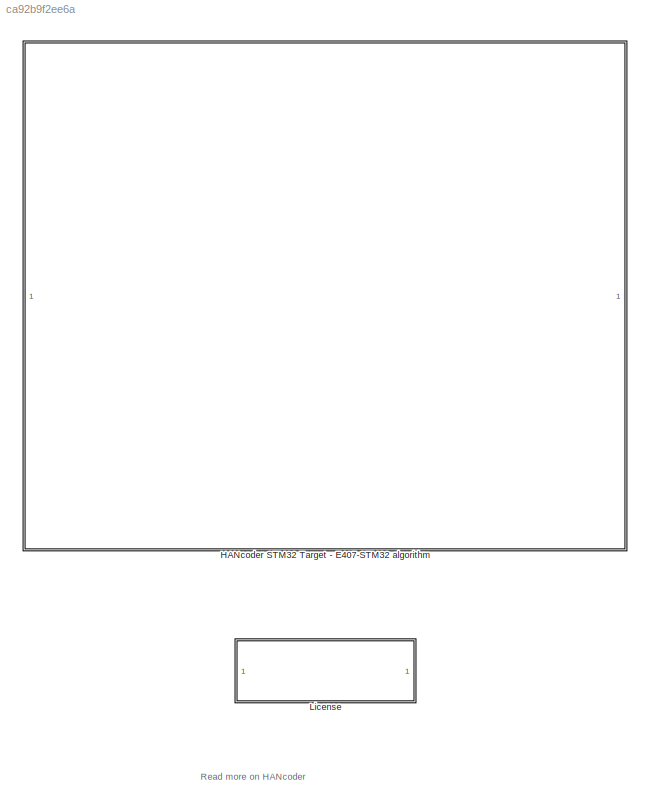
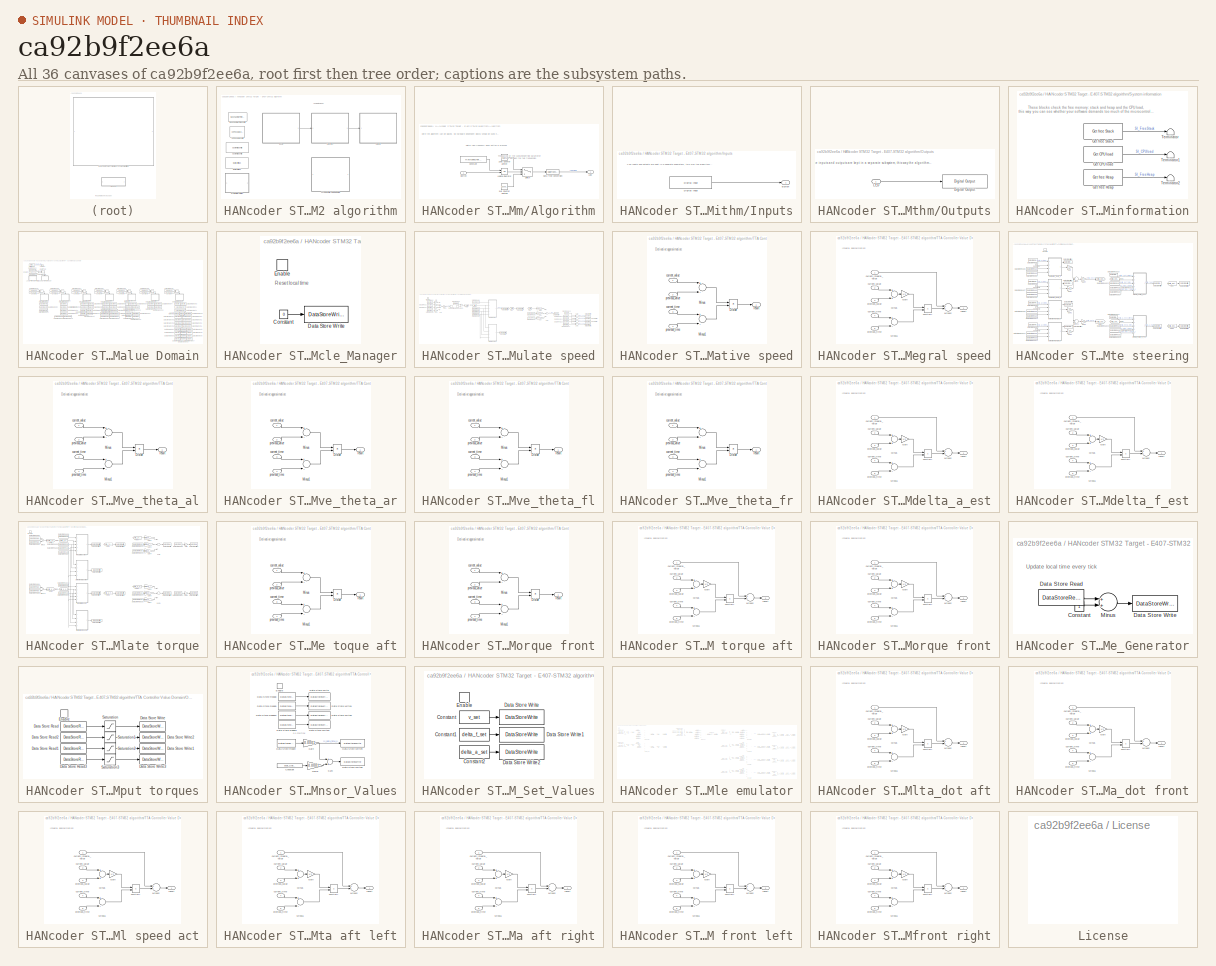
[diagram: thumbnail index - all 36 canvases of the model, root first then tree order]
MODEL slx_ca92b9f2ee6a
KIND model
CONFIG AbsTol = auto
CONFIG EnableMultiTasking = off
CONFIG FixedStep = 0.001
CONFIG MaxStep = auto
CONFIG MinStep = auto
CONFIG PreLoadFcn = librarySetup\neval([bdroot,'_startup']) %Calling [modelName]_startup.m
CONFIG RelTol = 1e-3
CONFIG SampleTimeConstraint = Unconstrained
CONFIG Solver = FixedStepDiscrete
CONFIG SolverName = FixedStepDiscrete
CONFIG StartTime = 0.0
CONFIG StopTime = 1
BLOCK [SubSystem] HANcoder STM32 Target - E407-STM32 algorithm
  CopyFcn = HANcoderChecks('Copy');
  MoveFcn = HANcoderChecks('MoveE407');
  NameChangeFcn = HANcoderChecks('NameChangeE407');
  Ports = []
  RequestExecContextInheritance = off
BLOCK [SubSystem] HANcoder STM32 Target - E407-STM32 algorithm/Algorithm
  Ports = [1, 1]
  RequestExecContextInheritance = off
BLOCK [Reference] HANcoder STM32 Target - E407-STM32 algorithm/Algorithm/10Hz Counter Limiter  REF=simulink/Sources/Counter
Limited
  Ports = [0, 1]
  SourceBlock = simulink/Sources/Counter\nLimited
  SourceProductBaseCode = SL
  SourceProductName = Simulink
  SourceType = Counter Limited
BLOCK [Reference] HANcoder STM32 Target - E407-STM32 algorithm/Algorithm/5Hz Counter Limited  REF=simulink/Sources/Counter
Limited
  Ports = [0, 1]
  SourceBlock = simulink/Sources/Counter\nLimited
  SourceProductBaseCode = SL
  SourceProductName = Simulink
  SourceType = Counter Limited
BLOCK [Inport] HANcoder STM32 Target - E407-STM32 algorithm/Algorithm/Button
  IconDisplay = Port number
BLOCK [Constant] HANcoder STM32 Target - E407-STM32 algorithm/Algorithm/Constant
  OutDataTypeStr = boolean
  Value = HANtuneOverride
BLOCK [DataTypeConversion] HANcoder STM32 Target - E407-STM32 algorithm/Algorithm/Data Type Conversion
  OutDataTypeStr = boolean
  RndMeth = Floor
  SaturateOnIntegerOverflow = off
BLOCK [Outport] HANcoder STM32 Target - E407-STM32 algorithm/Algorithm/LED
  IconDisplay = Port number
BLOCK [Logic] HANcoder STM32 Target - E407-STM32 algorithm/Algorithm/Logical Operator
  AllPortsSameDT = off
  Operator = OR
  OutDataTypeStr = boolean
  Ports = [2, 1]
BLOCK [Switch] HANcoder STM32 Target - E407-STM32 algorithm/Algorithm/Switch
  Criteria = u2 > Threshold
  InputSameDT = off
  SaturateOnIntegerOverflow = off
BLOCK [Reference] HANcoder STM32 Target - E407-STM32 algorithm/Base Sample Time config  REF=HANcoder_STM32_Target/STM32-E407/System Config/Base Sample Time config
  Description = HANcoder Target STM32-E407 blockset version 1.0
  Ports = []
  SourceBlock = HANcoder_STM32_Target/STM32-E407/System Config/Base Sample Time config
  SourceProductName = HANcoder STM32 Target
  SourceType = Base Sample Time config
  Tag = HANcoder_TARGET_STM32_E407
  UserDataPersistent = on
BLOCK [Reference] HANcoder STM32 Target - E407-STM32 algorithm/Build settings  REF=HANcoder_STM32_Target/STM32-E407/System Config/Build settings
  Ports = []
  SourceBlock = HANcoder_STM32_Target/STM32-E407/System Config/Build settings
  SourceProductName = HANcoder STM32 Target
  SourceType = Build Settings
  Tag = HANcoder_TARGET_STM32_E407
  UserDataPersistent = on
BLOCK [Reference] HANcoder STM32 Target - E407-STM32 algorithm/Custom ID config  REF=HANcoder_STM32_Target/STM32-E407/System Config/Custom ID config
  Ports = []
  SourceBlock = HANcoder_STM32_Target/STM32-E407/System Config/Custom ID config
  SourceProductName = HANcoder STM32 Target
  SourceType = Custom ID config
  Tag = HANcoder_TARGET_STM32_E407
  UserDataPersistent = on
BLOCK [SubSystem] HANcoder STM32 Target - E407-STM32 algorithm/Inputs
  Ports = [0, 1]
  RequestExecContextInheritance = off
BLOCK [Outport] HANcoder STM32 Target - E407-STM32 algorithm/Inputs/Button
  IconDisplay = Port number
BLOCK [Reference] HANcoder STM32 Target - E407-STM32 algorithm/Inputs/Digital Input  REF=HANcoder_STM32_Target/STM32-E407/Digital Inputs/Digital Input
  Ports = [0, 1]
  SourceBlock = HANcoder_STM32_Target/STM32-E407/Digital Inputs/Digital Input
  SourceProductName = HANcoder STM32 Target
  SourceType = Digital Input
  Tag = HANcoder_TARGET_STM32_E407
  UserDataPersistent = on
BLOCK [SubSystem] HANcoder STM32 Target - E407-STM32 algorithm/Outputs
  Ports = [1]
  RequestExecContextInheritance = off
BLOCK [Reference] HANcoder STM32 Target - E407-STM32 algorithm/Outputs/Digital Output  REF=HANcoder_STM32_Target/STM32-E407/Digital Outputs/Digital Output
  Ports = [1]
  SourceBlock = HANcoder_STM32_Target/STM32-E407/Digital Outputs/Digital Output
  SourceProductName = HANcoder STM32 Target
  SourceType = Digital Output
  Tag = HANcoder_TARGET_STM32_E407
  UserDataPersistent = on
BLOCK [Inport] HANcoder STM32 Target - E407-STM32 algorithm/Outputs/LED
  IconDisplay = Port number
BLOCK [SubSystem] HANcoder STM32 Target - E407-STM32 algorithm/System information
  Ports = []
  RequestExecContextInheritance = off
BLOCK [Reference] HANcoder STM32 Target - E407-STM32 algorithm/System information/Get CPU load  REF=HANcoder_STM32_Target/STM32-E407/System Management/Get CPU load
  Ports = [0, 1]
  SourceBlock = HANcoder_STM32_Target/STM32-E407/System Management/Get CPU load
  SourceProductName = HANcoder STM32 Target
  SourceType = Get CPU load
  Tag = HANcoder_TARGET_STM32_E407
  UserDataPersistent = on
BLOCK [Reference] HANcoder STM32 Target - E407-STM32 algorithm/System information/Get free Heap  REF=HANcoder_STM32_Target/STM32-E407/System Management/Get free Heap
  Ports = [0, 1]
  SourceBlock = HANcoder_STM32_Target/STM32-E407/System Management/Get free Heap
  SourceProductName = HANcoder STM32 Target
  SourceType = Get free Heap
  Tag = HANcoder_TARGET_STM32_E407
  UserDataPersistent = on
BLOCK [Reference] HANcoder STM32 Target - E407-STM32 algorithm/System information/Get free Stack  REF=HANcoder_STM32_Target/STM32-E407/System Management/Get free Stack
  Ports = [0, 1]
  SourceBlock = HANcoder_STM32_Target/STM32-E407/System Management/Get free Stack
  SourceProductName = HANcoder STM32 Target
  SourceType = Get free Stacl
  Tag = HANcoder_TARGET_STM32_E407
  UserDataPersistent = on
BLOCK [Terminator] HANcoder STM32 Target - E407-STM32 algorithm/System information/Terminator
BLOCK [Terminator] HANcoder STM32 Target - E407-STM32 algorithm/System information/Terminator1
BLOCK [Terminator] HANcoder STM32 Target - E407-STM32 algorithm/System information/Terminator2
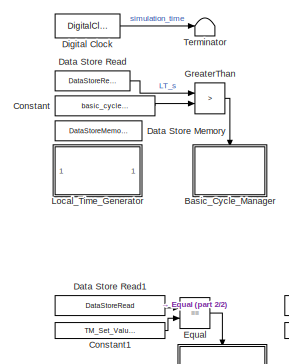
[diagram: HANcoder STM32 Target - E407-STM32 algorithm/TTA Controller Value Domain - part 1/2, top left region]
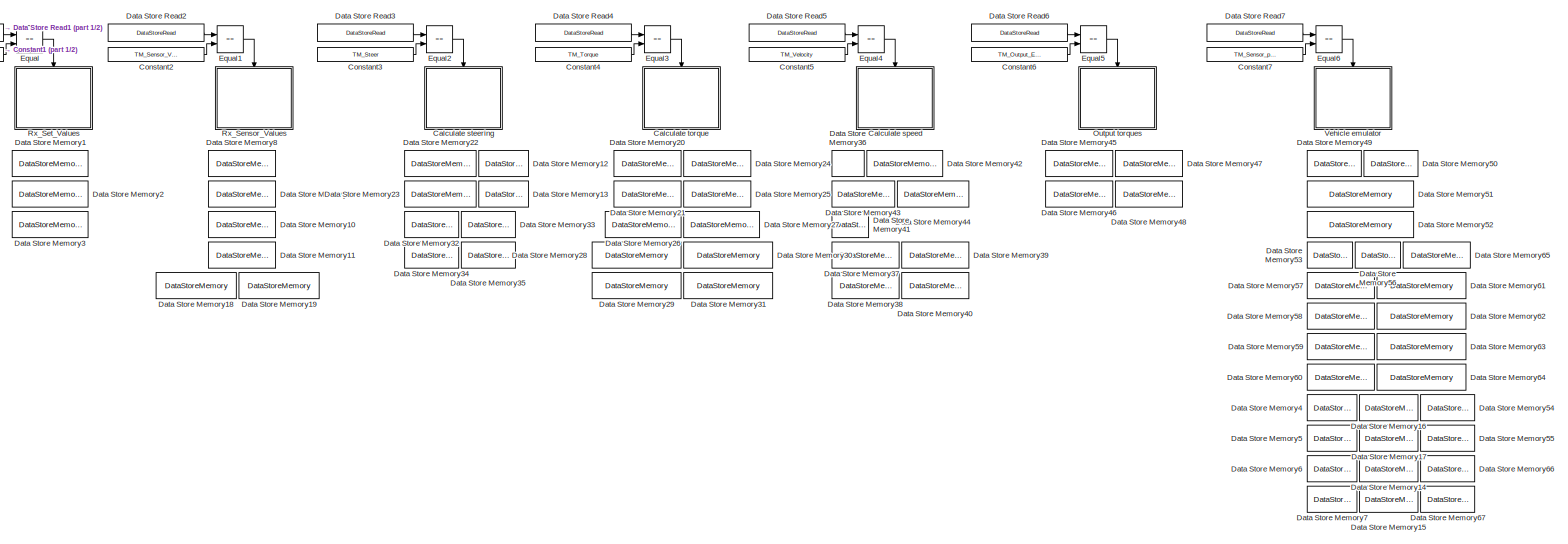
[diagram: HANcoder STM32 Target - E407-STM32 algorithm/TTA Controller Value Domain - part 2/2, full width, middle band]
BLOCK [SubSystem] HANcoder STM32 Target - E407-STM32 algorithm/TTA Controller Value Domain
  Ports = []
  RequestExecContextInheritance = off
BLOCK [SubSystem] HANcoder STM32 Target - E407-STM32 algorithm/TTA Controller Value Domain/Basic_Cycle_Manager
  Ports = [0, 0, 1]
  RequestExecContextInheritance = off
BLOCK [Constant] HANcoder STM32 Target - E407-STM32 algorithm/TTA Controller Value Domain/Basic_Cycle_Manager/Constant
  Value = 0
BLOCK [DataStoreWrite] HANcoder STM32 Target - E407-STM32 algorithm/TTA Controller Value Domain/Basic_Cycle_Manager/Data Store Write
  DataStoreName = Local_Ticks
  Ports = [1]
BLOCK [EnablePort] HANcoder STM32 Target - E407-STM32 algorithm/TTA Controller Value Domain/Basic_Cycle_Manager/Enable
  Ports = []
BLOCK [SubSystem] HANcoder STM32 Target - E407-STM32 algorithm/TTA Controller Value Domain/Calculate speed
  Ports = [0, 0, 1]
  RequestExecContextInheritance = off
  TreatAsAtomicUnit = on
BLOCK [DataStoreRead] HANcoder STM32 Target - E407-STM32 algorithm/TTA Controller Value Domain/Calculate speed/Data Store Read
  DataStoreName = theta_dot_fr
  Ports = [0, 1]
BLOCK [DataStoreRead] HANcoder STM32 Target - E407-STM32 algorithm/TTA Controller Value Domain/Calculate speed/Data Store Read1
  DataStoreName = theta_dot_fl
  Ports = [0, 1]
BLOCK [DataStoreRead] HANcoder STM32 Target - E407-STM32 algorithm/TTA Controller Value Domain/Calculate speed/Data Store Read10
  DataStoreName = speed_integral
  Ports = [0, 1]
BLOCK [DataStoreRead] HANcoder STM32 Target - E407-STM32 algorithm/TTA Controller Value Domain/Calculate speed/Data Store Read11
  DataStoreName = speed_derivative
  Ports = [0, 1]
BLOCK [DataStoreRead] HANcoder STM32 Target - E407-STM32 algorithm/TTA Controller Value Domain/Calculate speed/Data Store Read12
  DataStoreName = torque_fr_out
  Ports = [0, 1]
BLOCK [DataStoreRead] HANcoder STM32 Target - E407-STM32 algorithm/TTA Controller Value Domain/Calculate speed/Data Store Read13
  DataStoreName = v_ctreff
  Ports = [0, 1]
BLOCK [DataStoreRead] HANcoder STM32 Target - E407-STM32 algorithm/TTA Controller Value Domain/Calculate speed/Data Store Read14
  DataStoreName = torque_fl_out
  Ports = [0, 1]
BLOCK [DataStoreRead] HANcoder STM32 Target - E407-STM32 algorithm/TTA Controller Value Domain/Calculate speed/Data Store Read15
  DataStoreName = torque_ar_out
  Ports = [0, 1]
BLOCK [DataStoreRead] HANcoder STM32 Target - E407-STM32 algorithm/TTA Controller Value Domain/Calculate speed/Data Store Read16
  DataStoreName = torque_al_out
  Ports = [0, 1]
BLOCK [DataStoreRead] HANcoder STM32 Target - E407-STM32 algorithm/TTA Controller Value Domain/Calculate speed/Data Store Read2
  DataStoreName = theta_dot_ar
  Ports = [0, 1]
BLOCK [DataStoreRead] HANcoder STM32 Target - E407-STM32 algorithm/TTA Controller Value Domain/Calculate speed/Data Store Read3
  DataStoreName = theta_dot_al
  Ports = [0, 1]
BLOCK [DataStoreRead] HANcoder STM32 Target - E407-STM32 algorithm/TTA Controller Value Domain/Calculate speed/Data Store Read4
  DataStoreName = v_est
  Ports = [0, 1]
BLOCK [DataStoreRead] HANcoder STM32 Target - E407-STM32 algorithm/TTA Controller Value Domain/Calculate speed/Data Store Read5
  DataStoreName = v_set_stored
  Ports = [0, 1]
BLOCK [DataStoreRead] HANcoder STM32 Target - E407-STM32 algorithm/TTA Controller Value Domain/Calculate speed/Data Store Read6
  DataStoreName = speed_error_prev
  Ports = [0, 1]
BLOCK [DataStoreRead] HANcoder STM32 Target - E407-STM32 algorithm/TTA Controller Value Domain/Calculate speed/Data Store Read7
  DataStoreName = rx_data_time
  Ports = [0, 1]
BLOCK [DataStoreRead] HANcoder STM32 Target - E407-STM32 algorithm/TTA Controller Value Domain/Calculate speed/Data Store Read8
  DataStoreName = rx_data_prev_time
  Ports = [0, 1]
BLOCK [DataStoreRead] HANcoder STM32 Target - E407-STM32 algorithm/TTA Controller Value Domain/Calculate speed/Data Store Read9
  DataStoreName = speed_integral
  Ports = [0, 1]
BLOCK [DataStoreWrite] HANcoder STM32 Target - E407-STM32 algorithm/TTA Controller Value Domain/Calculate speed/Data Store Write
  DataStoreName = v_est
  Ports = [1]
  Priority = 1
BLOCK [DataStoreWrite] HANcoder STM32 Target - E407-STM32 algorithm/TTA Controller Value Domain/Calculate speed/Data Store Write1
  DataStoreName = speed_error_prev
  Ports = [1]
  Priority = 30
BLOCK [DataStoreWrite] HANcoder STM32 Target - E407-STM32 algorithm/TTA Controller Value Domain/Calculate speed/Data Store Write2
  DataStoreName = speed_integral
  Ports = [1]
  Priority = 20
BLOCK [DataStoreWrite] HANcoder STM32 Target - E407-STM32 algorithm/TTA Controller Value Domain/Calculate speed/Data Store Write3
  DataStoreName = speed_derivative
  Ports = [1]
  Priority = 21
BLOCK [DataStoreWrite] HANcoder STM32 Target - E407-STM32 algorithm/TTA Controller Value Domain/Calculate speed/Data Store Write4
  DataStoreName = v_ctreff
  Ports = [1]
  Priority = 40
BLOCK [DataStoreWrite] HANcoder STM32 Target - E407-STM32 algorithm/TTA Controller Value Domain/Calculate speed/Data Store Write5
  DataStoreName = torque_fl_set
  Ports = [1]
  Priority = 51
BLOCK [DataStoreWrite] HANcoder STM32 Target - E407-STM32 algorithm/TTA Controller Value Domain/Calculate speed/Data Store Write6
  DataStoreName = torque_fr_set
  Ports = [1]
  Priority = 50
BLOCK [DataStoreWrite] HANcoder STM32 Target - E407-STM32 algorithm/TTA Controller Value Domain/Calculate speed/Data Store Write7
  DataStoreName = torque_ar_set
  Ports = [1]
  Priority = 52
BLOCK [DataStoreWrite] HANcoder STM32 Target - E407-STM32 algorithm/TTA Controller Value Domain/Calculate speed/Data Store Write8
  DataStoreName = torque_al_set
  Ports = [1]
  Priority = 53
BLOCK [SubSystem] HANcoder STM32 Target - E407-STM32 algorithm/TTA Controller Value Domain/Calculate speed/Derivative speed
  Ports = [4, 1]
  RequestExecContextInheritance = off
BLOCK [Product] HANcoder STM32 Target - E407-STM32 algorithm/TTA Controller Value Domain/Calculate speed/Derivative speed/Divide
  InputSameDT = off
  Inputs = */
  OutDataTypeStr = Inherit: Inherit via internal rule
  Ports = [2, 1]
  RndMeth = Floor
  SaturateOnIntegerOverflow = off
BLOCK [Sum] HANcoder STM32 Target - E407-STM32 algorithm/TTA Controller Value Domain/Calculate speed/Derivative speed/Minus
  InputSameDT = off
  Inputs = +-
  OutDataTypeStr = Inherit: Inherit via internal rule
  Ports = [2, 1]
  SaturateOnIntegerOverflow = off
BLOCK [Sum] HANcoder STM32 Target - E407-STM32 algorithm/TTA Controller Value Domain/Calculate speed/Derivative speed/Minus1
  InputSameDT = off
  Inputs = +-
  OutDataTypeStr = Inherit: Inherit via internal rule
  Ports = [2, 1]
  SaturateOnIntegerOverflow = off
BLOCK [Inport] HANcoder STM32 Target - E407-STM32 algorithm/TTA Controller Value Domain/Calculate speed/Derivative speed/current_time
  IconDisplay = Port number
  Port = 3
BLOCK [Inport] HANcoder STM32 Target - E407-STM32 algorithm/TTA Controller Value Domain/Calculate speed/Derivative speed/current_value
  IconDisplay = Port number
BLOCK [Inport] HANcoder STM32 Target - E407-STM32 algorithm/TTA Controller Value Domain/Calculate speed/Derivative speed/previous_time
  IconDisplay = Port number
  Port = 4
BLOCK [Inport] HANcoder STM32 Target - E407-STM32 algorithm/TTA Controller Value Domain/Calculate speed/Derivative speed/previous_value
  IconDisplay = Port number
  Port = 2
BLOCK [Outport] HANcoder STM32 Target - E407-STM32 algorithm/TTA Controller Value Domain/Calculate speed/Derivative speed/result
  IconDisplay = Port number
BLOCK [EnablePort] HANcoder STM32 Target - E407-STM32 algorithm/TTA Controller Value Domain/Calculate speed/Enable
  Ports = []
BLOCK [From] HANcoder STM32 Target - E407-STM32 algorithm/TTA Controller Value Domain/Calculate speed/From
  GotoTag = v_error
BLOCK [From] HANcoder STM32 Target - E407-STM32 algorithm/TTA Controller Value Domain/Calculate speed/From1
  GotoTag = v_error
BLOCK [From] HANcoder STM32 Target - E407-STM32 algorithm/TTA Controller Value Domain/Calculate speed/From2
  GotoTag = v_error
BLOCK [Gain] HANcoder STM32 Target - E407-STM32 algorithm/TTA Controller Value Domain/Calculate speed/Gain
  Gain = R_fr
  OutDataTypeStr = Inherit: Inherit via internal rule
  ParamDataTypeStr = Inherit: Inherit via internal rule
  SaturateOnIntegerOverflow = off
BLOCK [Gain] HANcoder STM32 Target - E407-STM32 algorithm/TTA Controller Value Domain/Calculate speed/Gain1
  Gain = R_fl
  OutDataTypeStr = Inherit: Inherit via internal rule
  ParamDataTypeStr = Inherit: Inherit via internal rule
  SaturateOnIntegerOverflow = off
BLOCK [Gain] HANcoder STM32 Target - E407-STM32 algorithm/TTA Controller Value Domain/Calculate speed/Gain2
  Gain = R_ar
  OutDataTypeStr = Inherit: Inherit via internal rule
  ParamDataTypeStr = Inherit: Inherit via internal rule
  SaturateOnIntegerOverflow = off
BLOCK [Gain] HANcoder STM32 Target - E407-STM32 algorithm/TTA Controller Value Domain/Calculate speed/Gain3
  Gain = R_al
  OutDataTypeStr = Inherit: Inherit via internal rule
  ParamDataTypeStr = Inherit: Inherit via internal rule
  SaturateOnIntegerOverflow = off
BLOCK [Gain] HANcoder STM32 Target - E407-STM32 algorithm/TTA Controller Value Domain/Calculate speed/Gain4
  Gain = 1/4
  OutDataTypeStr = Inherit: Inherit via internal rule
  ParamDataTypeStr = Inherit: Inherit via internal rule
  SaturateOnIntegerOverflow = off
BLOCK [Gain] HANcoder STM32 Target - E407-STM32 algorithm/TTA Controller Value Domain/Calculate speed/Gain5
  Gain = speed_k_p
  OutDataTypeStr = Inherit: Inherit via internal rule
  ParamDataTypeStr = Inherit: Inherit via internal rule
  SaturateOnIntegerOverflow = off
BLOCK [Gain] HANcoder STM32 Target - E407-STM32 algorithm/TTA Controller Value Domain/Calculate speed/Gain6
  Gain = speed_k_i
  OutDataTypeStr = Inherit: Inherit via internal rule
  ParamDataTypeStr = Inherit: Inherit via internal rule
  SaturateOnIntegerOverflow = off
BLOCK [Gain] HANcoder STM32 Target - E407-STM32 algorithm/TTA Controller Value Domain/Calculate speed/Gain7
  Gain = speed_k_d
  OutDataTypeStr = Inherit: Inherit via internal rule
  ParamDataTypeStr = Inherit: Inherit via internal rule
  SaturateOnIntegerOverflow = off
BLOCK [Goto] HANcoder STM32 Target - E407-STM32 algorithm/TTA Controller Value Domain/Calculate speed/Goto
  GotoTag = v_error
BLOCK [SubSystem] HANcoder STM32 Target - E407-STM32 algorithm/TTA Controller Value Domain/Calculate speed/Integral speed
  Ports = [5, 1]
  RequestExecContextInheritance = off
BLOCK [Gain] HANcoder STM32 Target - E407-STM32 algorithm/TTA Controller Value Domain/Calculate speed/Integral speed/Gain
  Gain = 1/2
  OutDataTypeStr = Inherit: Inherit via internal rule
  ParamDataTypeStr = Inherit: Inherit via internal rule
  SaturateOnIntegerOverflow = off
BLOCK [Sum] HANcoder STM32 Target - E407-STM32 algorithm/TTA Controller Value Domain/Calculate speed/Integral speed/Minus
  InputSameDT = off
  OutDataTypeStr = Inherit: Inherit via internal rule
  Ports = [2, 1]
  SaturateOnIntegerOverflow = off
BLOCK [Sum] HANcoder STM32 Target - E407-STM32 algorithm/TTA Controller Value Domain/Calculate speed/Integral speed/Minus1
  InputSameDT = off
  Inputs = +-
  OutDataTypeStr = Inherit: Inherit via internal rule
  Ports = [2, 1]
  SaturateOnIntegerOverflow = off
BLOCK [Sum] HANcoder STM32 Target - E407-STM32 algorithm/TTA Controller Value Domain/Calculate speed/Integral speed/Minus2
  InputSameDT = off
  OutDataTypeStr = Inherit: Inherit via internal rule
  Ports = [2, 1]
  SaturateOnIntegerOverflow = off
BLOCK [Product] HANcoder STM32 Target - E407-STM32 algorithm/TTA Controller Value Domain/Calculate speed/Integral speed/Multiply
  InputSameDT = off
  OutDataTypeStr = Inherit: Inherit via internal rule
  Ports = [2, 1]
  RndMeth = Floor
  SaturateOnIntegerOverflow = off
BLOCK [Inport] HANcoder STM32 Target - E407-STM32 algorithm/TTA Controller Value Domain/Calculate speed/Integral speed/current_integral_value
  IconDisplay = Port number
BLOCK [Inport] HANcoder STM32 Target - E407-STM32 algorithm/TTA Controller Value Domain/Calculate speed/Integral speed/current_time
  IconDisplay = Port number
  Port = 4
BLOCK [Inport] HANcoder STM32 Target - E407-STM32 algorithm/TTA Controller Value Domain/Calculate speed/Integral speed/current_value
  IconDisplay = Port number
  Port = 2
BLOCK [Inport] HANcoder STM32 Target - E407-STM32 algorithm/TTA Controller Value Domain/Calculate speed/Integral speed/previous_time
  IconDisplay = Port number
  Port = 5
BLOCK [Inport] HANcoder STM32 Target - E407-STM32 algorithm/TTA Controller Value Domain/Calculate speed/Integral speed/previous_value
  IconDisplay = Port number
  Port = 3
BLOCK [Outport] HANcoder STM32 Target - E407-STM32 algorithm/TTA Controller Value Domain/Calculate speed/Integral speed/result
  IconDisplay = Port number
BLOCK [Sum] HANcoder STM32 Target - E407-STM32 algorithm/TTA Controller Value Domain/Calculate speed/Sum
  InputSameDT = off
  Inputs = ++++
  OutDataTypeStr = Inherit: Inherit via internal rule
  Ports = [4, 1]
  SaturateOnIntegerOverflow = off
BLOCK [Sum] HANcoder STM32 Target - E407-STM32 algorithm/TTA Controller Value Domain/Calculate speed/Sum1
  InputSameDT = off
  Inputs = +-
  OutDataTypeStr = Inherit: Inherit via internal rule
  Ports = [2, 1]
  Priority = 10
  SaturateOnIntegerOverflow = off
BLOCK [Sum] HANcoder STM32 Target - E407-STM32 algorithm/TTA Controller Value Domain/Calculate speed/Sum2
  InputSameDT = off
  Inputs = +++
  OutDataTypeStr = Inherit: Inherit via internal rule
  Ports = [3, 1]
  SaturateOnIntegerOverflow = off
BLOCK [Sum] HANcoder STM32 Target - E407-STM32 algorithm/TTA Controller Value Domain/Calculate speed/Sum3
  InputSameDT = off
  OutDataTypeStr = Inherit: Inherit via internal rule
  Ports = [2, 1]
  SaturateOnIntegerOverflow = off
BLOCK [Sum] HANcoder STM32 Target - E407-STM32 algorithm/TTA Controller Value Domain/Calculate speed/Sum4
  InputSameDT = off
  OutDataTypeStr = Inherit: Inherit via internal rule
  Ports = [2, 1]
  SaturateOnIntegerOverflow = off
BLOCK [Sum] HANcoder STM32 Target - E407-STM32 algorithm/TTA Controller Value Domain/Calculate speed/Sum5
  InputSameDT = off
  OutDataTypeStr = Inherit: Inherit via internal rule
  Ports = [2, 1]
  SaturateOnIntegerOverflow = off
BLOCK [Sum] HANcoder STM32 Target - E407-STM32 algorithm/TTA Controller Value Domain/Calculate speed/Sum6
  InputSameDT = off
  OutDataTypeStr = Inherit: Inherit via internal rule
  Ports = [2, 1]
  SaturateOnIntegerOverflow = off
BLOCK [SubSystem] HANcoder STM32 Target - E407-STM32 algorithm/TTA Controller Value Domain/Calculate steering
  Ports = [0, 0, 1]
  RequestExecContextInheritance = off
  TreatAsAtomicUnit = on
BLOCK [Constant] HANcoder STM32 Target - E407-STM32 algorithm/TTA Controller Value Domain/Calculate steering/Constant
  Value = 0
BLOCK [Constant] HANcoder STM32 Target - E407-STM32 algorithm/TTA Controller Value Domain/Calculate steering/Constant1
  Value = 0
BLOCK [Constant] HANcoder STM32 Target - E407-STM32 algorithm/TTA Controller Value Domain/Calculate steering/Constant2
  Value = 0
BLOCK [Constant] HANcoder STM32 Target - E407-STM32 algorithm/TTA Controller Value Domain/Calculate steering/Constant3
  Value = 0
BLOCK [DataStoreRead] HANcoder STM32 Target - E407-STM32 algorithm/TTA Controller Value Domain/Calculate steering/Data Store Read
  DataStoreName = theta_fl_stored
  Ports = [0, 1]
  Priority = 30
BLOCK [DataStoreRead] HANcoder STM32 Target - E407-STM32 algorithm/TTA Controller Value Domain/Calculate steering/Data Store Read1
  DataStoreName = theta_fr_stored
  Ports = [0, 1]
  Priority = 1
BLOCK [DataStoreRead] HANcoder STM32 Target - E407-STM32 algorithm/TTA Controller Value Domain/Calculate steering/Data Store Read10
  DataStoreName = rx_data_prev_time
  Ports = [0, 1]
  Priority = 63
BLOCK [DataStoreRead] HANcoder STM32 Target - E407-STM32 algorithm/TTA Controller Value Domain/Calculate steering/Data Store Read11
  DataStoreName = rx_data_prev_time
  Ports = [0, 1]
  Priority = 93
BLOCK [DataStoreRead] HANcoder STM32 Target - E407-STM32 algorithm/TTA Controller Value Domain/Calculate steering/Data Store Read12
  DataStoreName = rx_data_time
  Ports = [0, 1]
  Priority = 92
BLOCK [DataStoreRead] HANcoder STM32 Target - E407-STM32 algorithm/TTA Controller Value Domain/Calculate steering/Data Store Read16
  DataStoreName = rx_data_time
  Ports = [0, 1]
  Priority = 123
BLOCK [DataStoreRead] HANcoder STM32 Target - E407-STM32 algorithm/TTA Controller Value Domain/Calculate steering/Data Store Read17
  DataStoreName = rx_data_prev_time
  Ports = [0, 1]
  Priority = 124
BLOCK [DataStoreRead] HANcoder STM32 Target - E407-STM32 algorithm/TTA Controller Value Domain/Calculate steering/Data Store Read18
  DataStoreName = rx_data_time
  Ports = [0, 1]
  Priority = 153
BLOCK [DataStoreRead] HANcoder STM32 Target - E407-STM32 algorithm/TTA Controller Value Domain/Calculate steering/Data Store Read19
  DataStoreName = rx_data_prev_time
  Ports = [0, 1]
  Priority = 154
BLOCK [DataStoreRead] HANcoder STM32 Target - E407-STM32 algorithm/TTA Controller Value Domain/Calculate steering/Data Store Read2
  DataStoreName = theta_ar_stored
  Ports = [0, 1]
  Priority = 60
BLOCK [DataStoreRead] HANcoder STM32 Target - E407-STM32 algorithm/TTA Controller Value Domain/Calculate steering/Data Store Read20
  DataStoreName = delta_f_est
  Ports = [0, 1]
  Priority = 120
BLOCK [DataStoreRead] HANcoder STM32 Target - E407-STM32 algorithm/TTA Controller Value Domain/Calculate steering/Data Store Read21
  DataStoreName = delta_a_est
  Ports = [0, 1]
  Priority = 150
BLOCK [DataStoreRead] HANcoder STM32 Target - E407-STM32 algorithm/TTA Controller Value Domain/Calculate steering/Data Store Read22
  DataStoreName = delta_dot_f_prev
  Ports = [0, 1]
  Priority = 122
BLOCK [DataStoreRead] HANcoder STM32 Target - E407-STM32 algorithm/TTA Controller Value Domain/Calculate steering/Data Store Read23
  DataStoreName = delta_dot_a_prev
  Ports = [0, 1]
  Priority = 152
BLOCK [DataStoreRead] HANcoder STM32 Target - E407-STM32 algorithm/TTA Controller Value Domain/Calculate steering/Data Store Read3
  DataStoreName = theta_al_stored
  Ports = [0, 1]
  Priority = 90
BLOCK [DataStoreRead] HANcoder STM32 Target - E407-STM32 algorithm/TTA Controller Value Domain/Calculate steering/Data Store Read5
  DataStoreName = rx_data_time
  Ports = [0, 1]
  Priority = 3
BLOCK [DataStoreRead] HANcoder STM32 Target - E407-STM32 algorithm/TTA Controller Value Domain/Calculate steering/Data Store Read6
  DataStoreName = rx_data_prev_time
  Ports = [0, 1]
  Priority = 4
BLOCK [DataStoreRead] HANcoder STM32 Target - E407-STM32 algorithm/TTA Controller Value Domain/Calculate steering/Data Store Read7
  DataStoreName = rx_data_time
  Ports = [0, 1]
  Priority = 32
BLOCK [DataStoreRead] HANcoder STM32 Target - E407-STM32 algorithm/TTA Controller Value Domain/Calculate steering/Data Store Read8
  DataStoreName = rx_data_prev_time
  Ports = [0, 1]
  Priority = 33
BLOCK [DataStoreRead] HANcoder STM32 Target - E407-STM32 algorithm/TTA Controller Value Domain/Calculate steering/Data Store Read9
  DataStoreName = rx_data_time
  Ports = [0, 1]
  Priority = 62
BLOCK [DataStoreWrite] HANcoder STM32 Target - E407-STM32 algorithm/TTA Controller Value Domain/Calculate steering/Data Store Write
  DataStoreName = delta_f_est
  Ports = [1]
  Priority = 140
BLOCK [DataStoreWrite] HANcoder STM32 Target - E407-STM32 algorithm/TTA Controller Value Domain/Calculate steering/Data Store Write1
  DataStoreName = delta_a_est
  Ports = [1]
  Priority = 160
BLOCK [DataStoreWrite] HANcoder STM32 Target - E407-STM32 algorithm/TTA Controller Value Domain/Calculate steering/Data Store Write2
  DataStoreName = delta_dot_f_prev
  Ports = [1]
  Priority = 142
BLOCK [DataStoreWrite] HANcoder STM32 Target - E407-STM32 algorithm/TTA Controller Value Domain/Calculate steering/Data Store Write3
  DataStoreName = delta_dot_a_prev
  Ports = [1]
  Priority = 162
BLOCK [DataStoreWrite] HANcoder STM32 Target - E407-STM32 algorithm/TTA Controller Value Domain/Calculate steering/Data Store Write4
  DataStoreName = theta_dot_fr
  Ports = [1]
  Priority = 20
BLOCK [DataStoreWrite] HANcoder STM32 Target - E407-STM32 algorithm/TTA Controller Value Domain/Calculate steering/Data Store Write5
  DataStoreName = theta_dot_fl
  Ports = [1]
  Priority = 50
BLOCK [DataStoreWrite] HANcoder STM32 Target - E407-STM32 algorithm/TTA Controller Value Domain/Calculate steering/Data Store Write6
  DataStoreName = theta_dot_ar
  Ports = [1]
  Priority = 80
BLOCK [DataStoreWrite] HANcoder STM32 Target - E407-STM32 algorithm/TTA Controller Value Domain/Calculate steering/Data Store Write7
  DataStoreName = theta_dot_al
  Ports = [1]
  Priority = 110
BLOCK [SubSystem] HANcoder STM32 Target - E407-STM32 algorithm/TTA Controller Value Domain/Calculate steering/Derivative_theta_al
  Ports = [4, 1]
  RequestExecContextInheritance = off
BLOCK [Product] HANcoder STM32 Target - E407-STM32 algorithm/TTA Controller Value Domain/Calculate steering/Derivative_theta_al/Divide
  InputSameDT = off
  Inputs = */
  OutDataTypeStr = Inherit: Inherit via internal rule
  Ports = [2, 1]
  Priority = 102
  RndMeth = Floor
  SaturateOnIntegerOverflow = off
BLOCK [Sum] HANcoder STM32 Target - E407-STM32 algorithm/TTA Controller Value Domain/Calculate steering/Derivative_theta_al/Minus
  InputSameDT = off
  Inputs = +-
  OutDataTypeStr = Inherit: Inherit via internal rule
  Ports = [2, 1]
  Priority = 100
  SaturateOnIntegerOverflow = off
BLOCK [Sum] HANcoder STM32 Target - E407-STM32 algorithm/TTA Controller Value Domain/Calculate steering/Derivative_theta_al/Minus1
  InputSameDT = off
  Inputs = +-
  OutDataTypeStr = Inherit: Inherit via internal rule
  Ports = [2, 1]
  Priority = 101
  SaturateOnIntegerOverflow = off
BLOCK [Inport] HANcoder STM32 Target - E407-STM32 algorithm/TTA Controller Value Domain/Calculate steering/Derivative_theta_al/current_time
  IconDisplay = Port number
  Port = 3
BLOCK [Inport] HANcoder STM32 Target - E407-STM32 algorithm/TTA Controller Value Domain/Calculate steering/Derivative_theta_al/current_value
  IconDisplay = Port number
BLOCK [Inport] HANcoder STM32 Target - E407-STM32 algorithm/TTA Controller Value Domain/Calculate steering/Derivative_theta_al/previous_time
  IconDisplay = Port number
  Port = 4
BLOCK [Inport] HANcoder STM32 Target - E407-STM32 algorithm/TTA Controller Value Domain/Calculate steering/Derivative_theta_al/previous_value
  IconDisplay = Port number
  Port = 2
BLOCK [Outport] HANcoder STM32 Target - E407-STM32 algorithm/TTA Controller Value Domain/Calculate steering/Derivative_theta_al/result
  IconDisplay = Port number
BLOCK [SubSystem] HANcoder STM32 Target - E407-STM32 algorithm/TTA Controller Value Domain/Calculate steering/Derivative_theta_ar
  Ports = [4, 1]
  RequestExecContextInheritance = off
BLOCK [Product] HANcoder STM32 Target - E407-STM32 algorithm/TTA Controller Value Domain/Calculate steering/Derivative_theta_ar/Divide
  InputSameDT = off
  Inputs = */
  OutDataTypeStr = Inherit: Inherit via internal rule
  Ports = [2, 1]
  Priority = 72
  RndMeth = Floor
  SaturateOnIntegerOverflow = off
BLOCK [Sum] HANcoder STM32 Target - E407-STM32 algorithm/TTA Controller Value Domain/Calculate steering/Derivative_theta_ar/Minus
  InputSameDT = off
  Inputs = +-
  OutDataTypeStr = Inherit: Inherit via internal rule
  Ports = [2, 1]
  Priority = 70
  SaturateOnIntegerOverflow = off
BLOCK [Sum] HANcoder STM32 Target - E407-STM32 algorithm/TTA Controller Value Domain/Calculate steering/Derivative_theta_ar/Minus1
  InputSameDT = off
  Inputs = +-
  OutDataTypeStr = Inherit: Inherit via internal rule
  Ports = [2, 1]
  Priority = 71
  SaturateOnIntegerOverflow = off
BLOCK [Inport] HANcoder STM32 Target - E407-STM32 algorithm/TTA Controller Value Domain/Calculate steering/Derivative_theta_ar/current_time
  IconDisplay = Port number
  Port = 3
BLOCK [Inport] HANcoder STM32 Target - E407-STM32 algorithm/TTA Controller Value Domain/Calculate steering/Derivative_theta_ar/current_value
  IconDisplay = Port number
BLOCK [Inport] HANcoder STM32 Target - E407-STM32 algorithm/TTA Controller Value Domain/Calculate steering/Derivative_theta_ar/previous_time
  IconDisplay = Port number
  Port = 4
BLOCK [Inport] HANcoder STM32 Target - E407-STM32 algorithm/TTA Controller Value Domain/Calculate steering/Derivative_theta_ar/previous_value
  IconDisplay = Port number
  Port = 2
BLOCK [Outport] HANcoder STM32 Target - E407-STM32 algorithm/TTA Controller Value Domain/Calculate steering/Derivative_theta_ar/result
  IconDisplay = Port number
BLOCK [SubSystem] HANcoder STM32 Target - E407-STM32 algorithm/TTA Controller Value Domain/Calculate steering/Derivative_theta_fl
  Ports = [4, 1]
  RequestExecContextInheritance = off
BLOCK [Product] HANcoder STM32 Target - E407-STM32 algorithm/TTA Controller Value Domain/Calculate steering/Derivative_theta_fl/Divide
  InputSameDT = off
  Inputs = */
  OutDataTypeStr = Inherit: Inherit via internal rule
  Ports = [2, 1]
  Priority = 42
  RndMeth = Floor
  SaturateOnIntegerOverflow = off
BLOCK [Sum] HANcoder STM32 Target - E407-STM32 algorithm/TTA Controller Value Domain/Calculate steering/Derivative_theta_fl/Minus
  InputSameDT = off
  Inputs = +-
  OutDataTypeStr = Inherit: Inherit via internal rule
  Ports = [2, 1]
  Priority = 40
  SaturateOnIntegerOverflow = off
BLOCK [Sum] HANcoder STM32 Target - E407-STM32 algorithm/TTA Controller Value Domain/Calculate steering/Derivative_theta_fl/Minus1
  InputSameDT = off
  Inputs = +-
  OutDataTypeStr = Inherit: Inherit via internal rule
  Ports = [2, 1]
  Priority = 41
  SaturateOnIntegerOverflow = off
BLOCK [Inport] HANcoder STM32 Target - E407-STM32 algorithm/TTA Controller Value Domain/Calculate steering/Derivative_theta_fl/current_time
  IconDisplay = Port number
  Port = 3
BLOCK [Inport] HANcoder STM32 Target - E407-STM32 algorithm/TTA Controller Value Domain/Calculate steering/Derivative_theta_fl/current_value
  IconDisplay = Port number
BLOCK [Inport] HANcoder STM32 Target - E407-STM32 algorithm/TTA Controller Value Domain/Calculate steering/Derivative_theta_fl/previous_time
  IconDisplay = Port number
  Port = 4
BLOCK [Inport] HANcoder STM32 Target - E407-STM32 algorithm/TTA Controller Value Domain/Calculate steering/Derivative_theta_fl/previous_value
  IconDisplay = Port number
  Port = 2
BLOCK [Outport] HANcoder STM32 Target - E407-STM32 algorithm/TTA Controller Value Domain/Calculate steering/Derivative_theta_fl/result
  IconDisplay = Port number
BLOCK [SubSystem] HANcoder STM32 Target - E407-STM32 algorithm/TTA Controller Value Domain/Calculate steering/Derivative_theta_fr
  Ports = [4, 1]
  RequestExecContextInheritance = off
BLOCK [Product] HANcoder STM32 Target - E407-STM32 algorithm/TTA Controller Value Domain/Calculate steering/Derivative_theta_fr/Divide
  InputSameDT = off
  Inputs = */
  OutDataTypeStr = Inherit: Inherit via internal rule
  Ports = [2, 1]
  Priority = 12
  RndMeth = Floor
  SaturateOnIntegerOverflow = off
BLOCK [Sum] HANcoder STM32 Target - E407-STM32 algorithm/TTA Controller Value Domain/Calculate steering/Derivative_theta_fr/Minus
  InputSameDT = off
  Inputs = +-
  OutDataTypeStr = Inherit: Inherit via internal rule
  Ports = [2, 1]
  Priority = 10
  SaturateOnIntegerOverflow = off
BLOCK [Sum] HANcoder STM32 Target - E407-STM32 algorithm/TTA Controller Value Domain/Calculate steering/Derivative_theta_fr/Minus1
  InputSameDT = off
  Inputs = +-
  OutDataTypeStr = Inherit: Inherit via internal rule
  Ports = [2, 1]
  Priority = 11
  SaturateOnIntegerOverflow = off
BLOCK [Inport] HANcoder STM32 Target - E407-STM32 algorithm/TTA Controller Value Domain/Calculate steering/Derivative_theta_fr/current_time
  IconDisplay = Port number
  Port = 3
BLOCK [Inport] HANcoder STM32 Target - E407-STM32 algorithm/TTA Controller Value Domain/Calculate steering/Derivative_theta_fr/current_value
  IconDisplay = Port number
BLOCK [Inport] HANcoder STM32 Target - E407-STM32 algorithm/TTA Controller Value Domain/Calculate steering/Derivative_theta_fr/previous_time
  IconDisplay = Port number
  Port = 4
BLOCK [Inport] HANcoder STM32 Target - E407-STM32 algorithm/TTA Controller Value Domain/Calculate steering/Derivative_theta_fr/previous_value
  IconDisplay = Port number
  Port = 2
BLOCK [Outport] HANcoder STM32 Target - E407-STM32 algorithm/TTA Controller Value Domain/Calculate steering/Derivative_theta_fr/result
  IconDisplay = Port number
BLOCK [EnablePort] HANcoder STM32 Target - E407-STM32 algorithm/TTA Controller Value Domain/Calculate steering/Enable
  Ports = []
BLOCK [From] HANcoder STM32 Target - E407-STM32 algorithm/TTA Controller Value Domain/Calculate steering/From
  GotoTag = delta_dot_f
BLOCK [From] HANcoder STM32 Target - E407-STM32 algorithm/TTA Controller Value Domain/Calculate steering/From1
  GotoTag = delta_dot_f
BLOCK [From] HANcoder STM32 Target - E407-STM32 algorithm/TTA Controller Value Domain/Calculate steering/From2
  GotoTag = delta_dot_a
BLOCK [From] HANcoder STM32 Target - E407-STM32 algorithm/TTA Controller Value Domain/Calculate steering/From3
  GotoTag = delta_dot_a
BLOCK [Gain] HANcoder STM32 Target - E407-STM32 algorithm/TTA Controller Value Domain/Calculate steering/Gain
  Gain = R_fr
  OutDataTypeStr = Inherit: Inherit via internal rule
  ParamDataTypeStr = Inherit: Inherit via internal rule
  Priority = 21
  SaturateOnIntegerOverflow = off
BLOCK [Gain] HANcoder STM32 Target - E407-STM32 algorithm/TTA Controller Value Domain/Calculate steering/Gain1
  Gain = R_fl
  OutDataTypeStr = Inherit: Inherit via internal rule
  ParamDataTypeStr = Inherit: Inherit via internal rule
  Priority = 51
  SaturateOnIntegerOverflow = off
BLOCK [Gain] HANcoder STM32 Target - E407-STM32 algorithm/TTA Controller Value Domain/Calculate steering/Gain2
  Gain = R_ar
  OutDataTypeStr = Inherit: Inherit via internal rule
  ParamDataTypeStr = Inherit: Inherit via internal rule
  Priority = 81
  SaturateOnIntegerOverflow = off
BLOCK [Gain] HANcoder STM32 Target - E407-STM32 algorithm/TTA Controller Value Domain/Calculate steering/Gain3
  Gain = R_al
  OutDataTypeStr = Inherit: Inherit via internal rule
  ParamDataTypeStr = Inherit: Inherit via internal rule
  Priority = 111
  SaturateOnIntegerOverflow = off
BLOCK [Gain] HANcoder STM32 Target - E407-STM32 algorithm/TTA Controller Value Domain/Calculate steering/Gain4
  Gain = 1/Tl_f
  OutDataTypeStr = Inherit: Inherit via internal rule
  ParamDataTypeStr = Inherit: Inherit via internal rule
  Priority = 53
  SaturateOnIntegerOverflow = off
BLOCK [Gain] HANcoder STM32 Target - E407-STM32 algorithm/TTA Controller Value Domain/Calculate steering/Gain5
  Gain = 1/Tl_a
  OutDataTypeStr = Inherit: Inherit via internal rule
  ParamDataTypeStr = Inherit: Inherit via internal rule
  Priority = 113
  SaturateOnIntegerOverflow = off
BLOCK [Goto] HANcoder STM32 Target - E407-STM32 algorithm/TTA Controller Value Domain/Calculate steering/Goto
  GotoTag = delta_dot_f
BLOCK [Goto] HANcoder STM32 Target - E407-STM32 algorithm/TTA Controller Value Domain/Calculate steering/Goto1
  GotoTag = delta_dot_a
BLOCK [SubSystem] HANcoder STM32 Target - E407-STM32 algorithm/TTA Controller Value Domain/Calculate steering/Integral_delta_a_est
  Ports = [5, 1]
  RequestExecContextInheritance = off
BLOCK [Gain] HANcoder STM32 Target - E407-STM32 algorithm/TTA Controller Value Domain/Calculate steering/Integral_delta_a_est/Gain
  Gain = 1/2
  OutDataTypeStr = Inherit: Inherit via internal rule
  ParamDataTypeStr = Inherit: Inherit via internal rule
  Priority = 156
  SaturateOnIntegerOverflow = off
BLOCK [Sum] HANcoder STM32 Target - E407-STM32 algorithm/TTA Controller Value Domain/Calculate steering/Integral_delta_a_est/Minus
  InputSameDT = off
  OutDataTypeStr = Inherit: Inherit via internal rule
  Ports = [2, 1]
  Priority = 155
  SaturateOnIntegerOverflow = off
BLOCK [Sum] HANcoder STM32 Target - E407-STM32 algorithm/TTA Controller Value Domain/Calculate steering/Integral_delta_a_est/Minus1
  InputSameDT = off
  Inputs = +-
  OutDataTypeStr = Inherit: Inherit via internal rule
  Ports = [2, 1]
  Priority = 157
  SaturateOnIntegerOverflow = off
BLOCK [Sum] HANcoder STM32 Target - E407-STM32 algorithm/TTA Controller Value Domain/Calculate steering/Integral_delta_a_est/Minus2
  InputSameDT = off
  OutDataTypeStr = Inherit: Inherit via internal rule
  Ports = [2, 1]
  Priority = 159
  SaturateOnIntegerOverflow = off
BLOCK [Product] HANcoder STM32 Target - E407-STM32 algorithm/TTA Controller Value Domain/Calculate steering/Integral_delta_a_est/Multiply
  InputSameDT = off
  OutDataTypeStr = Inherit: Inherit via internal rule
  Ports = [2, 1]
  Priority = 158
  RndMeth = Floor
  SaturateOnIntegerOverflow = off
BLOCK [Inport] HANcoder STM32 Target - E407-STM32 algorithm/TTA Controller Value Domain/Calculate steering/Integral_delta_a_est/current_integral_value
  IconDisplay = Port number
BLOCK [Inport] HANcoder STM32 Target - E407-STM32 algorithm/TTA Controller Value Domain/Calculate steering/Integral_delta_a_est/current_time
  IconDisplay = Port number
  Port = 4
BLOCK [Inport] HANcoder STM32 Target - E407-STM32 algorithm/TTA Controller Value Domain/Calculate steering/Integral_delta_a_est/current_value
  IconDisplay = Port number
  Port = 2
BLOCK [Inport] HANcoder STM32 Target - E407-STM32 algorithm/TTA Controller Value Domain/Calculate steering/Integral_delta_a_est/previous_time
  IconDisplay = Port number
  Port = 5
BLOCK [Inport] HANcoder STM32 Target - E407-STM32 algorithm/TTA Controller Value Domain/Calculate steering/Integral_delta_a_est/previous_value
  IconDisplay = Port number
  Port = 3
BLOCK [Outport] HANcoder STM32 Target - E407-STM32 algorithm/TTA Controller Value Domain/Calculate steering/Integral_delta_a_est/result
  IconDisplay = Port number
BLOCK [SubSystem] HANcoder STM32 Target - E407-STM32 algorithm/TTA Controller Value Domain/Calculate steering/Integral_delta_f_est
  Ports = [5, 1]
  RequestExecContextInheritance = off
BLOCK [Gain] HANcoder STM32 Target - E407-STM32 algorithm/TTA Controller Value Domain/Calculate steering/Integral_delta_f_est/Gain
  Gain = 1/2
  OutDataTypeStr = Inherit: Inherit via internal rule
  ParamDataTypeStr = Inherit: Inherit via internal rule
  Priority = 132
  SaturateOnIntegerOverflow = off
BLOCK [Sum] HANcoder STM32 Target - E407-STM32 algorithm/TTA Controller Value Domain/Calculate steering/Integral_delta_f_est/Minus
  InputSameDT = off
  OutDataTypeStr = Inherit: Inherit via internal rule
  Ports = [2, 1]
  Priority = 130
  SaturateOnIntegerOverflow = off
BLOCK [Sum] HANcoder STM32 Target - E407-STM32 algorithm/TTA Controller Value Domain/Calculate steering/Integral_delta_f_est/Minus1
  InputSameDT = off
  Inputs = +-
  OutDataTypeStr = Inherit: Inherit via internal rule
  Ports = [2, 1]
  Priority = 131
  SaturateOnIntegerOverflow = off
BLOCK [Sum] HANcoder STM32 Target - E407-STM32 algorithm/TTA Controller Value Domain/Calculate steering/Integral_delta_f_est/Minus2
  InputSameDT = off
  OutDataTypeStr = Inherit: Inherit via internal rule
  Ports = [2, 1]
  Priority = 134
  SaturateOnIntegerOverflow = off
BLOCK [Product] HANcoder STM32 Target - E407-STM32 algorithm/TTA Controller Value Domain/Calculate steering/Integral_delta_f_est/Multiply
  InputSameDT = off
  OutDataTypeStr = Inherit: Inherit via internal rule
  Ports = [2, 1]
  Priority = 133
  RndMeth = Floor
  SaturateOnIntegerOverflow = off
BLOCK [Inport] HANcoder STM32 Target - E407-STM32 algorithm/TTA Controller Value Domain/Calculate steering/Integral_delta_f_est/current_integral_value
  IconDisplay = Port number
BLOCK [Inport] HANcoder STM32 Target - E407-STM32 algorithm/TTA Controller Value Domain/Calculate steering/Integral_delta_f_est/current_time
  IconDisplay = Port number
  Port = 4
BLOCK [Inport] HANcoder STM32 Target - E407-STM32 algorithm/TTA Controller Value Domain/Calculate steering/Integral_delta_f_est/current_value
  IconDisplay = Port number
  Port = 2
BLOCK [Inport] HANcoder STM32 Target - E407-STM32 algorithm/TTA Controller Value Domain/Calculate steering/Integral_delta_f_est/previous_time
  IconDisplay = Port number
  Port = 5
BLOCK [Inport] HANcoder STM32 Target - E407-STM32 algorithm/TTA Controller Value Domain/Calculate steering/Integral_delta_f_est/previous_value
  IconDisplay = Port number
  Port = 3
BLOCK [Outport] HANcoder STM32 Target - E407-STM32 algorithm/TTA Controller Value Domain/Calculate steering/Integral_delta_f_est/result
  IconDisplay = Port number
BLOCK [Sum] HANcoder STM32 Target - E407-STM32 algorithm/TTA Controller Value Domain/Calculate steering/Minus
  InputSameDT = off
  Inputs = +-
  OutDataTypeStr = Inherit: Inherit via internal rule
  Ports = [2, 1]
  Priority = 52
  SaturateOnIntegerOverflow = off
BLOCK [Sum] HANcoder STM32 Target - E407-STM32 algorithm/TTA Controller Value Domain/Calculate steering/Minus1
  InputSameDT = off
  Inputs = +-
  OutDataTypeStr = Inherit: Inherit via internal rule
  Ports = [2, 1]
  Priority = 112
  SaturateOnIntegerOverflow = off
BLOCK [SubSystem] HANcoder STM32 Target - E407-STM32 algorithm/TTA Controller Value Domain/Calculate torque
  Ports = [0, 0, 1]
  RequestExecContextInheritance = off
  TreatAsAtomicUnit = on
BLOCK [DataStoreRead] HANcoder STM32 Target - E407-STM32 algorithm/TTA Controller Value Domain/Calculate torque/Data Store Read
  DataStoreName = torque_fr_out
  Ports = [0, 1]
BLOCK [DataStoreRead] HANcoder STM32 Target - E407-STM32 algorithm/TTA Controller Value Domain/Calculate torque/Data Store Read1
  DataStoreName = torque_ar_out
  Ports = [0, 1]
BLOCK [DataStoreRead] HANcoder STM32 Target - E407-STM32 algorithm/TTA Controller Value Domain/Calculate torque/Data Store Read10
  DataStoreName = torque_ar_integral
  Ports = [0, 1]
BLOCK [DataStoreRead] HANcoder STM32 Target - E407-STM32 algorithm/TTA Controller Value Domain/Calculate torque/Data Store Read11
  DataStoreName = delta_a_error_prev
  Ports = [0, 1]
BLOCK [DataStoreRead] HANcoder STM32 Target - E407-STM32 algorithm/TTA Controller Value Domain/Calculate torque/Data Store Read12
  DataStoreName = torque_fr_integral
  Ports = [0, 1]
BLOCK [DataStoreRead] HANcoder STM32 Target - E407-STM32 algorithm/TTA Controller Value Domain/Calculate torque/Data Store Read13
  DataStoreName = torque_fr_derivative
  Ports = [0, 1]
BLOCK [DataStoreRead] HANcoder STM32 Target - E407-STM32 algorithm/TTA Controller Value Domain/Calculate torque/Data Store Read14
  DataStoreName = torque_ar_integral
  Ports = [0, 1]
BLOCK [DataStoreRead] HANcoder STM32 Target - E407-STM32 algorithm/TTA Controller Value Domain/Calculate torque/Data Store Read15
  DataStoreName = torque_ar_derivative
  Ports = [0, 1]
BLOCK [DataStoreRead] HANcoder STM32 Target - E407-STM32 algorithm/TTA Controller Value Domain/Calculate torque/Data Store Read2
  DataStoreName = delta_f_set_stored
  Ports = [0, 1]
  Priority = 1
BLOCK [DataStoreRead] HANcoder STM32 Target - E407-STM32 algorithm/TTA Controller Value Domain/Calculate torque/Data Store Read3
  DataStoreName = delta_f_est
  Ports = [0, 1]
  Priority = 2
BLOCK [DataStoreRead] HANcoder STM32 Target - E407-STM32 algorithm/TTA Controller Value Domain/Calculate torque/Data Store Read4
  DataStoreName = delta_a_set_stored
  Ports = [0, 1]
  Priority = 4
BLOCK [DataStoreRead] HANcoder STM32 Target - E407-STM32 algorithm/TTA Controller Value Domain/Calculate torque/Data Store Read5
  DataStoreName = delta_a_est
  Ports = [0, 1]
  Priority = 5
BLOCK [DataStoreRead] HANcoder STM32 Target - E407-STM32 algorithm/TTA Controller Value Domain/Calculate torque/Data Store Read6
  DataStoreName = rx_data_time
  Ports = [0, 1]
BLOCK [DataStoreRead] HANcoder STM32 Target - E407-STM32 algorithm/TTA Controller Value Domain/Calculate torque/Data Store Read7
  DataStoreName = rx_data_prev_time
  Ports = [0, 1]
BLOCK [DataStoreRead] HANcoder STM32 Target - E407-STM32 algorithm/TTA Controller Value Domain/Calculate torque/Data Store Read8
  DataStoreName = torque_fr_integral
  Ports = [0, 1]
BLOCK [DataStoreRead] HANcoder STM32 Target - E407-STM32 algorithm/TTA Controller Value Domain/Calculate torque/Data Store Read9
  DataStoreName = delta_f_error_prev
  Ports = [0, 1]
BLOCK [DataStoreWrite] HANcoder STM32 Target - E407-STM32 algorithm/TTA Controller Value Domain/Calculate torque/Data Store Write
  DataStoreName = torque_fr_out
  Ports = [1]
  Priority = 30
BLOCK [DataStoreWrite] HANcoder STM32 Target - E407-STM32 algorithm/TTA Controller Value Domain/Calculate torque/Data Store Write1
  DataStoreName = torque_fl_out
  Ports = [1]
  Priority = 40
BLOCK [DataStoreWrite] HANcoder STM32 Target - E407-STM32 algorithm/TTA Controller Value Domain/Calculate torque/Data Store Write2
  DataStoreName = torque_ar_out
  Ports = [1]
  Priority = 31
BLOCK [DataStoreWrite] HANcoder STM32 Target - E407-STM32 algorithm/TTA Controller Value Domain/Calculate torque/Data Store Write3
  DataStoreName = torque_al_out
  Ports = [1]
  Priority = 41
BLOCK [DataStoreWrite] HANcoder STM32 Target - E407-STM32 algorithm/TTA Controller Value Domain/Calculate torque/Data Store Write4
  DataStoreName = torque_fr_integral
  Ports = [1]
  Priority = 10
BLOCK [DataStoreWrite] HANcoder STM32 Target - E407-STM32 algorithm/TTA Controller Value Domain/Calculate torque/Data Store Write5
  DataStoreName = delta_f_error_prev
  Ports = [1]
  Priority = 20
BLOCK [DataStoreWrite] HANcoder STM32 Target - E407-STM32 algorithm/TTA Controller Value Domain/Calculate torque/Data Store Write6
  DataStoreName = torque_fr_derivative
  Ports = [1]
  Priority = 11
BLOCK [DataStoreWrite] HANcoder STM32 Target - E407-STM32 algorithm/TTA Controller Value Domain/Calculate torque/Data Store Write7
  DataStoreName = torque_ar_integral
  Ports = [1]
  Priority = 12
BLOCK [DataStoreWrite] HANcoder STM32 Target - E407-STM32 algorithm/TTA Controller Value Domain/Calculate torque/Data Store Write8
  DataStoreName = torque_ar_derivative
  Ports = [1]
  Priority = 13
BLOCK [DataStoreWrite] HANcoder STM32 Target - E407-STM32 algorithm/TTA Controller Value Domain/Calculate torque/Data Store Write9
  DataStoreName = delta_a_error_prev
  Ports = [1]
  Priority = 21
BLOCK [SubSystem] HANcoder STM32 Target - E407-STM32 algorithm/TTA Controller Value Domain/Calculate torque/Derivative toque aft
  Ports = [4, 1]
  RequestExecContextInheritance = off
BLOCK [Product] HANcoder STM32 Target - E407-STM32 algorithm/TTA Controller Value Domain/Calculate torque/Derivative toque aft/Divide
  InputSameDT = off
  Inputs = */
  OutDataTypeStr = Inherit: Inherit via internal rule
  Ports = [2, 1]
  RndMeth = Floor
  SaturateOnIntegerOverflow = off
BLOCK [Sum] HANcoder STM32 Target - E407-STM32 algorithm/TTA Controller Value Domain/Calculate torque/Derivative toque aft/Minus
  InputSameDT = off
  Inputs = +-
  OutDataTypeStr = Inherit: Inherit via internal rule
  Ports = [2, 1]
  SaturateOnIntegerOverflow = off
BLOCK [Sum] HANcoder STM32 Target - E407-STM32 algorithm/TTA Controller Value Domain/Calculate torque/Derivative toque aft/Minus1
  InputSameDT = off
  Inputs = +-
  OutDataTypeStr = Inherit: Inherit via internal rule
  Ports = [2, 1]
  SaturateOnIntegerOverflow = off
BLOCK [Inport] HANcoder STM32 Target - E407-STM32 algorithm/TTA Controller Value Domain/Calculate torque/Derivative toque aft/current_time
  IconDisplay = Port number
  Port = 3
BLOCK [Inport] HANcoder STM32 Target - E407-STM32 algorithm/TTA Controller Value Domain/Calculate torque/Derivative toque aft/current_value
  IconDisplay = Port number
BLOCK [Inport] HANcoder STM32 Target - E407-STM32 algorithm/TTA Controller Value Domain/Calculate torque/Derivative toque aft/previous_time
  IconDisplay = Port number
  Port = 4
BLOCK [Inport] HANcoder STM32 Target - E407-STM32 algorithm/TTA Controller Value Domain/Calculate torque/Derivative toque aft/previous_value
  IconDisplay = Port number
  Port = 2
BLOCK [Outport] HANcoder STM32 Target - E407-STM32 algorithm/TTA Controller Value Domain/Calculate torque/Derivative toque aft/result
  IconDisplay = Port number
BLOCK [SubSystem] HANcoder STM32 Target - E407-STM32 algorithm/TTA Controller Value Domain/Calculate torque/Derivative torque front
  Ports = [4, 1]
  RequestExecContextInheritance = off
BLOCK [Product] HANcoder STM32 Target - E407-STM32 algorithm/TTA Controller Value Domain/Calculate torque/Derivative torque front/Divide
  InputSameDT = off
  Inputs = */
  OutDataTypeStr = Inherit: Inherit via internal rule
  Ports = [2, 1]
  RndMeth = Floor
  SaturateOnIntegerOverflow = off
BLOCK [Sum] HANcoder STM32 Target - E407-STM32 algorithm/TTA Controller Value Domain/Calculate torque/Derivative torque front/Minus
  InputSameDT = off
  Inputs = +-
  OutDataTypeStr = Inherit: Inherit via internal rule
  Ports = [2, 1]
  SaturateOnIntegerOverflow = off
BLOCK [Sum] HANcoder STM32 Target - E407-STM32 algorithm/TTA Controller Value Domain/Calculate torque/Derivative torque front/Minus1
  InputSameDT = off
  Inputs = +-
  OutDataTypeStr = Inherit: Inherit via internal rule
  Ports = [2, 1]
  SaturateOnIntegerOverflow = off
BLOCK [Inport] HANcoder STM32 Target - E407-STM32 algorithm/TTA Controller Value Domain/Calculate torque/Derivative torque front/current_time
  IconDisplay = Port number
  Port = 3
BLOCK [Inport] HANcoder STM32 Target - E407-STM32 algorithm/TTA Controller Value Domain/Calculate torque/Derivative torque front/current_value
  IconDisplay = Port number
BLOCK [Inport] HANcoder STM32 Target - E407-STM32 algorithm/TTA Controller Value Domain/Calculate torque/Derivative torque front/previous_time
  IconDisplay = Port number
  Port = 4
BLOCK [Inport] HANcoder STM32 Target - E407-STM32 algorithm/TTA Controller Value Domain/Calculate torque/Derivative torque front/previous_value
  IconDisplay = Port number
  Port = 2
BLOCK [Outport] HANcoder STM32 Target - E407-STM32 algorithm/TTA Controller Value Domain/Calculate torque/Derivative torque front/result
  IconDisplay = Port number
BLOCK [EnablePort] HANcoder STM32 Target - E407-STM32 algorithm/TTA Controller Value Domain/Calculate torque/Enable
  Ports = []
BLOCK [From] HANcoder STM32 Target - E407-STM32 algorithm/TTA Controller Value Domain/Calculate torque/From
  GotoTag = delta_f_error
BLOCK [From] HANcoder STM32 Target - E407-STM32 algorithm/TTA Controller Value Domain/Calculate torque/From1
  GotoTag = delta_f_error
BLOCK [From] HANcoder STM32 Target - E407-STM32 algorithm/TTA Controller Value Domain/Calculate torque/From2
  GotoTag = delta_a_error
BLOCK [From] HANcoder STM32 Target - E407-STM32 algorithm/TTA Controller Value Domain/Calculate torque/From3
  GotoTag = delta_a_error
BLOCK [From] HANcoder STM32 Target - E407-STM32 algorithm/TTA Controller Value Domain/Calculate torque/From4
  GotoTag = delta_f_error
BLOCK [From] HANcoder STM32 Target - E407-STM32 algorithm/TTA Controller Value Domain/Calculate torque/From5
  GotoTag = delta_a_error
BLOCK [Gain] HANcoder STM32 Target - E407-STM32 algorithm/TTA Controller Value Domain/Calculate torque/Gain
  Gain = -1
  OutDataTypeStr = Inherit: Inherit via internal rule
  ParamDataTypeStr = Inherit: Inherit via internal rule
  SaturateOnIntegerOverflow = off
BLOCK [Gain] HANcoder STM32 Target - E407-STM32 algorithm/TTA Controller Value Domain/Calculate torque/Gain1
  Gain = -1
  OutDataTypeStr = Inherit: Inherit via internal rule
  ParamDataTypeStr = Inherit: Inherit via internal rule
  SaturateOnIntegerOverflow = off
BLOCK [Gain] HANcoder STM32 Target - E407-STM32 algorithm/TTA Controller Value Domain/Calculate torque/Gain2
  Gain = torque_f_k_p
  OutDataTypeStr = Inherit: Inherit via internal rule
  ParamDataTypeStr = Inherit: Inherit via internal rule
  SaturateOnIntegerOverflow = off
BLOCK [Gain] HANcoder STM32 Target - E407-STM32 algorithm/TTA Controller Value Domain/Calculate torque/Gain3
  Gain = torque_f_k_i
  OutDataTypeStr = Inherit: Inherit via internal rule
  ParamDataTypeStr = Inherit: Inherit via internal rule
  SaturateOnIntegerOverflow = off
BLOCK [Gain] HANcoder STM32 Target - E407-STM32 algorithm/TTA Controller Value Domain/Calculate torque/Gain4
  Gain = torque_f_k_d
  OutDataTypeStr = Inherit: Inherit via internal rule
  ParamDataTypeStr = Inherit: Inherit via internal rule
  SaturateOnIntegerOverflow = off
BLOCK [Gain] HANcoder STM32 Target - E407-STM32 algorithm/TTA Controller Value Domain/Calculate torque/Gain5
  Gain = torque_a_k_p
  OutDataTypeStr = Inherit: Inherit via internal rule
  ParamDataTypeStr = Inherit: Inherit via internal rule
  SaturateOnIntegerOverflow = off
BLOCK [Gain] HANcoder STM32 Target - E407-STM32 algorithm/TTA Controller Value Domain/Calculate torque/Gain6
  Gain = torque_a_k_i
  OutDataTypeStr = Inherit: Inherit via internal rule
  ParamDataTypeStr = Inherit: Inherit via internal rule
  SaturateOnIntegerOverflow = off
BLOCK [Gain] HANcoder STM32 Target - E407-STM32 algorithm/TTA Controller Value Domain/Calculate torque/Gain7
  Gain = torque_a_k_d
  OutDataTypeStr = Inherit: Inherit via internal rule
  ParamDataTypeStr = Inherit: Inherit via internal rule
  SaturateOnIntegerOverflow = off
BLOCK [Goto] HANcoder STM32 Target - E407-STM32 algorithm/TTA Controller Value Domain/Calculate torque/Goto
  GotoTag = delta_f_error
BLOCK [Goto] HANcoder STM32 Target - E407-STM32 algorithm/TTA Controller Value Domain/Calculate torque/Goto1
  GotoTag = delta_a_error
BLOCK [SubSystem] HANcoder STM32 Target - E407-STM32 algorithm/TTA Controller Value Domain/Calculate torque/Integral torque aft
  Ports = [5, 1]
  RequestExecContextInheritance = off
BLOCK [Gain] HANcoder STM32 Target - E407-STM32 algorithm/TTA Controller Value Domain/Calculate torque/Integral torque aft/Gain
  Gain = 1/2
  OutDataTypeStr = Inherit: Inherit via internal rule
  ParamDataTypeStr = Inherit: Inherit via internal rule
  SaturateOnIntegerOverflow = off
BLOCK [Sum] HANcoder STM32 Target - E407-STM32 algorithm/TTA Controller Value Domain/Calculate torque/Integral torque aft/Minus
  InputSameDT = off
  OutDataTypeStr = Inherit: Inherit via internal rule
  Ports = [2, 1]
  SaturateOnIntegerOverflow = off
BLOCK [Sum] HANcoder STM32 Target - E407-STM32 algorithm/TTA Controller Value Domain/Calculate torque/Integral torque aft/Minus1
  InputSameDT = off
  Inputs = +-
  OutDataTypeStr = Inherit: Inherit via internal rule
  Ports = [2, 1]
  SaturateOnIntegerOverflow = off
BLOCK [Sum] HANcoder STM32 Target - E407-STM32 algorithm/TTA Controller Value Domain/Calculate torque/Integral torque aft/Minus2
  InputSameDT = off
  OutDataTypeStr = Inherit: Inherit via internal rule
  Ports = [2, 1]
  SaturateOnIntegerOverflow = off
BLOCK [Product] HANcoder STM32 Target - E407-STM32 algorithm/TTA Controller Value Domain/Calculate torque/Integral torque aft/Multiply
  InputSameDT = off
  OutDataTypeStr = Inherit: Inherit via internal rule
  Ports = [2, 1]
  RndMeth = Floor
  SaturateOnIntegerOverflow = off
BLOCK [Inport] HANcoder STM32 Target - E407-STM32 algorithm/TTA Controller Value Domain/Calculate torque/Integral torque aft/current_integral_value
  IconDisplay = Port number
BLOCK [Inport] HANcoder STM32 Target - E407-STM32 algorithm/TTA Controller Value Domain/Calculate torque/Integral torque aft/current_time
  IconDisplay = Port number
  Port = 4
BLOCK [Inport] HANcoder STM32 Target - E407-STM32 algorithm/TTA Controller Value Domain/Calculate torque/Integral torque aft/current_value
  IconDisplay = Port number
  Port = 2
BLOCK [Inport] HANcoder STM32 Target - E407-STM32 algorithm/TTA Controller Value Domain/Calculate torque/Integral torque aft/previous_time
  IconDisplay = Port number
  Port = 5
BLOCK [Inport] HANcoder STM32 Target - E407-STM32 algorithm/TTA Controller Value Domain/Calculate torque/Integral torque aft/previous_value
  IconDisplay = Port number
  Port = 3
BLOCK [Outport] HANcoder STM32 Target - E407-STM32 algorithm/TTA Controller Value Domain/Calculate torque/Integral torque aft/result
  IconDisplay = Port number
BLOCK [SubSystem] HANcoder STM32 Target - E407-STM32 algorithm/TTA Controller Value Domain/Calculate torque/Integral torque front
  Ports = [5, 1]
  RequestExecContextInheritance = off
BLOCK [Gain] HANcoder STM32 Target - E407-STM32 algorithm/TTA Controller Value Domain/Calculate torque/Integral torque front/Gain
  Gain = 1/2
  OutDataTypeStr = Inherit: Inherit via internal rule
  ParamDataTypeStr = Inherit: Inherit via internal rule
  SaturateOnIntegerOverflow = off
BLOCK [Sum] HANcoder STM32 Target - E407-STM32 algorithm/TTA Controller Value Domain/Calculate torque/Integral torque front/Minus
  InputSameDT = off
  OutDataTypeStr = Inherit: Inherit via internal rule
  Ports = [2, 1]
  SaturateOnIntegerOverflow = off
BLOCK [Sum] HANcoder STM32 Target - E407-STM32 algorithm/TTA Controller Value Domain/Calculate torque/Integral torque front/Minus1
  InputSameDT = off
  Inputs = +-
  OutDataTypeStr = Inherit: Inherit via internal rule
  Ports = [2, 1]
  SaturateOnIntegerOverflow = off
BLOCK [Sum] HANcoder STM32 Target - E407-STM32 algorithm/TTA Controller Value Domain/Calculate torque/Integral torque front/Minus2
  InputSameDT = off
  OutDataTypeStr = Inherit: Inherit via internal rule
  Ports = [2, 1]
  SaturateOnIntegerOverflow = off
BLOCK [Product] HANcoder STM32 Target - E407-STM32 algorithm/TTA Controller Value Domain/Calculate torque/Integral torque front/Multiply
  InputSameDT = off
  OutDataTypeStr = Inherit: Inherit via internal rule
  Ports = [2, 1]
  RndMeth = Floor
  SaturateOnIntegerOverflow = off
BLOCK [Inport] HANcoder STM32 Target - E407-STM32 algorithm/TTA Controller Value Domain/Calculate torque/Integral torque front/current_integral_value
  IconDisplay = Port number
BLOCK [Inport] HANcoder STM32 Target - E407-STM32 algorithm/TTA Controller Value Domain/Calculate torque/Integral torque front/current_time
  IconDisplay = Port number
  Port = 4
BLOCK [Inport] HANcoder STM32 Target - E407-STM32 algorithm/TTA Controller Value Domain/Calculate torque/Integral torque front/current_value
  IconDisplay = Port number
  Port = 2
BLOCK [Inport] HANcoder STM32 Target - E407-STM32 algorithm/TTA Controller Value Domain/Calculate torque/Integral torque front/previous_time
  IconDisplay = Port number
  Port = 5
BLOCK [Inport] HANcoder STM32 Target - E407-STM32 algorithm/TTA Controller Value Domain/Calculate torque/Integral torque front/previous_value
  IconDisplay = Port number
  Port = 3
BLOCK [Outport] HANcoder STM32 Target - E407-STM32 algorithm/TTA Controller Value Domain/Calculate torque/Integral torque front/result
  IconDisplay = Port number
BLOCK [Sum] HANcoder STM32 Target - E407-STM32 algorithm/TTA Controller Value Domain/Calculate torque/Minus
  InputSameDT = off
  Inputs = +-
  OutDataTypeStr = Inherit: Inherit via internal rule
  Ports = [2, 1]
  Priority = 3
  SaturateOnIntegerOverflow = off
BLOCK [Sum] HANcoder STM32 Target - E407-STM32 algorithm/TTA Controller Value Domain/Calculate torque/Minus1
  InputSameDT = off
  Inputs = +-
  OutDataTypeStr = Inherit: Inherit via internal rule
  Ports = [2, 1]
  Priority = 6
  SaturateOnIntegerOverflow = off
BLOCK [Sum] HANcoder STM32 Target - E407-STM32 algorithm/TTA Controller Value Domain/Calculate torque/Sum
  InputSameDT = off
  Inputs = +++
  OutDataTypeStr = Inherit: Inherit via internal rule
  Ports = [3, 1]
  SaturateOnIntegerOverflow = off
BLOCK [Sum] HANcoder STM32 Target - E407-STM32 algorithm/TTA Controller Value Domain/Calculate torque/Sum1
  InputSameDT = off
  Inputs = +++
  OutDataTypeStr = Inherit: Inherit via internal rule
  Ports = [3, 1]
  SaturateOnIntegerOverflow = off
BLOCK [Constant] HANcoder STM32 Target - E407-STM32 algorithm/TTA Controller Value Domain/Constant
  Value = basic_cycle_duration
BLOCK [Constant] HANcoder STM32 Target - E407-STM32 algorithm/TTA Controller Value Domain/Constant1
  Value = TM_Set_Values
BLOCK [Constant] HANcoder STM32 Target - E407-STM32 algorithm/TTA Controller Value Domain/Constant2
  Value = TM_Sensor_Values
BLOCK [Constant] HANcoder STM32 Target - E407-STM32 algorithm/TTA Controller Value Domain/Constant3
  Value = TM_Steer
BLOCK [Constant] HANcoder STM32 Target - E407-STM32 algorithm/TTA Controller Value Domain/Constant4
  Value = TM_Torque
BLOCK [Constant] HANcoder STM32 Target - E407-STM32 algorithm/TTA Controller Value Domain/Constant5
  Value = TM_Velocity
BLOCK [Constant] HANcoder STM32 Target - E407-STM32 algorithm/TTA Controller Value Domain/Constant6
  Value = TM_Output_Emulator
BLOCK [Constant] HANcoder STM32 Target - E407-STM32 algorithm/TTA Controller Value Domain/Constant7
  Value = TM_Sensor_process
BLOCK [DataStoreMemory] HANcoder STM32 Target - E407-STM32 algorithm/TTA Controller Value Domain/Data Store Memory
  DataStoreName = Local_Ticks
  ReadBeforeWriteMsg = warning
  ShowAdditionalParam = off
  WriteAfterReadMsg = warning
  WriteAfterWriteMsg = warning
BLOCK [DataStoreMemory] HANcoder STM32 Target - E407-STM32 algorithm/TTA Controller Value Domain/Data Store Memory1
  DataStoreName = v_set_stored
  ReadBeforeWriteMsg = warning
  ShowAdditionalParam = off
  WriteAfterReadMsg = warning
  WriteAfterWriteMsg = warning
BLOCK [DataStoreMemory] HANcoder STM32 Target - E407-STM32 algorithm/TTA Controller Value Domain/Data Store Memory10
  DataStoreName = theta_ar_stored
  ReadBeforeWriteMsg = warning
  ShowAdditionalParam = off
  WriteAfterReadMsg = warning
  WriteAfterWriteMsg = warning
BLOCK [DataStoreMemory] HANcoder STM32 Target - E407-STM32 algorithm/TTA Controller Value Domain/Data Store Memory11
  DataStoreName = theta_al_stored
  ReadBeforeWriteMsg = warning
  ShowAdditionalParam = off
  WriteAfterReadMsg = warning
  WriteAfterWriteMsg = warning
BLOCK [DataStoreMemory] HANcoder STM32 Target - E407-STM32 algorithm/TTA Controller Value Domain/Data Store Memory12
  DataStoreName = delta_f_est
  ReadBeforeWriteMsg = warning
  ShowAdditionalParam = off
  WriteAfterReadMsg = warning
  WriteAfterWriteMsg = warning
BLOCK [DataStoreMemory] HANcoder STM32 Target - E407-STM32 algorithm/TTA Controller Value Domain/Data Store Memory13
  DataStoreName = delta_a_est
  ReadBeforeWriteMsg = warning
  ShowAdditionalParam = off
  WriteAfterReadMsg = warning
  WriteAfterWriteMsg = warning
BLOCK [DataStoreMemory] HANcoder STM32 Target - E407-STM32 algorithm/TTA Controller Value Domain/Data Store Memory14
  DataStoreName = theta_ar_prev
  ReadBeforeWriteMsg = warning
  ShowAdditionalParam = off
  WriteAfterReadMsg = warning
  WriteAfterWriteMsg = warning
BLOCK [DataStoreMemory] HANcoder STM32 Target - E407-STM32 algorithm/TTA Controller Value Domain/Data Store Memory15
  DataStoreName = theta_al_prev
  ReadBeforeWriteMsg = warning
  ShowAdditionalParam = off
  WriteAfterReadMsg = warning
  WriteAfterWriteMsg = warning
BLOCK [DataStoreMemory] HANcoder STM32 Target - E407-STM32 algorithm/TTA Controller Value Domain/Data Store Memory16
  DataStoreName = theta_fr_prev
  ReadBeforeWriteMsg = warning
  ShowAdditionalParam = off
  WriteAfterReadMsg = warning
  WriteAfterWriteMsg = warning
BLOCK [DataStoreMemory] HANcoder STM32 Target - E407-STM32 algorithm/TTA Controller Value Domain/Data Store Memory17
  DataStoreName = theta_fl_prev
  ReadBeforeWriteMsg = warning
  ShowAdditionalParam = off
  WriteAfterReadMsg = warning
  WriteAfterWriteMsg = warning
BLOCK [DataStoreMemory] HANcoder STM32 Target - E407-STM32 algorithm/TTA Controller Value Domain/Data Store Memory18
  DataStoreName = rx_data_time
  InitialValue = 1
  ReadBeforeWriteMsg = warning
  ShowAdditionalParam = off
  WriteAfterReadMsg = warning
  WriteAfterWriteMsg = warning
BLOCK [DataStoreMemory] HANcoder STM32 Target - E407-STM32 algorithm/TTA Controller Value Domain/Data Store Memory19
  DataStoreName = rx_data_prev_time
  ReadBeforeWriteMsg = warning
  ShowAdditionalParam = off
  WriteAfterReadMsg = warning
  WriteAfterWriteMsg = warning
BLOCK [DataStoreMemory] HANcoder STM32 Target - E407-STM32 algorithm/TTA Controller Value Domain/Data Store Memory2
  DataStoreName = delta_f_set_stored
  ReadBeforeWriteMsg = warning
  ShowAdditionalParam = off
  WriteAfterReadMsg = warning
  WriteAfterWriteMsg = warning
BLOCK [DataStoreMemory] HANcoder STM32 Target - E407-STM32 algorithm/TTA Controller Value Domain/Data Store Memory20
  DataStoreName = torque_fr_out
  ReadBeforeWriteMsg = warning
  ShowAdditionalParam = off
  WriteAfterReadMsg = warning
  WriteAfterWriteMsg = warning
BLOCK [DataStoreMemory] HANcoder STM32 Target - E407-STM32 algorithm/TTA Controller Value Domain/Data Store Memory21
  DataStoreName = torque_fl_out
  ReadBeforeWriteMsg = warning
  ShowAdditionalParam = off
  WriteAfterReadMsg = warning
  WriteAfterWriteMsg = warning
BLOCK [DataStoreMemory] HANcoder STM32 Target - E407-STM32 algorithm/TTA Controller Value Domain/Data Store Memory22
  DataStoreName = delta_dot_f_prev
  ReadBeforeWriteMsg = warning
  ShowAdditionalParam = off
  WriteAfterReadMsg = warning
  WriteAfterWriteMsg = warning
BLOCK [DataStoreMemory] HANcoder STM32 Target - E407-STM32 algorithm/TTA Controller Value Domain/Data Store Memory23
  DataStoreName = delta_dot_a_prev
  ReadBeforeWriteMsg = warning
  ShowAdditionalParam = off
  WriteAfterReadMsg = warning
  WriteAfterWriteMsg = warning
BLOCK [DataStoreMemory] HANcoder STM32 Target - E407-STM32 algorithm/TTA Controller Value Domain/Data Store Memory24
  DataStoreName = torque_ar_out
  ReadBeforeWriteMsg = warning
  ShowAdditionalParam = off
  WriteAfterReadMsg = warning
  WriteAfterWriteMsg = warning
BLOCK [DataStoreMemory] HANcoder STM32 Target - E407-STM32 algorithm/TTA Controller Value Domain/Data Store Memory25
  DataStoreName = torque_al_out
  ReadBeforeWriteMsg = warning
  ShowAdditionalParam = off
  WriteAfterReadMsg = warning
  WriteAfterWriteMsg = warning
BLOCK [DataStoreMemory] HANcoder STM32 Target - E407-STM32 algorithm/TTA Controller Value Domain/Data Store Memory26
  DataStoreName = delta_f_error_prev
  ReadBeforeWriteMsg = warning
  ShowAdditionalParam = off
  WriteAfterReadMsg = warning
  WriteAfterWriteMsg = warning
BLOCK [DataStoreMemory] HANcoder STM32 Target - E407-STM32 algorithm/TTA Controller Value Domain/Data Store Memory27
  DataStoreName = delta_a_error_prev
  ReadBeforeWriteMsg = warning
  ShowAdditionalParam = off
  WriteAfterReadMsg = warning
  WriteAfterWriteMsg = warning
BLOCK [DataStoreMemory] HANcoder STM32 Target - E407-STM32 algorithm/TTA Controller Value Domain/Data Store Memory28
  DataStoreName = torque_fr_integral
  ReadBeforeWriteMsg = warning
  ShowAdditionalParam = off
  WriteAfterReadMsg = warning
  WriteAfterWriteMsg = warning
BLOCK [DataStoreMemory] HANcoder STM32 Target - E407-STM32 algorithm/TTA Controller Value Domain/Data Store Memory29
  DataStoreName = torque_fr_derivative
  ReadBeforeWriteMsg = warning
  ShowAdditionalParam = off
  WriteAfterReadMsg = warning
  WriteAfterWriteMsg = warning
BLOCK [DataStoreMemory] HANcoder STM32 Target - E407-STM32 algorithm/TTA Controller Value Domain/Data Store Memory3
  DataStoreName = delta_a_set_stored
  ReadBeforeWriteMsg = warning
  ShowAdditionalParam = off
  WriteAfterReadMsg = warning
  WriteAfterWriteMsg = warning
BLOCK [DataStoreMemory] HANcoder STM32 Target - E407-STM32 algorithm/TTA Controller Value Domain/Data Store Memory30
  DataStoreName = torque_ar_integral
  ReadBeforeWriteMsg = warning
  ShowAdditionalParam = off
  WriteAfterReadMsg = warning
  WriteAfterWriteMsg = warning
BLOCK [DataStoreMemory] HANcoder STM32 Target - E407-STM32 algorithm/TTA Controller Value Domain/Data Store Memory31
  DataStoreName = torque_ar_derivative
  ReadBeforeWriteMsg = warning
  ShowAdditionalParam = off
  WriteAfterReadMsg = warning
  WriteAfterWriteMsg = warning
BLOCK [DataStoreMemory] HANcoder STM32 Target - E407-STM32 algorithm/TTA Controller Value Domain/Data Store Memory32
  DataStoreName = theta_dot_fr
  ReadBeforeWriteMsg = warning
  ShowAdditionalParam = off
  WriteAfterReadMsg = warning
  WriteAfterWriteMsg = warning
BLOCK [DataStoreMemory] HANcoder STM32 Target - E407-STM32 algorithm/TTA Controller Value Domain/Data Store Memory33
  DataStoreName = theta_dot_ar
  ReadBeforeWriteMsg = warning
  ShowAdditionalParam = off
  WriteAfterReadMsg = warning
  WriteAfterWriteMsg = warning
BLOCK [DataStoreMemory] HANcoder STM32 Target - E407-STM32 algorithm/TTA Controller Value Domain/Data Store Memory34
  DataStoreName = theta_dot_fl
  ReadBeforeWriteMsg = warning
  ShowAdditionalParam = off
  WriteAfterReadMsg = warning
  WriteAfterWriteMsg = warning
BLOCK [DataStoreMemory] HANcoder STM32 Target - E407-STM32 algorithm/TTA Controller Value Domain/Data Store Memory35
  DataStoreName = theta_dot_al
  ReadBeforeWriteMsg = warning
  ShowAdditionalParam = off
  WriteAfterReadMsg = warning
  WriteAfterWriteMsg = warning
BLOCK [DataStoreMemory] HANcoder STM32 Target - E407-STM32 algorithm/TTA Controller Value Domain/Data Store Memory36
  DataStoreName = v_est
  ReadBeforeWriteMsg = warning
  ShowAdditionalParam = off
  WriteAfterReadMsg = warning
  WriteAfterWriteMsg = warning
BLOCK [DataStoreMemory] HANcoder STM32 Target - E407-STM32 algorithm/TTA Controller Value Domain/Data Store Memory37
  DataStoreName = torque_fr_set
  ReadBeforeWriteMsg = warning
  ShowAdditionalParam = off
  WriteAfterReadMsg = warning
  WriteAfterWriteMsg = warning
BLOCK [DataStoreMemory] HANcoder STM32 Target - E407-STM32 algorithm/TTA Controller Value Domain/Data Store Memory38
  DataStoreName = torque_fl_set
  ReadBeforeWriteMsg = warning
  ShowAdditionalParam = off
  WriteAfterReadMsg = warning
  WriteAfterWriteMsg = warning
BLOCK [DataStoreMemory] HANcoder STM32 Target - E407-STM32 algorithm/TTA Controller Value Domain/Data Store Memory39
  DataStoreName = torque_ar_set
  ReadBeforeWriteMsg = warning
  ShowAdditionalParam = off
  WriteAfterReadMsg = warning
  WriteAfterWriteMsg = warning
BLOCK [DataStoreMemory] HANcoder STM32 Target - E407-STM32 algorithm/TTA Controller Value Domain/Data Store Memory4
  DataStoreName = theta_fr
  ReadBeforeWriteMsg = warning
  ShowAdditionalParam = off
  WriteAfterReadMsg = warning
  WriteAfterWriteMsg = warning
BLOCK [DataStoreMemory] HANcoder STM32 Target - E407-STM32 algorithm/TTA Controller Value Domain/Data Store Memory40
  DataStoreName = torque_al_set
  ReadBeforeWriteMsg = warning
  ShowAdditionalParam = off
  WriteAfterReadMsg = warning
  WriteAfterWriteMsg = warning
BLOCK [DataStoreMemory] HANcoder STM32 Target - E407-STM32 algorithm/TTA Controller Value Domain/Data Store Memory41
  DataStoreName = v_ctreff
  ReadBeforeWriteMsg = warning
  ShowAdditionalParam = off
  WriteAfterReadMsg = warning
  WriteAfterWriteMsg = warning
BLOCK [DataStoreMemory] HANcoder STM32 Target - E407-STM32 algorithm/TTA Controller Value Domain/Data Store Memory42
  DataStoreName = speed_error_prev
  ReadBeforeWriteMsg = warning
  ShowAdditionalParam = off
  WriteAfterReadMsg = warning
  WriteAfterWriteMsg = warning
BLOCK [DataStoreMemory] HANcoder STM32 Target - E407-STM32 algorithm/TTA Controller Value Domain/Data Store Memory43
  DataStoreName = speed_integral
  ReadBeforeWriteMsg = warning
  ShowAdditionalParam = off
  WriteAfterReadMsg = warning
  WriteAfterWriteMsg = warning
BLOCK [DataStoreMemory] HANcoder STM32 Target - E407-STM32 algorithm/TTA Controller Value Domain/Data Store Memory44
  DataStoreName = speed_derivative
  ReadBeforeWriteMsg = warning
  ShowAdditionalParam = off
  WriteAfterReadMsg = warning
  WriteAfterWriteMsg = warning
BLOCK [DataStoreMemory] HANcoder STM32 Target - E407-STM32 algorithm/TTA Controller Value Domain/Data Store Memory45
  DataStoreName = torque_fr
  ReadBeforeWriteMsg = warning
  ShowAdditionalParam = off
  WriteAfterReadMsg = warning
  WriteAfterWriteMsg = warning
BLOCK [DataStoreMemory] HANcoder STM32 Target - E407-STM32 algorithm/TTA Controller Value Domain/Data Store Memory46
  DataStoreName = torque_fl
  ReadBeforeWriteMsg = warning
  ShowAdditionalParam = off
  WriteAfterReadMsg = warning
  WriteAfterWriteMsg = warning
BLOCK [DataStoreMemory] HANcoder STM32 Target - E407-STM32 algorithm/TTA Controller Value Domain/Data Store Memory47
  DataStoreName = torque_ar
  ReadBeforeWriteMsg = warning
  ShowAdditionalParam = off
  WriteAfterReadMsg = warning
  WriteAfterWriteMsg = warning
BLOCK [DataStoreMemory] HANcoder STM32 Target - E407-STM32 algorithm/TTA Controller Value Domain/Data Store Memory48
  DataStoreName = torque_al
  ReadBeforeWriteMsg = warning
  ShowAdditionalParam = off
  WriteAfterReadMsg = warning
  WriteAfterWriteMsg = warning
BLOCK [DataStoreMemory] HANcoder STM32 Target - E407-STM32 algorithm/TTA Controller Value Domain/Data Store Memory49
  DataStoreName = delta_dot_f
  ReadBeforeWriteMsg = warning
  ShowAdditionalParam = off
  WriteAfterReadMsg = warning
  WriteAfterWriteMsg = warning
BLOCK [DataStoreMemory] HANcoder STM32 Target - E407-STM32 algorithm/TTA Controller Value Domain/Data Store Memory5
  DataStoreName = theta_fl
  ReadBeforeWriteMsg = warning
  ShowAdditionalParam = off
  WriteAfterReadMsg = warning
  WriteAfterWriteMsg = warning
BLOCK [DataStoreMemory] HANcoder STM32 Target - E407-STM32 algorithm/TTA Controller Value Domain/Data Store Memory50
  DataStoreName = delta_dot_a
  ReadBeforeWriteMsg = warning
  ShowAdditionalParam = off
  WriteAfterReadMsg = warning
  WriteAfterWriteMsg = warning
BLOCK [DataStoreMemory] HANcoder STM32 Target - E407-STM32 algorithm/TTA Controller Value Domain/Data Store Memory51
  DataStoreName = delta_double_dot_f_prev
  ReadBeforeWriteMsg = warning
  ShowAdditionalParam = off
  WriteAfterReadMsg = warning
  WriteAfterWriteMsg = warning
BLOCK [DataStoreMemory] HANcoder STM32 Target - E407-STM32 algorithm/TTA Controller Value Domain/Data Store Memory52
  DataStoreName = delta_double_dot_a_prev
  ReadBeforeWriteMsg = warning
  ShowAdditionalParam = off
  WriteAfterReadMsg = warning
  WriteAfterWriteMsg = warning
BLOCK [DataStoreMemory] HANcoder STM32 Target - E407-STM32 algorithm/TTA Controller Value Domain/Data Store Memory53
  DataStoreName = speed_act
  ReadBeforeWriteMsg = warning
  ShowAdditionalParam = off
  WriteAfterReadMsg = warning
  WriteAfterWriteMsg = warning
BLOCK [DataStoreMemory] HANcoder STM32 Target - E407-STM32 algorithm/TTA Controller Value Domain/Data Store Memory54
  DataStoreName = theta_fr_incr
  ReadBeforeWriteMsg = warning
  ShowAdditionalParam = off
  WriteAfterReadMsg = warning
  WriteAfterWriteMsg = warning
BLOCK [DataStoreMemory] HANcoder STM32 Target - E407-STM32 algorithm/TTA Controller Value Domain/Data Store Memory55
  DataStoreName = theta_fl_incr
  ReadBeforeWriteMsg = warning
  ShowAdditionalParam = off
  WriteAfterReadMsg = warning
  WriteAfterWriteMsg = warning
BLOCK [DataStoreMemory] HANcoder STM32 Target - E407-STM32 algorithm/TTA Controller Value Domain/Data Store Memory56
  DataStoreName = avg_force
  ReadBeforeWriteMsg = warning
  ShowAdditionalParam = off
  WriteAfterReadMsg = warning
  WriteAfterWriteMsg = warning
BLOCK [DataStoreMemory] HANcoder STM32 Target - E407-STM32 algorithm/TTA Controller Value Domain/Data Store Memory57
  DataStoreName = theta_dot_fr_ve
  ReadBeforeWriteMsg = warning
  ShowAdditionalParam = off
  WriteAfterReadMsg = warning
  WriteAfterWriteMsg = warning
BLOCK [DataStoreMemory] HANcoder STM32 Target - E407-STM32 algorithm/TTA Controller Value Domain/Data Store Memory58
  DataStoreName = theta_dot_fl_ve
  ReadBeforeWriteMsg = warning
  ShowAdditionalParam = off
  WriteAfterReadMsg = warning
  WriteAfterWriteMsg = warning
BLOCK [DataStoreMemory] HANcoder STM32 Target - E407-STM32 algorithm/TTA Controller Value Domain/Data Store Memory59
  DataStoreName = theta_dot_ar_ve
  ReadBeforeWriteMsg = warning
  ShowAdditionalParam = off
  WriteAfterReadMsg = warning
  WriteAfterWriteMsg = warning
BLOCK [DataStoreMemory] HANcoder STM32 Target - E407-STM32 algorithm/TTA Controller Value Domain/Data Store Memory6
  DataStoreName = theta_ar
  ReadBeforeWriteMsg = warning
  ShowAdditionalParam = off
  WriteAfterReadMsg = warning
  WriteAfterWriteMsg = warning
BLOCK [DataStoreMemory] HANcoder STM32 Target - E407-STM32 algorithm/TTA Controller Value Domain/Data Store Memory60
  DataStoreName = theta_dot_al_ve
  ReadBeforeWriteMsg = warning
  ShowAdditionalParam = off
  WriteAfterReadMsg = warning
  WriteAfterWriteMsg = warning
BLOCK [DataStoreMemory] HANcoder STM32 Target - E407-STM32 algorithm/TTA Controller Value Domain/Data Store Memory61
  DataStoreName = theta_dot_fr_prev_ve
  ReadBeforeWriteMsg = warning
  ShowAdditionalParam = off
  WriteAfterReadMsg = warning
  WriteAfterWriteMsg = warning
BLOCK [DataStoreMemory] HANcoder STM32 Target - E407-STM32 algorithm/TTA Controller Value Domain/Data Store Memory62
  DataStoreName = theta_dot_fl_prev_ve
  ReadBeforeWriteMsg = warning
  ShowAdditionalParam = off
  WriteAfterReadMsg = warning
  WriteAfterWriteMsg = warning
BLOCK [DataStoreMemory] HANcoder STM32 Target - E407-STM32 algorithm/TTA Controller Value Domain/Data Store Memory63
  DataStoreName = theta_dot_ar_prev_ve
  ReadBeforeWriteMsg = warning
  ShowAdditionalParam = off
  WriteAfterReadMsg = warning
  WriteAfterWriteMsg = warning
BLOCK [DataStoreMemory] HANcoder STM32 Target - E407-STM32 algorithm/TTA Controller Value Domain/Data Store Memory64
  DataStoreName = theta_dot_al_prev_ve
  ReadBeforeWriteMsg = warning
  ShowAdditionalParam = off
  WriteAfterReadMsg = warning
  WriteAfterWriteMsg = warning
BLOCK [DataStoreMemory] HANcoder STM32 Target - E407-STM32 algorithm/TTA Controller Value Domain/Data Store Memory65
  DataStoreName = avg_force_prev
  ReadBeforeWriteMsg = warning
  ShowAdditionalParam = off
  WriteAfterReadMsg = warning
  WriteAfterWriteMsg = warning
BLOCK [DataStoreMemory] HANcoder STM32 Target - E407-STM32 algorithm/TTA Controller Value Domain/Data Store Memory66
  DataStoreName = theta_ar_incr
  ReadBeforeWriteMsg = warning
  ShowAdditionalParam = off
  WriteAfterReadMsg = warning
  WriteAfterWriteMsg = warning
BLOCK [DataStoreMemory] HANcoder STM32 Target - E407-STM32 algorithm/TTA Controller Value Domain/Data Store Memory67
  DataStoreName = theta_al_incr
  ReadBeforeWriteMsg = warning
  ShowAdditionalParam = off
  WriteAfterReadMsg = warning
  WriteAfterWriteMsg = warning
BLOCK [DataStoreMemory] HANcoder STM32 Target - E407-STM32 algorithm/TTA Controller Value Domain/Data Store Memory7
  DataStoreName = theta_al
  ReadBeforeWriteMsg = warning
  ShowAdditionalParam = off
  WriteAfterReadMsg = warning
  WriteAfterWriteMsg = warning
BLOCK [DataStoreMemory] HANcoder STM32 Target - E407-STM32 algorithm/TTA Controller Value Domain/Data Store Memory8
  DataStoreName = theta_fr_stored
  ReadBeforeWriteMsg = warning
  ShowAdditionalParam = off
  WriteAfterReadMsg = warning
  WriteAfterWriteMsg = warning
BLOCK [DataStoreMemory] HANcoder STM32 Target - E407-STM32 algorithm/TTA Controller Value Domain/Data Store Memory9
  DataStoreName = theta_fl_stored
  ReadBeforeWriteMsg = warning
  ShowAdditionalParam = off
  WriteAfterReadMsg = warning
  WriteAfterWriteMsg = warning
BLOCK [DataStoreRead] HANcoder STM32 Target - E407-STM32 algorithm/TTA Controller Value Domain/Data Store Read
  DataStoreName = Local_Ticks
  Ports = [0, 1]
BLOCK [DataStoreRead] HANcoder STM32 Target - E407-STM32 algorithm/TTA Controller Value Domain/Data Store Read1
  DataStoreName = Local_Ticks
  Ports = [0, 1]
BLOCK [DataStoreRead] HANcoder STM32 Target - E407-STM32 algorithm/TTA Controller Value Domain/Data Store Read2
  DataStoreName = Local_Ticks
  Ports = [0, 1]
BLOCK [DataStoreRead] HANcoder STM32 Target - E407-STM32 algorithm/TTA Controller Value Domain/Data Store Read3
  DataStoreName = Local_Ticks
  Ports = [0, 1]
BLOCK [DataStoreRead] HANcoder STM32 Target - E407-STM32 algorithm/TTA Controller Value Domain/Data Store Read4
  DataStoreName = Local_Ticks
  Ports = [0, 1]
BLOCK [DataStoreRead] HANcoder STM32 Target - E407-STM32 algorithm/TTA Controller Value Domain/Data Store Read5
  DataStoreName = Local_Ticks
  Ports = [0, 1]
BLOCK [DataStoreRead] HANcoder STM32 Target - E407-STM32 algorithm/TTA Controller Value Domain/Data Store Read6
  DataStoreName = Local_Ticks
  Ports = [0, 1]
BLOCK [DataStoreRead] HANcoder STM32 Target - E407-STM32 algorithm/TTA Controller Value Domain/Data Store Read7
  DataStoreName = Local_Ticks
  Ports = [0, 1]
BLOCK [DigitalClock] HANcoder STM32 Target - E407-STM32 algorithm/TTA Controller Value Domain/Digital Clock
BLOCK [RelationalOperator] HANcoder STM32 Target - E407-STM32 algorithm/TTA Controller Value Domain/Equal
  InputSameDT = off
  Operator = ==
  OutDataTypeStr = boolean
  Ports = [2, 1]
  RndMeth = Simplest
BLOCK [RelationalOperator] HANcoder STM32 Target - E407-STM32 algorithm/TTA Controller Value Domain/Equal1
  InputSameDT = off
  Operator = ==
  OutDataTypeStr = boolean
  Ports = [2, 1]
  RndMeth = Simplest
BLOCK [RelationalOperator] HANcoder STM32 Target - E407-STM32 algorithm/TTA Controller Value Domain/Equal2
  InputSameDT = off
  Operator = ==
  OutDataTypeStr = boolean
  Ports = [2, 1]
  RndMeth = Simplest
BLOCK [RelationalOperator] HANcoder STM32 Target - E407-STM32 algorithm/TTA Controller Value Domain/Equal3
  InputSameDT = off
  Operator = ==
  OutDataTypeStr = boolean
  Ports = [2, 1]
  RndMeth = Simplest
BLOCK [RelationalOperator] HANcoder STM32 Target - E407-STM32 algorithm/TTA Controller Value Domain/Equal4
  InputSameDT = off
  Operator = ==
  OutDataTypeStr = boolean
  Ports = [2, 1]
  RndMeth = Simplest
BLOCK [RelationalOperator] HANcoder STM32 Target - E407-STM32 algorithm/TTA Controller Value Domain/Equal5
  InputSameDT = off
  Operator = ==
  OutDataTypeStr = boolean
  Ports = [2, 1]
  RndMeth = Simplest
BLOCK [RelationalOperator] HANcoder STM32 Target - E407-STM32 algorithm/TTA Controller Value Domain/Equal6
  InputSameDT = off
  Operator = ==
  OutDataTypeStr = boolean
  Ports = [2, 1]
  RndMeth = Simplest
BLOCK [RelationalOperator] HANcoder STM32 Target - E407-STM32 algorithm/TTA Controller Value Domain/GreaterThan
  InputSameDT = off
  Operator = >
  OutDataTypeStr = boolean
  Ports = [2, 1]
  RndMeth = Simplest
BLOCK [SubSystem] HANcoder STM32 Target - E407-STM32 algorithm/TTA Controller Value Domain/Local_Time_Generator
  Ports = []
  RequestExecContextInheritance = off
BLOCK [Constant] HANcoder STM32 Target - E407-STM32 algorithm/TTA Controller Value Domain/Local_Time_Generator/Constant
BLOCK [DataStoreRead] HANcoder STM32 Target - E407-STM32 algorithm/TTA Controller Value Domain/Local_Time_Generator/Data Store Read
  DataStoreName = Local_Ticks
  Ports = [0, 1]
BLOCK [DataStoreWrite] HANcoder STM32 Target - E407-STM32 algorithm/TTA Controller Value Domain/Local_Time_Generator/Data Store Write
  DataStoreName = Local_Ticks
  Ports = [1]
BLOCK [Sum] HANcoder STM32 Target - E407-STM32 algorithm/TTA Controller Value Domain/Local_Time_Generator/Minus
  InputSameDT = off
  OutDataTypeStr = Inherit: Inherit via internal rule
  Ports = [2, 1]
  SaturateOnIntegerOverflow = off
BLOCK [SubSystem] HANcoder STM32 Target - E407-STM32 algorithm/TTA Controller Value Domain/Output torques
  Ports = [0, 0, 1]
  RequestExecContextInheritance = off
  TreatAsAtomicUnit = on
BLOCK [DataStoreRead] HANcoder STM32 Target - E407-STM32 algorithm/TTA Controller Value Domain/Output torques/Data Store Read
  DataStoreName = torque_fr_set
  Ports = [0, 1]
BLOCK [DataStoreRead] HANcoder STM32 Target - E407-STM32 algorithm/TTA Controller Value Domain/Output torques/Data Store Read1
  DataStoreName = torque_ar_set
  Ports = [0, 1]
BLOCK [DataStoreRead] HANcoder STM32 Target - E407-STM32 algorithm/TTA Controller Value Domain/Output torques/Data Store Read2
  DataStoreName = torque_fl_set
  Ports = [0, 1]
BLOCK [DataStoreRead] HANcoder STM32 Target - E407-STM32 algorithm/TTA Controller Value Domain/Output torques/Data Store Read3
  DataStoreName = torque_al_set
  Ports = [0, 1]
BLOCK [DataStoreWrite] HANcoder STM32 Target - E407-STM32 algorithm/TTA Controller Value Domain/Output torques/Data Store Write
  DataStoreName = torque_fr
  Ports = [1]
BLOCK [DataStoreWrite] HANcoder STM32 Target - E407-STM32 algorithm/TTA Controller Value Domain/Output torques/Data Store Write1
  DataStoreName = torque_ar
  Ports = [1]
BLOCK [DataStoreWrite] HANcoder STM32 Target - E407-STM32 algorithm/TTA Controller Value Domain/Output torques/Data Store Write2
  DataStoreName = torque_fl
  Ports = [1]
BLOCK [DataStoreWrite] HANcoder STM32 Target - E407-STM32 algorithm/TTA Controller Value Domain/Output torques/Data Store Write3
  DataStoreName = torque_al
  Ports = [1]
BLOCK [EnablePort] HANcoder STM32 Target - E407-STM32 algorithm/TTA Controller Value Domain/Output torques/Enable
  Ports = []
BLOCK [Saturate] HANcoder STM32 Target - E407-STM32 algorithm/TTA Controller Value Domain/Output torques/Saturation
  InputPortMap = u0
  LowerLimit = -5
  Ports = [1, 1]
  UpperLimit = 5
BLOCK [Saturate] HANcoder STM32 Target - E407-STM32 algorithm/TTA Controller Value Domain/Output torques/Saturation1
  InputPortMap = u0
  LowerLimit = -5
  Ports = [1, 1]
  UpperLimit = 5
BLOCK [Saturate] HANcoder STM32 Target - E407-STM32 algorithm/TTA Controller Value Domain/Output torques/Saturation2
  InputPortMap = u0
  LowerLimit = -5
  Ports = [1, 1]
  UpperLimit = 5
BLOCK [Saturate] HANcoder STM32 Target - E407-STM32 algorithm/TTA Controller Value Domain/Output torques/Saturation3
  InputPortMap = u0
  LowerLimit = -5
  Ports = [1, 1]
  UpperLimit = 5
BLOCK [SubSystem] HANcoder STM32 Target - E407-STM32 algorithm/TTA Controller Value Domain/Rx_Sensor_Values
  Ports = [0, 0, 1]
  RequestExecContextInheritance = off
  TreatAsAtomicUnit = on
BLOCK [Constant] HANcoder STM32 Target - E407-STM32 algorithm/TTA Controller Value Domain/Rx_Sensor_Values/Constant
  Value = basic_cycle_duration
BLOCK [DataStoreRead] HANcoder STM32 Target - E407-STM32 algorithm/TTA Controller Value Domain/Rx_Sensor_Values/Data Store Read10
  DataStoreName = theta_ar_incr
  Ports = [0, 1]
  Priority = 22
BLOCK [DataStoreRead] HANcoder STM32 Target - E407-STM32 algorithm/TTA Controller Value Domain/Rx_Sensor_Values/Data Store Read11
  DataStoreName = theta_al_incr
  Ports = [0, 1]
  Priority = 23
BLOCK [DataStoreRead] HANcoder STM32 Target - E407-STM32 algorithm/TTA Controller Value Domain/Rx_Sensor_Values/Data Store Read4
  DataStoreName = Local_Ticks
  Ports = [0, 1]
  Priority = 24
BLOCK [DataStoreRead] HANcoder STM32 Target - E407-STM32 algorithm/TTA Controller Value Domain/Rx_Sensor_Values/Data Store Read8
  DataStoreName = theta_fr_incr
  Ports = [0, 1]
  Priority = 20
BLOCK [DataStoreRead] HANcoder STM32 Target - E407-STM32 algorithm/TTA Controller Value Domain/Rx_Sensor_Values/Data Store Read9
  DataStoreName = theta_fl_incr
  Ports = [0, 1]
  Priority = 21
BLOCK [DataStoreWrite] HANcoder STM32 Target - E407-STM32 algorithm/TTA Controller Value Domain/Rx_Sensor_Values/Data Store Write
  DataStoreName = theta_fr_stored
  Ports = [1]
  Priority = 30
BLOCK [DataStoreWrite] HANcoder STM32 Target - E407-STM32 algorithm/TTA Controller Value Domain/Rx_Sensor_Values/Data Store Write1
  DataStoreName = theta_fl_stored
  Ports = [1]
  Priority = 31
BLOCK [DataStoreWrite] HANcoder STM32 Target - E407-STM32 algorithm/TTA Controller Value Domain/Rx_Sensor_Values/Data Store Write2
  DataStoreName = theta_ar_stored
  Ports = [1]
  Priority = 32
BLOCK [DataStoreWrite] HANcoder STM32 Target - E407-STM32 algorithm/TTA Controller Value Domain/Rx_Sensor_Values/Data Store Write3
  DataStoreName = theta_al_stored
  Ports = [1]
  Priority = 33
BLOCK [DataStoreWrite] HANcoder STM32 Target - E407-STM32 algorithm/TTA Controller Value Domain/Rx_Sensor_Values/Data Store Write8
  DataStoreName = rx_data_time
  Ports = [1]
  Priority = 34
BLOCK [DataStoreWrite] HANcoder STM32 Target - E407-STM32 algorithm/TTA Controller Value Domain/Rx_Sensor_Values/Data Store Write9
  DataStoreName = rx_data_prev_time
  Ports = [1]
  Priority = 14
BLOCK [EnablePort] HANcoder STM32 Target - E407-STM32 algorithm/TTA Controller Value Domain/Rx_Sensor_Values/Enable
  Ports = []
BLOCK [Gain] HANcoder STM32 Target - E407-STM32 algorithm/TTA Controller Value Domain/Rx_Sensor_Values/Gain
  Gain = 0.0001
  OutDataTypeStr = Inherit: Inherit via internal rule
  ParamDataTypeStr = Inherit: Inherit via internal rule
  SaturateOnIntegerOverflow = off
BLOCK [Gain] HANcoder STM32 Target - E407-STM32 algorithm/TTA Controller Value Domain/Rx_Sensor_Values/Gain1
  Gain = 0.0001
  OutDataTypeStr = Inherit: Inherit via internal rule
  ParamDataTypeStr = Inherit: Inherit via internal rule
  SaturateOnIntegerOverflow = off
BLOCK [Sum] HANcoder STM32 Target - E407-STM32 algorithm/TTA Controller Value Domain/Rx_Sensor_Values/Sum
  InputSameDT = off
  OutDataTypeStr = Inherit: Inherit via internal rule
  Ports = [2, 1]
  SaturateOnIntegerOverflow = off
BLOCK [SubSystem] HANcoder STM32 Target - E407-STM32 algorithm/TTA Controller Value Domain/Rx_Set_Values
  Ports = [0, 0, 1]
  RequestExecContextInheritance = off
  TreatAsAtomicUnit = on
BLOCK [Constant] HANcoder STM32 Target - E407-STM32 algorithm/TTA Controller Value Domain/Rx_Set_Values/Constant
  Value = v_set
BLOCK [Constant] HANcoder STM32 Target - E407-STM32 algorithm/TTA Controller Value Domain/Rx_Set_Values/Constant1
  Value = delta_f_set
BLOCK [Constant] HANcoder STM32 Target - E407-STM32 algorithm/TTA Controller Value Domain/Rx_Set_Values/Constant2
  Value = delta_a_set
BLOCK [DataStoreWrite] HANcoder STM32 Target - E407-STM32 algorithm/TTA Controller Value Domain/Rx_Set_Values/Data Store Write
  DataStoreName = v_set_stored
  Ports = [1]
BLOCK [DataStoreWrite] HANcoder STM32 Target - E407-STM32 algorithm/TTA Controller Value Domain/Rx_Set_Values/Data Store Write1
  DataStoreName = delta_f_set_stored
  Ports = [1]
BLOCK [DataStoreWrite] HANcoder STM32 Target - E407-STM32 algorithm/TTA Controller Value Domain/Rx_Set_Values/Data Store Write2
  DataStoreName = delta_a_set_stored
  Ports = [1]
BLOCK [EnablePort] HANcoder STM32 Target - E407-STM32 algorithm/TTA Controller Value Domain/Rx_Set_Values/Enable
  Ports = []
BLOCK [Terminator] HANcoder STM32 Target - E407-STM32 algorithm/TTA Controller Value Domain/Terminator
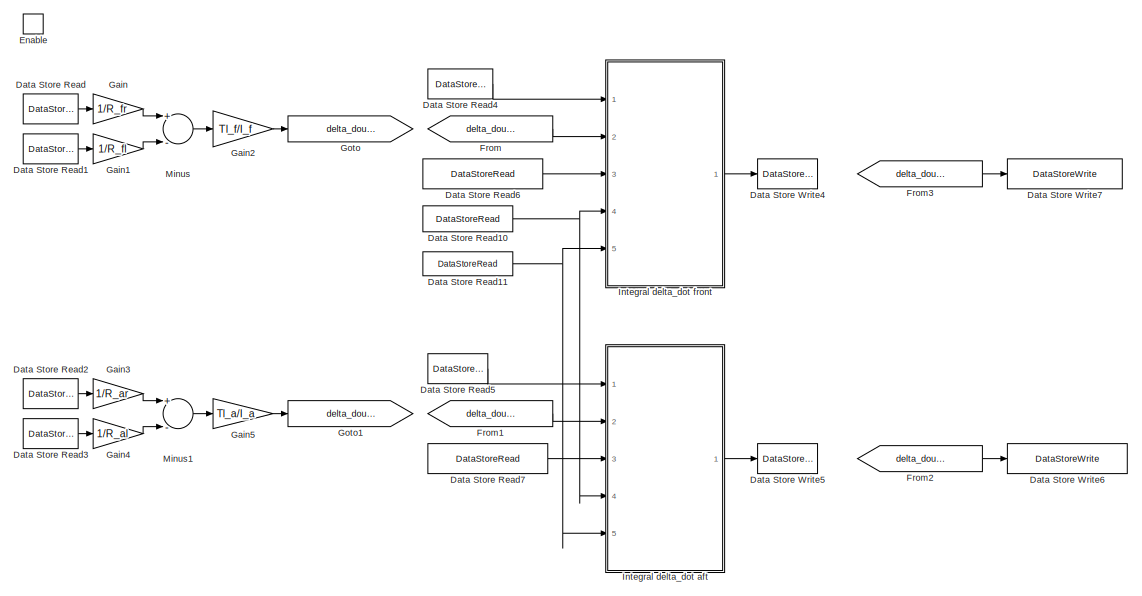
[diagram: HANcoder STM32 Target - E407-STM32 algorithm/TTA Controller Value Domain/Vehicle emulator - part 1/4, top left region]
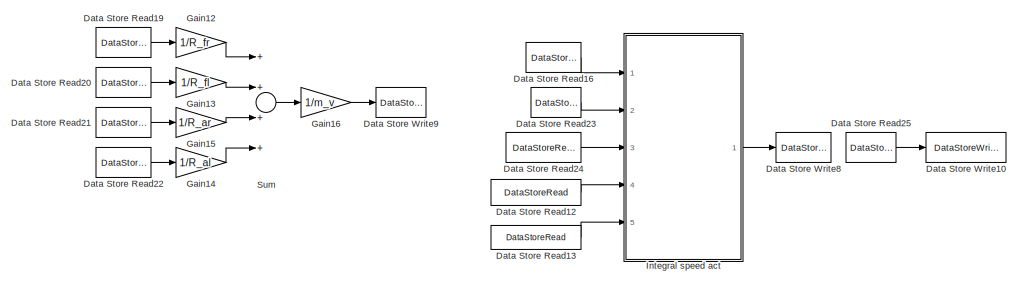
[diagram: HANcoder STM32 Target - E407-STM32 algorithm/TTA Controller Value Domain/Vehicle emulator - part 2/4, top center region]
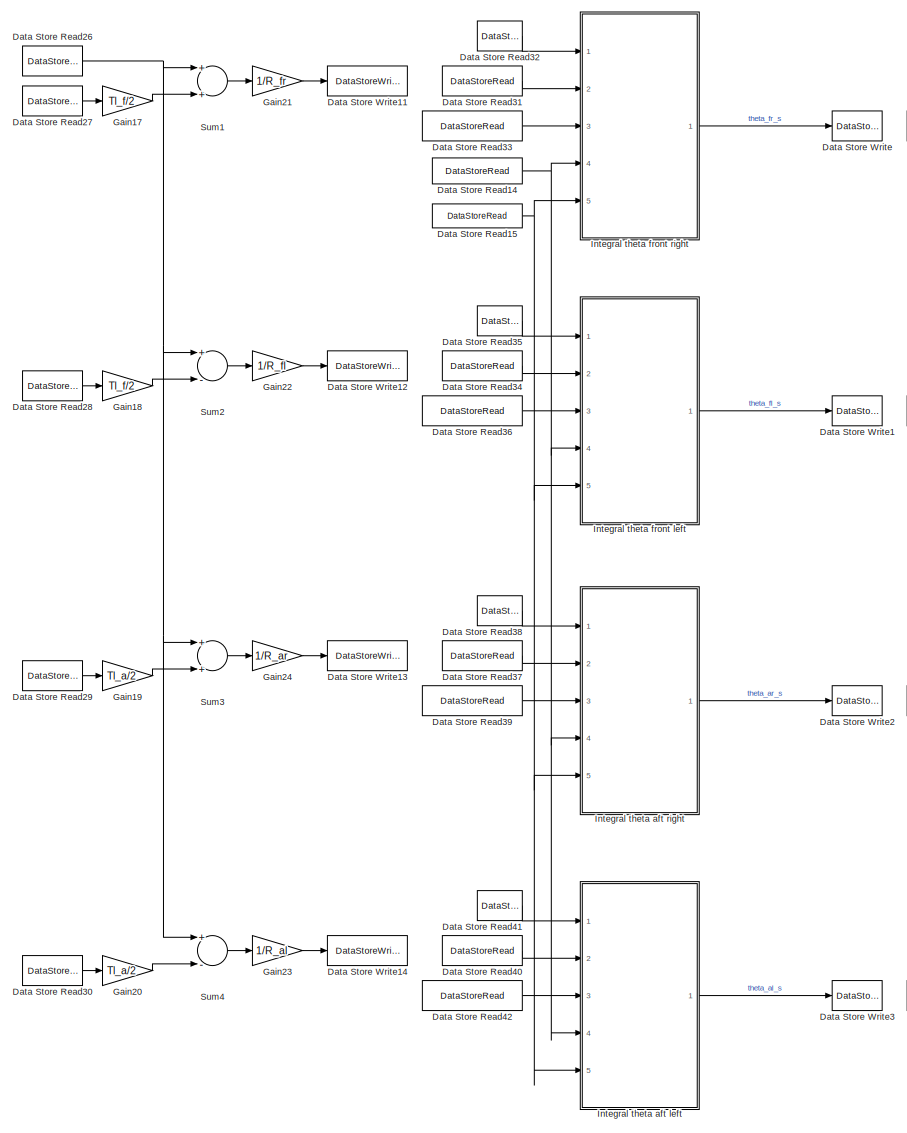
[diagram: HANcoder STM32 Target - E407-STM32 algorithm/TTA Controller Value Domain/Vehicle emulator - part 3/4, right side, full height]
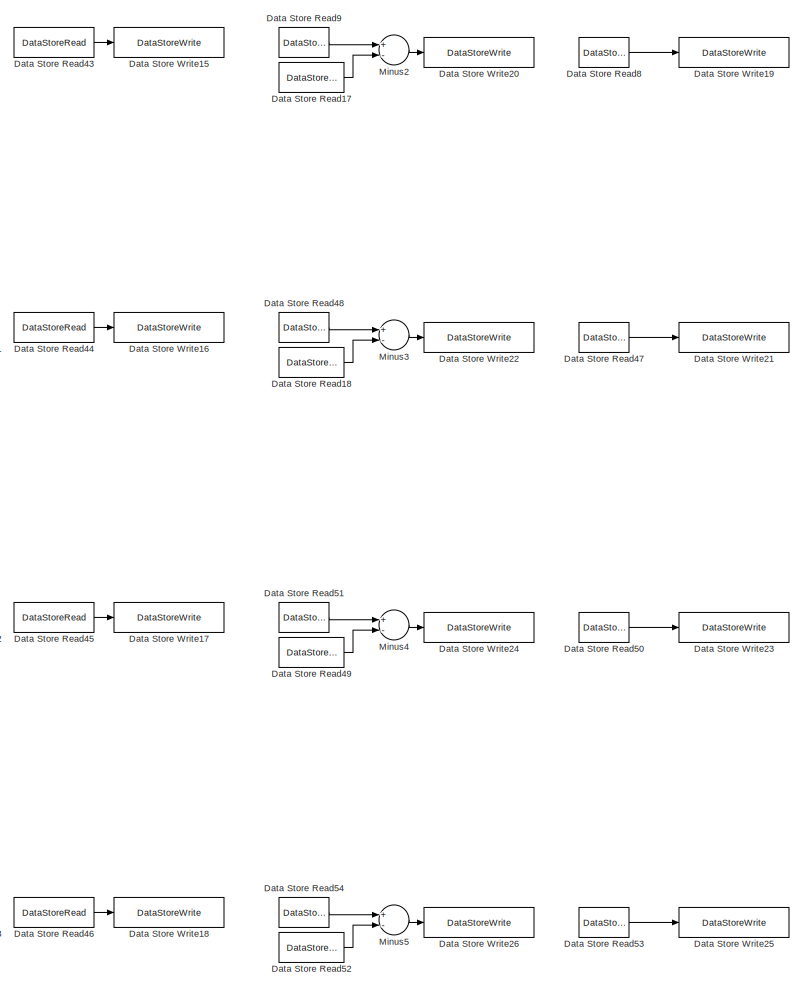
[diagram: HANcoder STM32 Target - E407-STM32 algorithm/TTA Controller Value Domain/Vehicle emulator - part 4/4, right side, full height]
BLOCK [SubSystem] HANcoder STM32 Target - E407-STM32 algorithm/TTA Controller Value Domain/Vehicle emulator
  Ports = [0, 0, 1]
  RequestExecContextInheritance = off
  TreatAsAtomicUnit = on
BLOCK [DataStoreRead] HANcoder STM32 Target - E407-STM32 algorithm/TTA Controller Value Domain/Vehicle emulator/Data Store Read
  DataStoreName = torque_fr
  Ports = [0, 1]
BLOCK [DataStoreRead] HANcoder STM32 Target - E407-STM32 algorithm/TTA Controller Value Domain/Vehicle emulator/Data Store Read1
  DataStoreName = torque_fl
  Ports = [0, 1]
BLOCK [DataStoreRead] HANcoder STM32 Target - E407-STM32 algorithm/TTA Controller Value Domain/Vehicle emulator/Data Store Read10
  DataStoreName = rx_data_time
  Ports = [0, 1]
BLOCK [DataStoreRead] HANcoder STM32 Target - E407-STM32 algorithm/TTA Controller Value Domain/Vehicle emulator/Data Store Read11
  DataStoreName = rx_data_prev_time
  Ports = [0, 1]
BLOCK [DataStoreRead] HANcoder STM32 Target - E407-STM32 algorithm/TTA Controller Value Domain/Vehicle emulator/Data Store Read12
  DataStoreName = rx_data_time
  Ports = [0, 1]
BLOCK [DataStoreRead] HANcoder STM32 Target - E407-STM32 algorithm/TTA Controller Value Domain/Vehicle emulator/Data Store Read13
  DataStoreName = rx_data_prev_time
  Ports = [0, 1]
BLOCK [DataStoreRead] HANcoder STM32 Target - E407-STM32 algorithm/TTA Controller Value Domain/Vehicle emulator/Data Store Read14
  DataStoreName = rx_data_time
  Ports = [0, 1]
BLOCK [DataStoreRead] HANcoder STM32 Target - E407-STM32 algorithm/TTA Controller Value Domain/Vehicle emulator/Data Store Read15
  DataStoreName = rx_data_prev_time
  Ports = [0, 1]
BLOCK [DataStoreRead] HANcoder STM32 Target - E407-STM32 algorithm/TTA Controller Value Domain/Vehicle emulator/Data Store Read16
  DataStoreName = speed_act
  Ports = [0, 1]
BLOCK [DataStoreRead] HANcoder STM32 Target - E407-STM32 algorithm/TTA Controller Value Domain/Vehicle emulator/Data Store Read17
  DataStoreName = theta_fr_prev
  Ports = [0, 1]
BLOCK [DataStoreRead] HANcoder STM32 Target - E407-STM32 algorithm/TTA Controller Value Domain/Vehicle emulator/Data Store Read18
  DataStoreName = theta_fl_prev
  Ports = [0, 1]
BLOCK [DataStoreRead] HANcoder STM32 Target - E407-STM32 algorithm/TTA Controller Value Domain/Vehicle emulator/Data Store Read19
  DataStoreName = torque_fr
  Ports = [0, 1]
BLOCK [DataStoreRead] HANcoder STM32 Target - E407-STM32 algorithm/TTA Controller Value Domain/Vehicle emulator/Data Store Read2
  DataStoreName = torque_ar
  Ports = [0, 1]
BLOCK [DataStoreRead] HANcoder STM32 Target - E407-STM32 algorithm/TTA Controller Value Domain/Vehicle emulator/Data Store Read20
  DataStoreName = torque_fl
  Ports = [0, 1]
BLOCK [DataStoreRead] HANcoder STM32 Target - E407-STM32 algorithm/TTA Controller Value Domain/Vehicle emulator/Data Store Read21
  DataStoreName = torque_ar
  Ports = [0, 1]
BLOCK [DataStoreRead] HANcoder STM32 Target - E407-STM32 algorithm/TTA Controller Value Domain/Vehicle emulator/Data Store Read22
  DataStoreName = torque_al
  Ports = [0, 1]
BLOCK [DataStoreRead] HANcoder STM32 Target - E407-STM32 algorithm/TTA Controller Value Domain/Vehicle emulator/Data Store Read23
  DataStoreName = avg_force
  Ports = [0, 1]
BLOCK [DataStoreRead] HANcoder STM32 Target - E407-STM32 algorithm/TTA Controller Value Domain/Vehicle emulator/Data Store Read24
  DataStoreName = avg_force_prev
  Ports = [0, 1]
BLOCK [DataStoreRead] HANcoder STM32 Target - E407-STM32 algorithm/TTA Controller Value Domain/Vehicle emulator/Data Store Read25
  DataStoreName = avg_force
  Ports = [0, 1]
  Priority = 50
BLOCK [DataStoreRead] HANcoder STM32 Target - E407-STM32 algorithm/TTA Controller Value Domain/Vehicle emulator/Data Store Read26
  DataStoreName = speed_act
  Ports = [0, 1]
BLOCK [DataStoreRead] HANcoder STM32 Target - E407-STM32 algorithm/TTA Controller Value Domain/Vehicle emulator/Data Store Read27
  DataStoreName = delta_dot_f
  Ports = [0, 1]
BLOCK [DataStoreRead] HANcoder STM32 Target - E407-STM32 algorithm/TTA Controller Value Domain/Vehicle emulator/Data Store Read28
  DataStoreName = delta_dot_f
  Ports = [0, 1]
BLOCK [DataStoreRead] HANcoder STM32 Target - E407-STM32 algorithm/TTA Controller Value Domain/Vehicle emulator/Data Store Read29
  DataStoreName = delta_dot_a
  Ports = [0, 1]
BLOCK [DataStoreRead] HANcoder STM32 Target - E407-STM32 algorithm/TTA Controller Value Domain/Vehicle emulator/Data Store Read3
  DataStoreName = torque_al
  Ports = [0, 1]
BLOCK [DataStoreRead] HANcoder STM32 Target - E407-STM32 algorithm/TTA Controller Value Domain/Vehicle emulator/Data Store Read30
  DataStoreName = delta_dot_a
  Ports = [0, 1]
BLOCK [DataStoreRead] HANcoder STM32 Target - E407-STM32 algorithm/TTA Controller Value Domain/Vehicle emulator/Data Store Read31
  DataStoreName = theta_dot_fr_ve
  Ports = [0, 1]
BLOCK [DataStoreRead] HANcoder STM32 Target - E407-STM32 algorithm/TTA Controller Value Domain/Vehicle emulator/Data Store Read32
  DataStoreName = theta_fr
  Ports = [0, 1]
BLOCK [DataStoreRead] HANcoder STM32 Target - E407-STM32 algorithm/TTA Controller Value Domain/Vehicle emulator/Data Store Read33
  DataStoreName = theta_dot_fr_prev_ve
  Ports = [0, 1]
BLOCK [DataStoreRead] HANcoder STM32 Target - E407-STM32 algorithm/TTA Controller Value Domain/Vehicle emulator/Data Store Read34
  DataStoreName = theta_dot_fl_ve
  Ports = [0, 1]
BLOCK [DataStoreRead] HANcoder STM32 Target - E407-STM32 algorithm/TTA Controller Value Domain/Vehicle emulator/Data Store Read35
  DataStoreName = theta_fl
  Ports = [0, 1]
BLOCK [DataStoreRead] HANcoder STM32 Target - E407-STM32 algorithm/TTA Controller Value Domain/Vehicle emulator/Data Store Read36
  DataStoreName = theta_dot_fl_prev_ve
  Ports = [0, 1]
BLOCK [DataStoreRead] HANcoder STM32 Target - E407-STM32 algorithm/TTA Controller Value Domain/Vehicle emulator/Data Store Read37
  DataStoreName = theta_dot_ar_ve
  Ports = [0, 1]
BLOCK [DataStoreRead] HANcoder STM32 Target - E407-STM32 algorithm/TTA Controller Value Domain/Vehicle emulator/Data Store Read38
  DataStoreName = theta_ar
  Ports = [0, 1]
BLOCK [DataStoreRead] HANcoder STM32 Target - E407-STM32 algorithm/TTA Controller Value Domain/Vehicle emulator/Data Store Read39
  DataStoreName = theta_dot_ar_prev_ve
  Ports = [0, 1]
BLOCK [DataStoreRead] HANcoder STM32 Target - E407-STM32 algorithm/TTA Controller Value Domain/Vehicle emulator/Data Store Read4
  DataStoreName = delta_dot_f
  Ports = [0, 1]
BLOCK [DataStoreRead] HANcoder STM32 Target - E407-STM32 algorithm/TTA Controller Value Domain/Vehicle emulator/Data Store Read40
  DataStoreName = theta_dot_al_ve
  Ports = [0, 1]
BLOCK [DataStoreRead] HANcoder STM32 Target - E407-STM32 algorithm/TTA Controller Value Domain/Vehicle emulator/Data Store Read41
  DataStoreName = theta_al
  Ports = [0, 1]
BLOCK [DataStoreRead] HANcoder STM32 Target - E407-STM32 algorithm/TTA Controller Value Domain/Vehicle emulator/Data Store Read42
  DataStoreName = theta_dot_al_prev_ve
  Ports = [0, 1]
BLOCK [DataStoreRead] HANcoder STM32 Target - E407-STM32 algorithm/TTA Controller Value Domain/Vehicle emulator/Data Store Read43
  DataStoreName = theta_dot_fr_ve
  Ports = [0, 1]
BLOCK [DataStoreRead] HANcoder STM32 Target - E407-STM32 algorithm/TTA Controller Value Domain/Vehicle emulator/Data Store Read44
  DataStoreName = theta_dot_fl_ve
  Ports = [0, 1]
BLOCK [DataStoreRead] HANcoder STM32 Target - E407-STM32 algorithm/TTA Controller Value Domain/Vehicle emulator/Data Store Read45
  DataStoreName = theta_dot_ar_ve
  Ports = [0, 1]
BLOCK [DataStoreRead] HANcoder STM32 Target - E407-STM32 algorithm/TTA Controller Value Domain/Vehicle emulator/Data Store Read46
  DataStoreName = theta_dot_al_ve
  Ports = [0, 1]
BLOCK [DataStoreRead] HANcoder STM32 Target - E407-STM32 algorithm/TTA Controller Value Domain/Vehicle emulator/Data Store Read47
  DataStoreName = theta_fl
  Ports = [0, 1]
BLOCK [DataStoreRead] HANcoder STM32 Target - E407-STM32 algorithm/TTA Controller Value Domain/Vehicle emulator/Data Store Read48
  DataStoreName = theta_fl
  Ports = [0, 1]
BLOCK [DataStoreRead] HANcoder STM32 Target - E407-STM32 algorithm/TTA Controller Value Domain/Vehicle emulator/Data Store Read49
  DataStoreName = theta_ar_prev
  Ports = [0, 1]
BLOCK [DataStoreRead] HANcoder STM32 Target - E407-STM32 algorithm/TTA Controller Value Domain/Vehicle emulator/Data Store Read5
  DataStoreName = delta_dot_a
  Ports = [0, 1]
BLOCK [DataStoreRead] HANcoder STM32 Target - E407-STM32 algorithm/TTA Controller Value Domain/Vehicle emulator/Data Store Read50
  DataStoreName = theta_ar
  Ports = [0, 1]
BLOCK [DataStoreRead] HANcoder STM32 Target - E407-STM32 algorithm/TTA Controller Value Domain/Vehicle emulator/Data Store Read51
  DataStoreName = theta_ar
  Ports = [0, 1]
BLOCK [DataStoreRead] HANcoder STM32 Target - E407-STM32 algorithm/TTA Controller Value Domain/Vehicle emulator/Data Store Read52
  DataStoreName = theta_al_prev
  Ports = [0, 1]
BLOCK [DataStoreRead] HANcoder STM32 Target - E407-STM32 algorithm/TTA Controller Value Domain/Vehicle emulator/Data Store Read53
  DataStoreName = theta_al
  Ports = [0, 1]
BLOCK [DataStoreRead] HANcoder STM32 Target - E407-STM32 algorithm/TTA Controller Value Domain/Vehicle emulator/Data Store Read54
  DataStoreName = theta_al
  Ports = [0, 1]
BLOCK [DataStoreRead] HANcoder STM32 Target - E407-STM32 algorithm/TTA Controller Value Domain/Vehicle emulator/Data Store Read6
  DataStoreName = delta_double_dot_f_prev
  Ports = [0, 1]
BLOCK [DataStoreRead] HANcoder STM32 Target - E407-STM32 algorithm/TTA Controller Value Domain/Vehicle emulator/Data Store Read7
  DataStoreName = delta_double_dot_a_prev
  Ports = [0, 1]
BLOCK [DataStoreRead] HANcoder STM32 Target - E407-STM32 algorithm/TTA Controller Value Domain/Vehicle emulator/Data Store Read8
  DataStoreName = theta_fr
  Ports = [0, 1]
BLOCK [DataStoreRead] HANcoder STM32 Target - E407-STM32 algorithm/TTA Controller Value Domain/Vehicle emulator/Data Store Read9
  DataStoreName = theta_fr
  Ports = [0, 1]
BLOCK [DataStoreWrite] HANcoder STM32 Target - E407-STM32 algorithm/TTA Controller Value Domain/Vehicle emulator/Data Store Write
  DataStoreName = theta_fr
  Ports = [1]
  Priority = 70
BLOCK [DataStoreWrite] HANcoder STM32 Target - E407-STM32 algorithm/TTA Controller Value Domain/Vehicle emulator/Data Store Write1
  DataStoreName = theta_fl
  Ports = [1]
  Priority = 71
BLOCK [DataStoreWrite] HANcoder STM32 Target - E407-STM32 algorithm/TTA Controller Value Domain/Vehicle emulator/Data Store Write10
  DataStoreName = avg_force_prev
  Ports = [1]
  Priority = 51
BLOCK [DataStoreWrite] HANcoder STM32 Target - E407-STM32 algorithm/TTA Controller Value Domain/Vehicle emulator/Data Store Write11
  DataStoreName = theta_dot_fr_ve
  Ports = [1]
  Priority = 60
BLOCK [DataStoreWrite] HANcoder STM32 Target - E407-STM32 algorithm/TTA Controller Value Domain/Vehicle emulator/Data Store Write12
  DataStoreName = theta_dot_fl_ve
  Ports = [1]
  Priority = 61
BLOCK [DataStoreWrite] HANcoder STM32 Target - E407-STM32 algorithm/TTA Controller Value Domain/Vehicle emulator/Data Store Write13
  DataStoreName = theta_dot_ar_ve
  Ports = [1]
  Priority = 62
BLOCK [DataStoreWrite] HANcoder STM32 Target - E407-STM32 algorithm/TTA Controller Value Domain/Vehicle emulator/Data Store Write14
  DataStoreName = theta_dot_al_ve
  Ports = [1]
  Priority = 63
BLOCK [DataStoreWrite] HANcoder STM32 Target - E407-STM32 algorithm/TTA Controller Value Domain/Vehicle emulator/Data Store Write15
  DataStoreName = theta_dot_fr_prev_ve
  Ports = [1]
  Priority = 80
BLOCK [DataStoreWrite] HANcoder STM32 Target - E407-STM32 algorithm/TTA Controller Value Domain/Vehicle emulator/Data Store Write16
  DataStoreName = theta_dot_fl_prev_ve
  Ports = [1]
  Priority = 81
BLOCK [DataStoreWrite] HANcoder STM32 Target - E407-STM32 algorithm/TTA Controller Value Domain/Vehicle emulator/Data Store Write17
  DataStoreName = theta_dot_ar_prev_ve
  Ports = [1]
  Priority = 82
BLOCK [DataStoreWrite] HANcoder STM32 Target - E407-STM32 algorithm/TTA Controller Value Domain/Vehicle emulator/Data Store Write18
  DataStoreName = theta_dot_al_prev_ve
  Ports = [1]
  Priority = 83
BLOCK [DataStoreWrite] HANcoder STM32 Target - E407-STM32 algorithm/TTA Controller Value Domain/Vehicle emulator/Data Store Write19
  DataStoreName = theta_fr_prev
  Ports = [1]
  Priority = 100
BLOCK [DataStoreWrite] HANcoder STM32 Target - E407-STM32 algorithm/TTA Controller Value Domain/Vehicle emulator/Data Store Write2
  DataStoreName = theta_ar
  Ports = [1]
  Priority = 72
BLOCK [DataStoreWrite] HANcoder STM32 Target - E407-STM32 algorithm/TTA Controller Value Domain/Vehicle emulator/Data Store Write20
  DataStoreName = theta_fr_incr
  Ports = [1]
  Priority = 90
BLOCK [DataStoreWrite] HANcoder STM32 Target - E407-STM32 algorithm/TTA Controller Value Domain/Vehicle emulator/Data Store Write21
  DataStoreName = theta_fl_prev
  Ports = [1]
  Priority = 101
BLOCK [DataStoreWrite] HANcoder STM32 Target - E407-STM32 algorithm/TTA Controller Value Domain/Vehicle emulator/Data Store Write22
  DataStoreName = theta_fl_incr
  Ports = [1]
  Priority = 91
BLOCK [DataStoreWrite] HANcoder STM32 Target - E407-STM32 algorithm/TTA Controller Value Domain/Vehicle emulator/Data Store Write23
  DataStoreName = theta_ar_prev
  Ports = [1]
  Priority = 102
BLOCK [DataStoreWrite] HANcoder STM32 Target - E407-STM32 algorithm/TTA Controller Value Domain/Vehicle emulator/Data Store Write24
  DataStoreName = theta_ar_incr
  Ports = [1]
  Priority = 92
BLOCK [DataStoreWrite] HANcoder STM32 Target - E407-STM32 algorithm/TTA Controller Value Domain/Vehicle emulator/Data Store Write25
  DataStoreName = theta_al_prev
  Ports = [1]
  Priority = 103
BLOCK [DataStoreWrite] HANcoder STM32 Target - E407-STM32 algorithm/TTA Controller Value Domain/Vehicle emulator/Data Store Write26
  DataStoreName = theta_al_incr
  Ports = [1]
  Priority = 93
BLOCK [DataStoreWrite] HANcoder STM32 Target - E407-STM32 algorithm/TTA Controller Value Domain/Vehicle emulator/Data Store Write3
  DataStoreName = theta_al
  Ports = [1]
  Priority = 73
BLOCK [DataStoreWrite] HANcoder STM32 Target - E407-STM32 algorithm/TTA Controller Value Domain/Vehicle emulator/Data Store Write4
  DataStoreName = delta_dot_f
  Ports = [1]
  Priority = 10
BLOCK [DataStoreWrite] HANcoder STM32 Target - E407-STM32 algorithm/TTA Controller Value Domain/Vehicle emulator/Data Store Write5
  DataStoreName = delta_dot_a
  Ports = [1]
  Priority = 11
BLOCK [DataStoreWrite] HANcoder STM32 Target - E407-STM32 algorithm/TTA Controller Value Domain/Vehicle emulator/Data Store Write6
  DataStoreName = delta_double_dot_a_prev
  Ports = [1]
  Priority = 21
BLOCK [DataStoreWrite] HANcoder STM32 Target - E407-STM32 algorithm/TTA Controller Value Domain/Vehicle emulator/Data Store Write7
  DataStoreName = delta_double_dot_f_prev
  Ports = [1]
  Priority = 20
BLOCK [DataStoreWrite] HANcoder STM32 Target - E407-STM32 algorithm/TTA Controller Value Domain/Vehicle emulator/Data Store Write8
  DataStoreName = speed_act
  Ports = [1]
  Priority = 40
BLOCK [DataStoreWrite] HANcoder STM32 Target - E407-STM32 algorithm/TTA Controller Value Domain/Vehicle emulator/Data Store Write9
  DataStoreName = avg_force
  Ports = [1]
  Priority = 30
BLOCK [EnablePort] HANcoder STM32 Target - E407-STM32 algorithm/TTA Controller Value Domain/Vehicle emulator/Enable
  Ports = []
BLOCK [From] HANcoder STM32 Target - E407-STM32 algorithm/TTA Controller Value Domain/Vehicle emulator/From
  GotoTag = delta_double_dot_f
BLOCK [From] HANcoder STM32 Target - E407-STM32 algorithm/TTA Controller Value Domain/Vehicle emulator/From1
  GotoTag = delta_double_dot_a
BLOCK [From] HANcoder STM32 Target - E407-STM32 algorithm/TTA Controller Value Domain/Vehicle emulator/From2
  GotoTag = delta_double_dot_a
BLOCK [From] HANcoder STM32 Target - E407-STM32 algorithm/TTA Controller Value Domain/Vehicle emulator/From3
  GotoTag = delta_double_dot_f
BLOCK [Gain] HANcoder STM32 Target - E407-STM32 algorithm/TTA Controller Value Domain/Vehicle emulator/Gain
  Gain = 1/R_fr
  OutDataTypeStr = Inherit: Inherit via internal rule
  ParamDataTypeStr = Inherit: Inherit via internal rule
  SaturateOnIntegerOverflow = off
BLOCK [Gain] HANcoder STM32 Target - E407-STM32 algorithm/TTA Controller Value Domain/Vehicle emulator/Gain1
  Gain = 1/R_fl
  OutDataTypeStr = Inherit: Inherit via internal rule
  ParamDataTypeStr = Inherit: Inherit via internal rule
  SaturateOnIntegerOverflow = off
BLOCK [Gain] HANcoder STM32 Target - E407-STM32 algorithm/TTA Controller Value Domain/Vehicle emulator/Gain12
  Gain = 1/R_fr
  OutDataTypeStr = Inherit: Inherit via internal rule
  ParamDataTypeStr = Inherit: Inherit via internal rule
  SaturateOnIntegerOverflow = off
BLOCK [Gain] HANcoder STM32 Target - E407-STM32 algorithm/TTA Controller Value Domain/Vehicle emulator/Gain13
  Gain = 1/R_fl
  OutDataTypeStr = Inherit: Inherit via internal rule
  ParamDataTypeStr = Inherit: Inherit via internal rule
  SaturateOnIntegerOverflow = off
BLOCK [Gain] HANcoder STM32 Target - E407-STM32 algorithm/TTA Controller Value Domain/Vehicle emulator/Gain14
  Gain = 1/R_al
  OutDataTypeStr = Inherit: Inherit via internal rule
  ParamDataTypeStr = Inherit: Inherit via internal rule
  SaturateOnIntegerOverflow = off
BLOCK [Gain] HANcoder STM32 Target - E407-STM32 algorithm/TTA Controller Value Domain/Vehicle emulator/Gain15
  Gain = 1/R_ar
  OutDataTypeStr = Inherit: Inherit via internal rule
  ParamDataTypeStr = Inherit: Inherit via internal rule
  SaturateOnIntegerOverflow = off
BLOCK [Gain] HANcoder STM32 Target - E407-STM32 algorithm/TTA Controller Value Domain/Vehicle emulator/Gain16
  Gain = 1/m_v
  OutDataTypeStr = Inherit: Inherit via internal rule
  ParamDataTypeStr = Inherit: Inherit via internal rule
  SaturateOnIntegerOverflow = off
BLOCK [Gain] HANcoder STM32 Target - E407-STM32 algorithm/TTA Controller Value Domain/Vehicle emulator/Gain17
  Gain = Tl_f/2
  OutDataTypeStr = Inherit: Inherit via internal rule
  ParamDataTypeStr = Inherit: Inherit via internal rule
  SaturateOnIntegerOverflow = off
BLOCK [Gain] HANcoder STM32 Target - E407-STM32 algorithm/TTA Controller Value Domain/Vehicle emulator/Gain18
  Gain = Tl_f/2
  OutDataTypeStr = Inherit: Inherit via internal rule
  ParamDataTypeStr = Inherit: Inherit via internal rule
  SaturateOnIntegerOverflow = off
BLOCK [Gain] HANcoder STM32 Target - E407-STM32 algorithm/TTA Controller Value Domain/Vehicle emulator/Gain19
  Gain = Tl_a/2
  OutDataTypeStr = Inherit: Inherit via internal rule
  ParamDataTypeStr = Inherit: Inherit via internal rule
  SaturateOnIntegerOverflow = off
BLOCK [Gain] HANcoder STM32 Target - E407-STM32 algorithm/TTA Controller Value Domain/Vehicle emulator/Gain2
  Gain = Tl_f/I_f
  OutDataTypeStr = Inherit: Inherit via internal rule
  ParamDataTypeStr = Inherit: Inherit via internal rule
  Priority = 1
  SaturateOnIntegerOverflow = off
BLOCK [Gain] HANcoder STM32 Target - E407-STM32 algorithm/TTA Controller Value Domain/Vehicle emulator/Gain20
  Gain = Tl_a/2
  OutDataTypeStr = Inherit: Inherit via internal rule
  ParamDataTypeStr = Inherit: Inherit via internal rule
  SaturateOnIntegerOverflow = off
BLOCK [Gain] HANcoder STM32 Target - E407-STM32 algorithm/TTA Controller Value Domain/Vehicle emulator/Gain21
  Gain = 1/R_fr
  OutDataTypeStr = Inherit: Inherit via internal rule
  ParamDataTypeStr = Inherit: Inherit via internal rule
  SaturateOnIntegerOverflow = off
BLOCK [Gain] HANcoder STM32 Target - E407-STM32 algorithm/TTA Controller Value Domain/Vehicle emulator/Gain22
  Gain = 1/R_fl
  OutDataTypeStr = Inherit: Inherit via internal rule
  ParamDataTypeStr = Inherit: Inherit via internal rule
  SaturateOnIntegerOverflow = off
BLOCK [Gain] HANcoder STM32 Target - E407-STM32 algorithm/TTA Controller Value Domain/Vehicle emulator/Gain23
  Gain = 1/R_al
  OutDataTypeStr = Inherit: Inherit via internal rule
  ParamDataTypeStr = Inherit: Inherit via internal rule
  SaturateOnIntegerOverflow = off
BLOCK [Gain] HANcoder STM32 Target - E407-STM32 algorithm/TTA Controller Value Domain/Vehicle emulator/Gain24
  Gain = 1/R_ar
  OutDataTypeStr = Inherit: Inherit via internal rule
  ParamDataTypeStr = Inherit: Inherit via internal rule
  SaturateOnIntegerOverflow = off
BLOCK [Gain] HANcoder STM32 Target - E407-STM32 algorithm/TTA Controller Value Domain/Vehicle emulator/Gain3
  Gain = 1/R_ar
  OutDataTypeStr = Inherit: Inherit via internal rule
  ParamDataTypeStr = Inherit: Inherit via internal rule
  SaturateOnIntegerOverflow = off
BLOCK [Gain] HANcoder STM32 Target - E407-STM32 algorithm/TTA Controller Value Domain/Vehicle emulator/Gain4
  Gain = 1/R_al
  OutDataTypeStr = Inherit: Inherit via internal rule
  ParamDataTypeStr = Inherit: Inherit via internal rule
  SaturateOnIntegerOverflow = off
BLOCK [Gain] HANcoder STM32 Target - E407-STM32 algorithm/TTA Controller Value Domain/Vehicle emulator/Gain5
  Gain = Tl_a/I_a
  OutDataTypeStr = Inherit: Inherit via internal rule
  ParamDataTypeStr = Inherit: Inherit via internal rule
  Priority = 2
  SaturateOnIntegerOverflow = off
BLOCK [Goto] HANcoder STM32 Target - E407-STM32 algorithm/TTA Controller Value Domain/Vehicle emulator/Goto
  GotoTag = delta_double_dot_f
BLOCK [Goto] HANcoder STM32 Target - E407-STM32 algorithm/TTA Controller Value Domain/Vehicle emulator/Goto1
  GotoTag = delta_double_dot_a
BLOCK [SubSystem] HANcoder STM32 Target - E407-STM32 algorithm/TTA Controller Value Domain/Vehicle emulator/Integral delta_dot aft
  Ports = [5, 1]
  RequestExecContextInheritance = off
BLOCK [Gain] HANcoder STM32 Target - E407-STM32 algorithm/TTA Controller Value Domain/Vehicle emulator/Integral delta_dot aft/Gain
  Gain = 1/2
  OutDataTypeStr = Inherit: Inherit via internal rule
  ParamDataTypeStr = Inherit: Inherit via internal rule
  SaturateOnIntegerOverflow = off
BLOCK [Sum] HANcoder STM32 Target - E407-STM32 algorithm/TTA Controller Value Domain/Vehicle emulator/Integral delta_dot aft/Minus
  InputSameDT = off
  OutDataTypeStr = Inherit: Inherit via internal rule
  Ports = [2, 1]
  SaturateOnIntegerOverflow = off
BLOCK [Sum] HANcoder STM32 Target - E407-STM32 algorithm/TTA Controller Value Domain/Vehicle emulator/Integral delta_dot aft/Minus1
  InputSameDT = off
  Inputs = +-
  OutDataTypeStr = Inherit: Inherit via internal rule
  Ports = [2, 1]
  SaturateOnIntegerOverflow = off
BLOCK [Sum] HANcoder STM32 Target - E407-STM32 algorithm/TTA Controller Value Domain/Vehicle emulator/Integral delta_dot aft/Minus2
  InputSameDT = off
  OutDataTypeStr = Inherit: Inherit via internal rule
  Ports = [2, 1]
  SaturateOnIntegerOverflow = off
BLOCK [Product] HANcoder STM32 Target - E407-STM32 algorithm/TTA Controller Value Domain/Vehicle emulator/Integral delta_dot aft/Multiply
  InputSameDT = off
  OutDataTypeStr = Inherit: Inherit via internal rule
  Ports = [2, 1]
  RndMeth = Floor
  SaturateOnIntegerOverflow = off
BLOCK [Inport] HANcoder STM32 Target - E407-STM32 algorithm/TTA Controller Value Domain/Vehicle emulator/Integral delta_dot aft/current_integral_value
  IconDisplay = Port number
BLOCK [Inport] HANcoder STM32 Target - E407-STM32 algorithm/TTA Controller Value Domain/Vehicle emulator/Integral delta_dot aft/current_time
  IconDisplay = Port number
  Port = 4
BLOCK [Inport] HANcoder STM32 Target - E407-STM32 algorithm/TTA Controller Value Domain/Vehicle emulator/Integral delta_dot aft/current_value
  IconDisplay = Port number
  Port = 2
BLOCK [Inport] HANcoder STM32 Target - E407-STM32 algorithm/TTA Controller Value Domain/Vehicle emulator/Integral delta_dot aft/previous_time
  IconDisplay = Port number
  Port = 5
BLOCK [Inport] HANcoder STM32 Target - E407-STM32 algorithm/TTA Controller Value Domain/Vehicle emulator/Integral delta_dot aft/previous_value
  IconDisplay = Port number
  Port = 3
BLOCK [Outport] HANcoder STM32 Target - E407-STM32 algorithm/TTA Controller Value Domain/Vehicle emulator/Integral delta_dot aft/result
  IconDisplay = Port number
BLOCK [SubSystem] HANcoder STM32 Target - E407-STM32 algorithm/TTA Controller Value Domain/Vehicle emulator/Integral delta_dot front
  Ports = [5, 1]
  RequestExecContextInheritance = off
BLOCK [Gain] HANcoder STM32 Target - E407-STM32 algorithm/TTA Controller Value Domain/Vehicle emulator/Integral delta_dot front/Gain
  Gain = 1/2
  OutDataTypeStr = Inherit: Inherit via internal rule
  ParamDataTypeStr = Inherit: Inherit via internal rule
  SaturateOnIntegerOverflow = off
BLOCK [Sum] HANcoder STM32 Target - E407-STM32 algorithm/TTA Controller Value Domain/Vehicle emulator/Integral delta_dot front/Minus
  InputSameDT = off
  OutDataTypeStr = Inherit: Inherit via internal rule
  Ports = [2, 1]
  SaturateOnIntegerOverflow = off
BLOCK [Sum] HANcoder STM32 Target - E407-STM32 algorithm/TTA Controller Value Domain/Vehicle emulator/Integral delta_dot front/Minus1
  InputSameDT = off
  Inputs = +-
  OutDataTypeStr = Inherit: Inherit via internal rule
  Ports = [2, 1]
  SaturateOnIntegerOverflow = off
BLOCK [Sum] HANcoder STM32 Target - E407-STM32 algorithm/TTA Controller Value Domain/Vehicle emulator/Integral delta_dot front/Minus2
  InputSameDT = off
  OutDataTypeStr = Inherit: Inherit via internal rule
  Ports = [2, 1]
  SaturateOnIntegerOverflow = off
BLOCK [Product] HANcoder STM32 Target - E407-STM32 algorithm/TTA Controller Value Domain/Vehicle emulator/Integral delta_dot front/Multiply
  InputSameDT = off
  OutDataTypeStr = Inherit: Inherit via internal rule
  Ports = [2, 1]
  RndMeth = Floor
  SaturateOnIntegerOverflow = off
BLOCK [Inport] HANcoder STM32 Target - E407-STM32 algorithm/TTA Controller Value Domain/Vehicle emulator/Integral delta_dot front/current_integral_value
  IconDisplay = Port number
BLOCK [Inport] HANcoder STM32 Target - E407-STM32 algorithm/TTA Controller Value Domain/Vehicle emulator/Integral delta_dot front/current_time
  IconDisplay = Port number
  Port = 4
BLOCK [Inport] HANcoder STM32 Target - E407-STM32 algorithm/TTA Controller Value Domain/Vehicle emulator/Integral delta_dot front/current_value
  IconDisplay = Port number
  Port = 2
BLOCK [Inport] HANcoder STM32 Target - E407-STM32 algorithm/TTA Controller Value Domain/Vehicle emulator/Integral delta_dot front/previous_time
  IconDisplay = Port number
  Port = 5
BLOCK [Inport] HANcoder STM32 Target - E407-STM32 algorithm/TTA Controller Value Domain/Vehicle emulator/Integral delta_dot front/previous_value
  IconDisplay = Port number
  Port = 3
BLOCK [Outport] HANcoder STM32 Target - E407-STM32 algorithm/TTA Controller Value Domain/Vehicle emulator/Integral delta_dot front/result
  IconDisplay = Port number
BLOCK [SubSystem] HANcoder STM32 Target - E407-STM32 algorithm/TTA Controller Value Domain/Vehicle emulator/Integral speed act
  Ports = [5, 1]
  RequestExecContextInheritance = off
BLOCK [Gain] HANcoder STM32 Target - E407-STM32 algorithm/TTA Controller Value Domain/Vehicle emulator/Integral speed act/Gain
  Gain = 1/2
  OutDataTypeStr = Inherit: Inherit via internal rule
  ParamDataTypeStr = Inherit: Inherit via internal rule
  SaturateOnIntegerOverflow = off
BLOCK [Sum] HANcoder STM32 Target - E407-STM32 algorithm/TTA Controller Value Domain/Vehicle emulator/Integral speed act/Minus
  InputSameDT = off
  OutDataTypeStr = Inherit: Inherit via internal rule
  Ports = [2, 1]
  SaturateOnIntegerOverflow = off
BLOCK [Sum] HANcoder STM32 Target - E407-STM32 algorithm/TTA Controller Value Domain/Vehicle emulator/Integral speed act/Minus1
  InputSameDT = off
  Inputs = +-
  OutDataTypeStr = Inherit: Inherit via internal rule
  Ports = [2, 1]
  SaturateOnIntegerOverflow = off
BLOCK [Sum] HANcoder STM32 Target - E407-STM32 algorithm/TTA Controller Value Domain/Vehicle emulator/Integral speed act/Minus2
  InputSameDT = off
  OutDataTypeStr = Inherit: Inherit via internal rule
  Ports = [2, 1]
  SaturateOnIntegerOverflow = off
BLOCK [Product] HANcoder STM32 Target - E407-STM32 algorithm/TTA Controller Value Domain/Vehicle emulator/Integral speed act/Multiply
  InputSameDT = off
  OutDataTypeStr = Inherit: Inherit via internal rule
  Ports = [2, 1]
  RndMeth = Floor
  SaturateOnIntegerOverflow = off
BLOCK [Inport] HANcoder STM32 Target - E407-STM32 algorithm/TTA Controller Value Domain/Vehicle emulator/Integral speed act/current_integral_value
  IconDisplay = Port number
BLOCK [Inport] HANcoder STM32 Target - E407-STM32 algorithm/TTA Controller Value Domain/Vehicle emulator/Integral speed act/current_time
  IconDisplay = Port number
  Port = 4
BLOCK [Inport] HANcoder STM32 Target - E407-STM32 algorithm/TTA Controller Value Domain/Vehicle emulator/Integral speed act/current_value
  IconDisplay = Port number
  Port = 2
BLOCK [Inport] HANcoder STM32 Target - E407-STM32 algorithm/TTA Controller Value Domain/Vehicle emulator/Integral speed act/previous_time
  IconDisplay = Port number
  Port = 5
BLOCK [Inport] HANcoder STM32 Target - E407-STM32 algorithm/TTA Controller Value Domain/Vehicle emulator/Integral speed act/previous_value
  IconDisplay = Port number
  Port = 3
BLOCK [Outport] HANcoder STM32 Target - E407-STM32 algorithm/TTA Controller Value Domain/Vehicle emulator/Integral speed act/result
  IconDisplay = Port number
BLOCK [SubSystem] HANcoder STM32 Target - E407-STM32 algorithm/TTA Controller Value Domain/Vehicle emulator/Integral theta aft left
  Ports = [5, 1]
  RequestExecContextInheritance = off
BLOCK [Gain] HANcoder STM32 Target - E407-STM32 algorithm/TTA Controller Value Domain/Vehicle emulator/Integral theta aft left/Gain
  Gain = 1/2
  OutDataTypeStr = Inherit: Inherit via internal rule
  ParamDataTypeStr = Inherit: Inherit via internal rule
  SaturateOnIntegerOverflow = off
BLOCK [Sum] HANcoder STM32 Target - E407-STM32 algorithm/TTA Controller Value Domain/Vehicle emulator/Integral theta aft left/Minus
  InputSameDT = off
  OutDataTypeStr = Inherit: Inherit via internal rule
  Ports = [2, 1]
  SaturateOnIntegerOverflow = off
BLOCK [Sum] HANcoder STM32 Target - E407-STM32 algorithm/TTA Controller Value Domain/Vehicle emulator/Integral theta aft left/Minus1
  InputSameDT = off
  Inputs = +-
  OutDataTypeStr = Inherit: Inherit via internal rule
  Ports = [2, 1]
  SaturateOnIntegerOverflow = off
BLOCK [Sum] HANcoder STM32 Target - E407-STM32 algorithm/TTA Controller Value Domain/Vehicle emulator/Integral theta aft left/Minus2
  InputSameDT = off
  OutDataTypeStr = Inherit: Inherit via internal rule
  Ports = [2, 1]
  SaturateOnIntegerOverflow = off
BLOCK [Product] HANcoder STM32 Target - E407-STM32 algorithm/TTA Controller Value Domain/Vehicle emulator/Integral theta aft left/Multiply
  InputSameDT = off
  OutDataTypeStr = Inherit: Inherit via internal rule
  Ports = [2, 1]
  RndMeth = Floor
  SaturateOnIntegerOverflow = off
BLOCK [Inport] HANcoder STM32 Target - E407-STM32 algorithm/TTA Controller Value Domain/Vehicle emulator/Integral theta aft left/current_integral_value
  IconDisplay = Port number
BLOCK [Inport] HANcoder STM32 Target - E407-STM32 algorithm/TTA Controller Value Domain/Vehicle emulator/Integral theta aft left/current_time
  IconDisplay = Port number
  Port = 4
BLOCK [Inport] HANcoder STM32 Target - E407-STM32 algorithm/TTA Controller Value Domain/Vehicle emulator/Integral theta aft left/current_value
  IconDisplay = Port number
  Port = 2
BLOCK [Inport] HANcoder STM32 Target - E407-STM32 algorithm/TTA Controller Value Domain/Vehicle emulator/Integral theta aft left/previous_time
  IconDisplay = Port number
  Port = 5
BLOCK [Inport] HANcoder STM32 Target - E407-STM32 algorithm/TTA Controller Value Domain/Vehicle emulator/Integral theta aft left/previous_value
  IconDisplay = Port number
  Port = 3
BLOCK [Outport] HANcoder STM32 Target - E407-STM32 algorithm/TTA Controller Value Domain/Vehicle emulator/Integral theta aft left/result
  IconDisplay = Port number
BLOCK [SubSystem] HANcoder STM32 Target - E407-STM32 algorithm/TTA Controller Value Domain/Vehicle emulator/Integral theta aft right
  Ports = [5, 1]
  RequestExecContextInheritance = off
BLOCK [Gain] HANcoder STM32 Target - E407-STM32 algorithm/TTA Controller Value Domain/Vehicle emulator/Integral theta aft right/Gain
  Gain = 1/2
  OutDataTypeStr = Inherit: Inherit via internal rule
  ParamDataTypeStr = Inherit: Inherit via internal rule
  SaturateOnIntegerOverflow = off
BLOCK [Sum] HANcoder STM32 Target - E407-STM32 algorithm/TTA Controller Value Domain/Vehicle emulator/Integral theta aft right/Minus
  InputSameDT = off
  OutDataTypeStr = Inherit: Inherit via internal rule
  Ports = [2, 1]
  SaturateOnIntegerOverflow = off
BLOCK [Sum] HANcoder STM32 Target - E407-STM32 algorithm/TTA Controller Value Domain/Vehicle emulator/Integral theta aft right/Minus1
  InputSameDT = off
  Inputs = +-
  OutDataTypeStr = Inherit: Inherit via internal rule
  Ports = [2, 1]
  SaturateOnIntegerOverflow = off
BLOCK [Sum] HANcoder STM32 Target - E407-STM32 algorithm/TTA Controller Value Domain/Vehicle emulator/Integral theta aft right/Minus2
  InputSameDT = off
  OutDataTypeStr = Inherit: Inherit via internal rule
  Ports = [2, 1]
  SaturateOnIntegerOverflow = off
BLOCK [Product] HANcoder STM32 Target - E407-STM32 algorithm/TTA Controller Value Domain/Vehicle emulator/Integral theta aft right/Multiply
  InputSameDT = off
  OutDataTypeStr = Inherit: Inherit via internal rule
  Ports = [2, 1]
  RndMeth = Floor
  SaturateOnIntegerOverflow = off
BLOCK [Inport] HANcoder STM32 Target - E407-STM32 algorithm/TTA Controller Value Domain/Vehicle emulator/Integral theta aft right/current_integral_value
  IconDisplay = Port number
BLOCK [Inport] HANcoder STM32 Target - E407-STM32 algorithm/TTA Controller Value Domain/Vehicle emulator/Integral theta aft right/current_time
  IconDisplay = Port number
  Port = 4
BLOCK [Inport] HANcoder STM32 Target - E407-STM32 algorithm/TTA Controller Value Domain/Vehicle emulator/Integral theta aft right/current_value
  IconDisplay = Port number
  Port = 2
BLOCK [Inport] HANcoder STM32 Target - E407-STM32 algorithm/TTA Controller Value Domain/Vehicle emulator/Integral theta aft right/previous_time
  IconDisplay = Port number
  Port = 5
BLOCK [Inport] HANcoder STM32 Target - E407-STM32 algorithm/TTA Controller Value Domain/Vehicle emulator/Integral theta aft right/previous_value
  IconDisplay = Port number
  Port = 3
BLOCK [Outport] HANcoder STM32 Target - E407-STM32 algorithm/TTA Controller Value Domain/Vehicle emulator/Integral theta aft right/result
  IconDisplay = Port number
BLOCK [SubSystem] HANcoder STM32 Target - E407-STM32 algorithm/TTA Controller Value Domain/Vehicle emulator/Integral theta front left
  Ports = [5, 1]
  RequestExecContextInheritance = off
BLOCK [Gain] HANcoder STM32 Target - E407-STM32 algorithm/TTA Controller Value Domain/Vehicle emulator/Integral theta front left/Gain
  Gain = 1/2
  OutDataTypeStr = Inherit: Inherit via internal rule
  ParamDataTypeStr = Inherit: Inherit via internal rule
  SaturateOnIntegerOverflow = off
BLOCK [Sum] HANcoder STM32 Target - E407-STM32 algorithm/TTA Controller Value Domain/Vehicle emulator/Integral theta front left/Minus
  InputSameDT = off
  OutDataTypeStr = Inherit: Inherit via internal rule
  Ports = [2, 1]
  SaturateOnIntegerOverflow = off
BLOCK [Sum] HANcoder STM32 Target - E407-STM32 algorithm/TTA Controller Value Domain/Vehicle emulator/Integral theta front left/Minus1
  InputSameDT = off
  Inputs = +-
  OutDataTypeStr = Inherit: Inherit via internal rule
  Ports = [2, 1]
  SaturateOnIntegerOverflow = off
BLOCK [Sum] HANcoder STM32 Target - E407-STM32 algorithm/TTA Controller Value Domain/Vehicle emulator/Integral theta front left/Minus2
  InputSameDT = off
  OutDataTypeStr = Inherit: Inherit via internal rule
  Ports = [2, 1]
  SaturateOnIntegerOverflow = off
BLOCK [Product] HANcoder STM32 Target - E407-STM32 algorithm/TTA Controller Value Domain/Vehicle emulator/Integral theta front left/Multiply
  InputSameDT = off
  OutDataTypeStr = Inherit: Inherit via internal rule
  Ports = [2, 1]
  RndMeth = Floor
  SaturateOnIntegerOverflow = off
BLOCK [Inport] HANcoder STM32 Target - E407-STM32 algorithm/TTA Controller Value Domain/Vehicle emulator/Integral theta front left/current_integral_value
  IconDisplay = Port number
BLOCK [Inport] HANcoder STM32 Target - E407-STM32 algorithm/TTA Controller Value Domain/Vehicle emulator/Integral theta front left/current_time
  IconDisplay = Port number
  Port = 4
BLOCK [Inport] HANcoder STM32 Target - E407-STM32 algorithm/TTA Controller Value Domain/Vehicle emulator/Integral theta front left/current_value
  IconDisplay = Port number
  Port = 2
BLOCK [Inport] HANcoder STM32 Target - E407-STM32 algorithm/TTA Controller Value Domain/Vehicle emulator/Integral theta front left/previous_time
  IconDisplay = Port number
  Port = 5
BLOCK [Inport] HANcoder STM32 Target - E407-STM32 algorithm/TTA Controller Value Domain/Vehicle emulator/Integral theta front left/previous_value
  IconDisplay = Port number
  Port = 3
BLOCK [Outport] HANcoder STM32 Target - E407-STM32 algorithm/TTA Controller Value Domain/Vehicle emulator/Integral theta front left/result
  IconDisplay = Port number
BLOCK [SubSystem] HANcoder STM32 Target - E407-STM32 algorithm/TTA Controller Value Domain/Vehicle emulator/Integral theta front right
  Ports = [5, 1]
  RequestExecContextInheritance = off
BLOCK [Gain] HANcoder STM32 Target - E407-STM32 algorithm/TTA Controller Value Domain/Vehicle emulator/Integral theta front right/Gain
  Gain = 1/2
  OutDataTypeStr = Inherit: Inherit via internal rule
  ParamDataTypeStr = Inherit: Inherit via internal rule
  SaturateOnIntegerOverflow = off
BLOCK [Sum] HANcoder STM32 Target - E407-STM32 algorithm/TTA Controller Value Domain/Vehicle emulator/Integral theta front right/Minus
  InputSameDT = off
  OutDataTypeStr = Inherit: Inherit via internal rule
  Ports = [2, 1]
  SaturateOnIntegerOverflow = off
BLOCK [Sum] HANcoder STM32 Target - E407-STM32 algorithm/TTA Controller Value Domain/Vehicle emulator/Integral theta front right/Minus1
  InputSameDT = off
  Inputs = +-
  OutDataTypeStr = Inherit: Inherit via internal rule
  Ports = [2, 1]
  SaturateOnIntegerOverflow = off
BLOCK [Sum] HANcoder STM32 Target - E407-STM32 algorithm/TTA Controller Value Domain/Vehicle emulator/Integral theta front right/Minus2
  InputSameDT = off
  OutDataTypeStr = Inherit: Inherit via internal rule
  Ports = [2, 1]
  SaturateOnIntegerOverflow = off
BLOCK [Product] HANcoder STM32 Target - E407-STM32 algorithm/TTA Controller Value Domain/Vehicle emulator/Integral theta front right/Multiply
  InputSameDT = off
  OutDataTypeStr = Inherit: Inherit via internal rule
  Ports = [2, 1]
  RndMeth = Floor
  SaturateOnIntegerOverflow = off
BLOCK [Inport] HANcoder STM32 Target - E407-STM32 algorithm/TTA Controller Value Domain/Vehicle emulator/Integral theta front right/current_integral_value
  IconDisplay = Port number
BLOCK [Inport] HANcoder STM32 Target - E407-STM32 algorithm/TTA Controller Value Domain/Vehicle emulator/Integral theta front right/current_time
  IconDisplay = Port number
  Port = 4
BLOCK [Inport] HANcoder STM32 Target - E407-STM32 algorithm/TTA Controller Value Domain/Vehicle emulator/Integral theta front right/current_value
  IconDisplay = Port number
  Port = 2
BLOCK [Inport] HANcoder STM32 Target - E407-STM32 algorithm/TTA Controller Value Domain/Vehicle emulator/Integral theta front right/previous_time
  IconDisplay = Port number
  Port = 5
BLOCK [Inport] HANcoder STM32 Target - E407-STM32 algorithm/TTA Controller Value Domain/Vehicle emulator/Integral theta front right/previous_value
  IconDisplay = Port number
  Port = 3
BLOCK [Outport] HANcoder STM32 Target - E407-STM32 algorithm/TTA Controller Value Domain/Vehicle emulator/Integral theta front right/result
  IconDisplay = Port number
BLOCK [Sum] HANcoder STM32 Target - E407-STM32 algorithm/TTA Controller Value Domain/Vehicle emulator/Minus
  InputSameDT = off
  Inputs = +-
  OutDataTypeStr = Inherit: Inherit via internal rule
  Ports = [2, 1]
  SaturateOnIntegerOverflow = off
BLOCK [Sum] HANcoder STM32 Target - E407-STM32 algorithm/TTA Controller Value Domain/Vehicle emulator/Minus1
  InputSameDT = off
  Inputs = +-
  OutDataTypeStr = Inherit: Inherit via internal rule
  Ports = [2, 1]
  SaturateOnIntegerOverflow = off
BLOCK [Sum] HANcoder STM32 Target - E407-STM32 algorithm/TTA Controller Value Domain/Vehicle emulator/Minus2
  InputSameDT = off
  Inputs = +-
  OutDataTypeStr = Inherit: Inherit via internal rule
  Ports = [2, 1]
  SaturateOnIntegerOverflow = off
BLOCK [Sum] HANcoder STM32 Target - E407-STM32 algorithm/TTA Controller Value Domain/Vehicle emulator/Minus3
  InputSameDT = off
  Inputs = +-
  OutDataTypeStr = Inherit: Inherit via internal rule
  Ports = [2, 1]
  SaturateOnIntegerOverflow = off
BLOCK [Sum] HANcoder STM32 Target - E407-STM32 algorithm/TTA Controller Value Domain/Vehicle emulator/Minus4
  InputSameDT = off
  Inputs = +-
  OutDataTypeStr = Inherit: Inherit via internal rule
  Ports = [2, 1]
  SaturateOnIntegerOverflow = off
BLOCK [Sum] HANcoder STM32 Target - E407-STM32 algorithm/TTA Controller Value Domain/Vehicle emulator/Minus5
  InputSameDT = off
  Inputs = +-
  OutDataTypeStr = Inherit: Inherit via internal rule
  Ports = [2, 1]
  SaturateOnIntegerOverflow = off
BLOCK [Sum] HANcoder STM32 Target - E407-STM32 algorithm/TTA Controller Value Domain/Vehicle emulator/Sum
  InputSameDT = off
  Inputs = ++++
  OutDataTypeStr = Inherit: Inherit via internal rule
  Ports = [4, 1]
  SaturateOnIntegerOverflow = off
BLOCK [Sum] HANcoder STM32 Target - E407-STM32 algorithm/TTA Controller Value Domain/Vehicle emulator/Sum1
  InputSameDT = off
  OutDataTypeStr = Inherit: Inherit via internal rule
  Ports = [2, 1]
  SaturateOnIntegerOverflow = off
BLOCK [Sum] HANcoder STM32 Target - E407-STM32 algorithm/TTA Controller Value Domain/Vehicle emulator/Sum2
  InputSameDT = off
  Inputs = +-
  OutDataTypeStr = Inherit: Inherit via internal rule
  Ports = [2, 1]
  SaturateOnIntegerOverflow = off
BLOCK [Sum] HANcoder STM32 Target - E407-STM32 algorithm/TTA Controller Value Domain/Vehicle emulator/Sum3
  InputSameDT = off
  OutDataTypeStr = Inherit: Inherit via internal rule
  Ports = [2, 1]
  SaturateOnIntegerOverflow = off
BLOCK [Sum] HANcoder STM32 Target - E407-STM32 algorithm/TTA Controller Value Domain/Vehicle emulator/Sum4
  InputSameDT = off
  Inputs = +-
  OutDataTypeStr = Inherit: Inherit via internal rule
  Ports = [2, 1]
  SaturateOnIntegerOverflow = off
BLOCK [Reference] HANcoder STM32 Target - E407-STM32 algorithm/XCP on USB config  REF=HANcoder_STM32_Target/STM32-E407/System Config/XCP on USB config
  Ports = []
  SourceBlock = HANcoder_STM32_Target/STM32-E407/System Config/XCP on USB config
  SourceProductName = HANcoder STM32 Target
  SourceType = XCP on USB config
  Tag = HANcoder_TARGET_STM32_E407
  UserDataPersistent = on
BLOCK [SubSystem] License
  MoveFcn = HANcoderChecks('MoveLicenseBlock');
  NameChangeFcn = HANcoderChecks('NameChangeLicenseBlock');
  OpenFcn = winopen('License.pdf')
  Ports = []
  RequestExecContextInheritance = off
  ShowPortLabels = none
ANNOTATION (root): Read more on HANcoder
ANNOTATION HANcoder STM32 Target - E407-STM32 algorithm: Template model
ANNOTATION HANcoder STM32 Target - E407-STM32 algorithm/Algorithm: Here the algorithm can be placed. No hardware dependent blocks should be used here.
ANNOTATION HANcoder STM32 Target - E407-STM32 algorithm/Algorithm: Switch LED frequency when button is pressed
ANNOTATION HANcoder STM32 Target - E407-STM32 algorithm/Algorithm: The button or the HANtuneOverride parameter switches between the two frequencies.
ANNOTATION HANcoder STM32 Target - E407-STM32 algorithm/Inputs: The inputs and outputs are kept in a separate subsystem, this way the algorithm can easily be transferred to different hardware
ANNOTATION HANcoder STM32 Target - E407-STM32 algorithm/Outputs: The inputs and outputs are kept in a separate subsystem, this way the algorithm can easily be transferred to different hardware
ANNOTATION HANcoder STM32 Target - E407-STM32 algorithm/System information: These blocks check the free memory: stack and heap and the CPU load, this way you can see whether your software demands too much of the microcontroller
ANNOTATION HANcoder STM32 Target - E407-STM32 algorithm/TTA Controller Value Domain/Basic_Cycle_Manager: Reset local time
ANNOTATION HANcoder STM32 Target - E407-STM32 algorithm/TTA Controller Value Domain/Calculate speed/Derivative speed: Derivative approximation:
ANNOTATION HANcoder STM32 Target - E407-STM32 algorithm/TTA Controller Value Domain/Calculate speed/Integral speed: Integral approximation:
ANNOTATION HANcoder STM32 Target - E407-STM32 algorithm/TTA Controller Value Domain/Calculate steering/Derivative_theta_al: Derivative approximation:
ANNOTATION HANcoder STM32 Target - E407-STM32 algorithm/TTA Controller Value Domain/Calculate steering/Derivative_theta_ar: Derivative approximation:
ANNOTATION HANcoder STM32 Target - E407-STM32 algorithm/TTA Controller Value Domain/Calculate steering/Derivative_theta_fl: Derivative approximation:
ANNOTATION HANcoder STM32 Target - E407-STM32 algorithm/TTA Controller Value Domain/Calculate steering/Derivative_theta_fr: Derivative approximation:
ANNOTATION HANcoder STM32 Target - E407-STM32 algorithm/TTA Controller Value Domain/Calculate steering/Integral_delta_a_est: Integral approximation:
ANNOTATION HANcoder STM32 Target - E407-STM32 algorithm/TTA Controller Value Domain/Calculate steering/Integral_delta_f_est: Integral approximation:
ANNOTATION HANcoder STM32 Target - E407-STM32 algorithm/TTA Controller Value Domain/Calculate torque/Derivative toque aft: Derivative approximation:
ANNOTATION HANcoder STM32 Target - E407-STM32 algorithm/TTA Controller Value Domain/Calculate torque/Derivative torque front: Derivative approximation:
ANNOTATION HANcoder STM32 Target - E407-STM32 algorithm/TTA Controller Value Domain/Calculate torque/Integral torque aft: Integral approximation:
ANNOTATION HANcoder STM32 Target - E407-STM32 algorithm/TTA Controller Value Domain/Calculate torque/Integral torque front: Integral approximation:
ANNOTATION HANcoder STM32 Target - E407-STM32 algorithm/TTA Controller Value Domain/Local_Time_Generator: Update local time every tick
ANNOTATION HANcoder STM32 Target - E407-STM32 algorithm/TTA Controller Value Domain/Rx_Sensor_Values: 0.1 ms/tick
ANNOTATION HANcoder STM32 Target - E407-STM32 algorithm/TTA Controller Value Domain/Vehicle emulator/Integral delta_dot aft: Integral approximation:
ANNOTATION HANcoder STM32 Target - E407-STM32 algorithm/TTA Controller Value Domain/Vehicle emulator/Integral delta_dot front: Integral approximation:
ANNOTATION HANcoder STM32 Target - E407-STM32 algorithm/TTA Controller Value Domain/Vehicle emulator/Integral speed act: Integral approximation:
ANNOTATION HANcoder STM32 Target - E407-STM32 algorithm/TTA Controller Value Domain/Vehicle emulator/Integral theta aft left: Integral approximation:
ANNOTATION HANcoder STM32 Target - E407-STM32 algorithm/TTA Controller Value Domain/Vehicle emulator/Integral theta aft right: Integral approximation:
ANNOTATION HANcoder STM32 Target - E407-STM32 algorithm/TTA Controller Value Domain/Vehicle emulator/Integral theta front left: Integral approximation:
ANNOTATION HANcoder STM32 Target - E407-STM32 algorithm/TTA Controller Value Domain/Vehicle emulator/Integral theta front right: Integral approximation:
LINE HANcoder STM32 Target - E407-STM32 algorithm/Algorithm/10Hz Counter Limiter:1 -> HANcoder STM32 Target - E407-STM32 algorithm/Algorithm/Switch:1
LINE HANcoder STM32 Target - E407-STM32 algorithm/Algorithm/5Hz Counter Limited:1 -> HANcoder STM32 Target - E407-STM32 algorithm/Algorithm/Switch:3
LINE HANcoder STM32 Target - E407-STM32 algorithm/Algorithm/Button:1 -> HANcoder STM32 Target - E407-STM32 algorithm/Algorithm/Logical Operator:2
LINE HANcoder STM32 Target - E407-STM32 algorithm/Algorithm/Constant:1 -> HANcoder STM32 Target - E407-STM32 algorithm/Algorithm/Logical Operator:1
LINE HANcoder STM32 Target - E407-STM32 algorithm/Algorithm/Data Type Conversion:1 -> HANcoder STM32 Target - E407-STM32 algorithm/Algorithm/LED:1
LINE HANcoder STM32 Target - E407-STM32 algorithm/Algorithm/Logical Operator:1 -> HANcoder STM32 Target - E407-STM32 algorithm/Algorithm/Switch:2
LINE HANcoder STM32 Target - E407-STM32 algorithm/Algorithm/Switch:1 -> HANcoder STM32 Target - E407-STM32 algorithm/Algorithm/Data Type Conversion:1
LINE HANcoder STM32 Target - E407-STM32 algorithm/Algorithm:1 -> HANcoder STM32 Target - E407-STM32 algorithm/Outputs:1
LINE HANcoder STM32 Target - E407-STM32 algorithm/Inputs/Digital Input:1 -> HANcoder STM32 Target - E407-STM32 algorithm/Inputs/Button:1
LINE HANcoder STM32 Target - E407-STM32 algorithm/Inputs:1 -> HANcoder STM32 Target - E407-STM32 algorithm/Algorithm:1
LINE HANcoder STM32 Target - E407-STM32 algorithm/Outputs/LED:1 -> HANcoder STM32 Target - E407-STM32 algorithm/Outputs/Digital Output:1
LINE HANcoder STM32 Target - E407-STM32 algorithm/System information/Get CPU load:1 -> HANcoder STM32 Target - E407-STM32 algorithm/System information/Terminator1:1
LINE HANcoder STM32 Target - E407-STM32 algorithm/System information/Get free Heap:1 -> HANcoder STM32 Target - E407-STM32 algorithm/System information/Terminator2:1
LINE HANcoder STM32 Target - E407-STM32 algorithm/System information/Get free Stack:1 -> HANcoder STM32 Target - E407-STM32 algorithm/System information/Terminator:1
LINE HANcoder STM32 Target - E407-STM32 algorithm/TTA Controller Value Domain/Basic_Cycle_Manager/Constant:1 -> HANcoder STM32 Target - E407-STM32 algorithm/TTA Controller Value Domain/Basic_Cycle_Manager/Data Store Write:1
LINE HANcoder STM32 Target - E407-STM32 algorithm/TTA Controller Value Domain/Calculate speed/Data Store Read10:1 -> HANcoder STM32 Target - E407-STM32 algorithm/TTA Controller Value Domain/Calculate speed/Gain6:1
LINE HANcoder STM32 Target - E407-STM32 algorithm/TTA Controller Value Domain/Calculate speed/Data Store Read11:1 -> HANcoder STM32 Target - E407-STM32 algorithm/TTA Controller Value Domain/Calculate speed/Gain7:1
LINE HANcoder STM32 Target - E407-STM32 algorithm/TTA Controller Value Domain/Calculate speed/Data Store Read12:1 -> HANcoder STM32 Target - E407-STM32 algorithm/TTA Controller Value Domain/Calculate speed/Sum3:2
NET HANcoder STM32 Target - E407-STM32 algorithm/TTA Controller Value Domain/Calculate speed/Data Store Read13:1 -> HANcoder STM32 Target - E407-STM32 algorithm/TTA Controller Value Domain/Calculate speed/Sum3:1, HANcoder STM32 Target - E407-STM32 algorithm/TTA Controller Value Domain/Calculate speed/Sum4:1, HANcoder STM32 Target - E407-STM32 algorithm/TTA Controller Value Domain/Calculate speed/Sum5:1, HANcoder STM32 Target - E407-STM32 algorithm/TTA Controller Value Domain/Calculate speed/Sum6:1
LINE HANcoder STM32 Target - E407-STM32 algorithm/TTA Controller Value Domain/Calculate speed/Data Store Read14:1 -> HANcoder STM32 Target - E407-STM32 algorithm/TTA Controller Value Domain/Calculate speed/Sum4:2
LINE HANcoder STM32 Target - E407-STM32 algorithm/TTA Controller Value Domain/Calculate speed/Data Store Read15:1 -> HANcoder STM32 Target - E407-STM32 algorithm/TTA Controller Value Domain/Calculate speed/Sum5:2
LINE HANcoder STM32 Target - E407-STM32 algorithm/TTA Controller Value Domain/Calculate speed/Data Store Read16:1 -> HANcoder STM32 Target - E407-STM32 algorithm/TTA Controller Value Domain/Calculate speed/Sum6:2
LINE HANcoder STM32 Target - E407-STM32 algorithm/TTA Controller Value Domain/Calculate speed/Data Store Read1:1 -> HANcoder STM32 Target - E407-STM32 algorithm/TTA Controller Value Domain/Calculate speed/Gain1:1
LINE HANcoder STM32 Target - E407-STM32 algorithm/TTA Controller Value Domain/Calculate speed/Data Store Read2:1 -> HANcoder STM32 Target - E407-STM32 algorithm/TTA Controller Value Domain/Calculate speed/Gain2:1
LINE HANcoder STM32 Target - E407-STM32 algorithm/TTA Controller Value Domain/Calculate speed/Data Store Read3:1 -> HANcoder STM32 Target - E407-STM32 algorithm/TTA Controller Value Domain/Calculate speed/Gain3:1
LINE HANcoder STM32 Target - E407-STM32 algorithm/TTA Controller Value Domain/Calculate speed/Data Store Read4:1 -> HANcoder STM32 Target - E407-STM32 algorithm/TTA Controller Value Domain/Calculate speed/Sum1:2
LINE HANcoder STM32 Target - E407-STM32 algorithm/TTA Controller Value Domain/Calculate speed/Data Store Read5:1 -> HANcoder STM32 Target - E407-STM32 algorithm/TTA Controller Value Domain/Calculate speed/Sum1:1
NET HANcoder STM32 Target - E407-STM32 algorithm/TTA Controller Value Domain/Calculate speed/Data Store Read6:1 -> HANcoder STM32 Target - E407-STM32 algorithm/TTA Controller Value Domain/Calculate speed/Derivative speed:2, HANcoder STM32 Target - E407-STM32 algorithm/TTA Controller Value Domain/Calculate speed/Integral speed:3
NET HANcoder STM32 Target - E407-STM32 algorithm/TTA Controller Value Domain/Calculate speed/Data Store Read7:1 -> HANcoder STM32 Target - E407-STM32 algorithm/TTA Controller Value Domain/Calculate speed/Derivative speed:3, HANcoder STM32 Target - E407-STM32 algorithm/TTA Controller Value Domain/Calculate speed/Integral speed:4
NET HANcoder STM32 Target - E407-STM32 algorithm/TTA Controller Value Domain/Calculate speed/Data Store Read8:1 -> HANcoder STM32 Target - E407-STM32 algorithm/TTA Controller Value Domain/Calculate speed/Derivative speed:4, HANcoder STM32 Target - E407-STM32 algorithm/TTA Controller Value Domain/Calculate speed/Integral speed:5
LINE HANcoder STM32 Target - E407-STM32 algorithm/TTA Controller Value Domain/Calculate speed/Data Store Read9:1 -> HANcoder STM32 Target - E407-STM32 algorithm/TTA Controller Value Domain/Calculate speed/Integral speed:1
LINE HANcoder STM32 Target - E407-STM32 algorithm/TTA Controller Value Domain/Calculate speed/Data Store Read:1 -> HANcoder STM32 Target - E407-STM32 algorithm/TTA Controller Value Domain/Calculate speed/Gain:1
LINE HANcoder STM32 Target - E407-STM32 algorithm/TTA Controller Value Domain/Calculate speed/Derivative speed/Divide:1 -> HANcoder STM32 Target - E407-STM32 algorithm/TTA Controller Value Domain/Calculate speed/Derivative speed/result:1
LINE HANcoder STM32 Target - E407-STM32 algorithm/TTA Controller Value Domain/Calculate speed/Derivative speed/Minus1:1 -> HANcoder STM32 Target - E407-STM32 algorithm/TTA Controller Value Domain/Calculate speed/Derivative speed/Divide:2
LINE HANcoder STM32 Target - E407-STM32 algorithm/TTA Controller Value Domain/Calculate speed/Derivative speed/Minus:1 -> HANcoder STM32 Target - E407-STM32 algorithm/TTA Controller Value Domain/Calculate speed/Derivative speed/Divide:1
LINE HANcoder STM32 Target - E407-STM32 algorithm/TTA Controller Value Domain/Calculate speed/Derivative speed/current_time:1 -> HANcoder STM32 Target - E407-STM32 algorithm/TTA Controller Value Domain/Calculate speed/Derivative speed/Minus1:1
LINE HANcoder STM32 Target - E407-STM32 algorithm/TTA Controller Value Domain/Calculate speed/Derivative speed/current_value:1 -> HANcoder STM32 Target - E407-STM32 algorithm/TTA Controller Value Domain/Calculate speed/Derivative speed/Minus:1
LINE HANcoder STM32 Target - E407-STM32 algorithm/TTA Controller Value Domain/Calculate speed/Derivative speed/previous_time:1 -> HANcoder STM32 Target - E407-STM32 algorithm/TTA Controller Value Domain/Calculate speed/Derivative speed/Minus1:2
LINE HANcoder STM32 Target - E407-STM32 algorithm/TTA Controller Value Domain/Calculate speed/Derivative speed/previous_value:1 -> HANcoder STM32 Target - E407-STM32 algorithm/TTA Controller Value Domain/Calculate speed/Derivative speed/Minus:2
LINE HANcoder STM32 Target - E407-STM32 algorithm/TTA Controller Value Domain/Calculate speed/Derivative speed:1 -> HANcoder STM32 Target - E407-STM32 algorithm/TTA Controller Value Domain/Calculate speed/Data Store Write3:1
LINE HANcoder STM32 Target - E407-STM32 algorithm/TTA Controller Value Domain/Calculate speed/From1:1 -> HANcoder STM32 Target - E407-STM32 algorithm/TTA Controller Value Domain/Calculate speed/Data Store Write1:1
LINE HANcoder STM32 Target - E407-STM32 algorithm/TTA Controller Value Domain/Calculate speed/From2:1 -> HANcoder STM32 Target - E407-STM32 algorithm/TTA Controller Value Domain/Calculate speed/Gain5:1
NET HANcoder STM32 Target - E407-STM32 algorithm/TTA Controller Value Domain/Calculate speed/From:1 -> HANcoder STM32 Target - E407-STM32 algorithm/TTA Controller Value Domain/Calculate speed/Derivative speed:1, HANcoder STM32 Target - E407-STM32 algorithm/TTA Controller Value Domain/Calculate speed/Integral speed:2
LINE HANcoder STM32 Target - E407-STM32 algorithm/TTA Controller Value Domain/Calculate speed/Gain1:1 -> HANcoder STM32 Target - E407-STM32 algorithm/TTA Controller Value Domain/Calculate speed/Sum:2
LINE HANcoder STM32 Target - E407-STM32 algorithm/TTA Controller Value Domain/Calculate speed/Gain2:1 -> HANcoder STM32 Target - E407-STM32 algorithm/TTA Controller Value Domain/Calculate speed/Sum:3
LINE HANcoder STM32 Target - E407-STM32 algorithm/TTA Controller Value Domain/Calculate speed/Gain3:1 -> HANcoder STM32 Target - E407-STM32 algorithm/TTA Controller Value Domain/Calculate speed/Sum:4
LINE HANcoder STM32 Target - E407-STM32 algorithm/TTA Controller Value Domain/Calculate speed/Gain4:1 -> HANcoder STM32 Target - E407-STM32 algorithm/TTA Controller Value Domain/Calculate speed/Data Store Write:1
LINE HANcoder STM32 Target - E407-STM32 algorithm/TTA Controller Value Domain/Calculate speed/Gain5:1 -> HANcoder STM32 Target - E407-STM32 algorithm/TTA Controller Value Domain/Calculate speed/Sum2:1
LINE HANcoder STM32 Target - E407-STM32 algorithm/TTA Controller Value Domain/Calculate speed/Gain6:1 -> HANcoder STM32 Target - E407-STM32 algorithm/TTA Controller Value Domain/Calculate speed/Sum2:2
LINE HANcoder STM32 Target - E407-STM32 algorithm/TTA Controller Value Domain/Calculate speed/Gain7:1 -> HANcoder STM32 Target - E407-STM32 algorithm/TTA Controller Value Domain/Calculate speed/Sum2:3
LINE HANcoder STM32 Target - E407-STM32 algorithm/TTA Controller Value Domain/Calculate speed/Gain:1 -> HANcoder STM32 Target - E407-STM32 algorithm/TTA Controller Value Domain/Calculate speed/Sum:1
LINE HANcoder STM32 Target - E407-STM32 algorithm/TTA Controller Value Domain/Calculate speed/Integral speed/Gain:1 -> HANcoder STM32 Target - E407-STM32 algorithm/TTA Controller Value Domain/Calculate speed/Integral speed/Multiply:1
LINE HANcoder STM32 Target - E407-STM32 algorithm/TTA Controller Value Domain/Calculate speed/Integral speed/Minus1:1 -> HANcoder STM32 Target - E407-STM32 algorithm/TTA Controller Value Domain/Calculate speed/Integral speed/Multiply:2
LINE HANcoder STM32 Target - E407-STM32 algorithm/TTA Controller Value Domain/Calculate speed/Integral speed/Minus2:1 -> HANcoder STM32 Target - E407-STM32 algorithm/TTA Controller Value Domain/Calculate speed/Integral speed/result:1
LINE HANcoder STM32 Target - E407-STM32 algorithm/TTA Controller Value Domain/Calculate speed/Integral speed/Minus:1 -> HANcoder STM32 Target - E407-STM32 algorithm/TTA Controller Value Domain/Calculate speed/Integral speed/Gain:1
LINE HANcoder STM32 Target - E407-STM32 algorithm/TTA Controller Value Domain/Calculate speed/Integral speed/Multiply:1 -> HANcoder STM32 Target - E407-STM32 algorithm/TTA Controller Value Domain/Calculate speed/Integral speed/Minus2:2
LINE HANcoder STM32 Target - E407-STM32 algorithm/TTA Controller Value Domain/Calculate speed/Integral speed/current_integral_value:1 -> HANcoder STM32 Target - E407-STM32 algorithm/TTA Controller Value Domain/Calculate speed/Integral speed/Minus2:1
LINE HANcoder STM32 Target - E407-STM32 algorithm/TTA Controller Value Domain/Calculate speed/Integral speed/current_time:1 -> HANcoder STM32 Target - E407-STM32 algorithm/TTA Controller Value Domain/Calculate speed/Integral speed/Minus1:1
LINE HANcoder STM32 Target - E407-STM32 algorithm/TTA Controller Value Domain/Calculate speed/Integral speed/current_value:1 -> HANcoder STM32 Target - E407-STM32 algorithm/TTA Controller Value Domain/Calculate speed/Integral speed/Minus:1
LINE HANcoder STM32 Target - E407-STM32 algorithm/TTA Controller Value Domain/Calculate speed/Integral speed/previous_time:1 -> HANcoder STM32 Target - E407-STM32 algorithm/TTA Controller Value Domain/Calculate speed/Integral speed/Minus1:2
LINE HANcoder STM32 Target - E407-STM32 algorithm/TTA Controller Value Domain/Calculate speed/Integral speed/previous_value:1 -> HANcoder STM32 Target - E407-STM32 algorithm/TTA Controller Value Domain/Calculate speed/Integral speed/Minus:2
LINE HANcoder STM32 Target - E407-STM32 algorithm/TTA Controller Value Domain/Calculate speed/Integral speed:1 -> HANcoder STM32 Target - E407-STM32 algorithm/TTA Controller Value Domain/Calculate speed/Data Store Write2:1
LINE HANcoder STM32 Target - E407-STM32 algorithm/TTA Controller Value Domain/Calculate speed/Sum1:1 -> HANcoder STM32 Target - E407-STM32 algorithm/TTA Controller Value Domain/Calculate speed/Goto:1
LINE HANcoder STM32 Target - E407-STM32 algorithm/TTA Controller Value Domain/Calculate speed/Sum2:1 -> HANcoder STM32 Target - E407-STM32 algorithm/TTA Controller Value Domain/Calculate speed/Data Store Write4:1
LINE HANcoder STM32 Target - E407-STM32 algorithm/TTA Controller Value Domain/Calculate speed/Sum3:1 -> HANcoder STM32 Target - E407-STM32 algorithm/TTA Controller Value Domain/Calculate speed/Data Store Write6:1
LINE HANcoder STM32 Target - E407-STM32 algorithm/TTA Controller Value Domain/Calculate speed/Sum4:1 -> HANcoder STM32 Target - E407-STM32 algorithm/TTA Controller Value Domain/Calculate speed/Data Store Write5:1
LINE HANcoder STM32 Target - E407-STM32 algorithm/TTA Controller Value Domain/Calculate speed/Sum5:1 -> HANcoder STM32 Target - E407-STM32 algorithm/TTA Controller Value Domain/Calculate speed/Data Store Write7:1
LINE HANcoder STM32 Target - E407-STM32 algorithm/TTA Controller Value Domain/Calculate speed/Sum6:1 -> HANcoder STM32 Target - E407-STM32 algorithm/TTA Controller Value Domain/Calculate speed/Data Store Write8:1
LINE HANcoder STM32 Target - E407-STM32 algorithm/TTA Controller Value Domain/Calculate speed/Sum:1 -> HANcoder STM32 Target - E407-STM32 algorithm/TTA Controller Value Domain/Calculate speed/Gain4:1
LINE HANcoder STM32 Target - E407-STM32 algorithm/TTA Controller Value Domain/Calculate steering/Constant1:1 -> HANcoder STM32 Target - E407-STM32 algorithm/TTA Controller Value Domain/Calculate steering/Derivative_theta_fl:2
LINE HANcoder STM32 Target - E407-STM32 algorithm/TTA Controller Value Domain/Calculate steering/Constant2:1 -> HANcoder STM32 Target - E407-STM32 algorithm/TTA Controller Value Domain/Calculate steering/Derivative_theta_ar:2
LINE HANcoder STM32 Target - E407-STM32 algorithm/TTA Controller Value Domain/Calculate steering/Constant3:1 -> HANcoder STM32 Target - E407-STM32 algorithm/TTA Controller Value Domain/Calculate steering/Derivative_theta_al:2
LINE HANcoder STM32 Target - E407-STM32 algorithm/TTA Controller Value Domain/Calculate steering/Constant:1 -> HANcoder STM32 Target - E407-STM32 algorithm/TTA Controller Value Domain/Calculate steering/Derivative_theta_fr:2
LINE HANcoder STM32 Target - E407-STM32 algorithm/TTA Controller Value Domain/Calculate steering/Data Store Read10:1 -> HANcoder STM32 Target - E407-STM32 algorithm/TTA Controller Value Domain/Calculate steering/Derivative_theta_ar:4
LINE HANcoder STM32 Target - E407-STM32 algorithm/TTA Controller Value Domain/Calculate steering/Data Store Read11:1 -> HANcoder STM32 Target - E407-STM32 algorithm/TTA Controller Value Domain/Calculate steering/Derivative_theta_al:4
LINE HANcoder STM32 Target - E407-STM32 algorithm/TTA Controller Value Domain/Calculate steering/Data Store Read12:1 -> HANcoder STM32 Target - E407-STM32 algorithm/TTA Controller Value Domain/Calculate steering/Derivative_theta_al:3
LINE HANcoder STM32 Target - E407-STM32 algorithm/TTA Controller Value Domain/Calculate steering/Data Store Read16:1 -> HANcoder STM32 Target - E407-STM32 algorithm/TTA Controller Value Domain/Calculate steering/Integral_delta_f_est:4
LINE HANcoder STM32 Target - E407-STM32 algorithm/TTA Controller Value Domain/Calculate steering/Data Store Read17:1 -> HANcoder STM32 Target - E407-STM32 algorithm/TTA Controller Value Domain/Calculate steering/Integral_delta_f_est:5
LINE HANcoder STM32 Target - E407-STM32 algorithm/TTA Controller Value Domain/Calculate steering/Data Store Read18:1 -> HANcoder STM32 Target - E407-STM32 algorithm/TTA Controller Value Domain/Calculate steering/Integral_delta_a_est:4
LINE HANcoder STM32 Target - E407-STM32 algorithm/TTA Controller Value Domain/Calculate steering/Data Store Read19:1 -> HANcoder STM32 Target - E407-STM32 algorithm/TTA Controller Value Domain/Calculate steering/Integral_delta_a_est:5
LINE HANcoder STM32 Target - E407-STM32 algorithm/TTA Controller Value Domain/Calculate steering/Data Store Read1:1 -> HANcoder STM32 Target - E407-STM32 algorithm/TTA Controller Value Domain/Calculate steering/Derivative_theta_fr:1
LINE HANcoder STM32 Target - E407-STM32 algorithm/TTA Controller Value Domain/Calculate steering/Data Store Read20:1 -> HANcoder STM32 Target - E407-STM32 algorithm/TTA Controller Value Domain/Calculate steering/Integral_delta_f_est:1
LINE HANcoder STM32 Target - E407-STM32 algorithm/TTA Controller Value Domain/Calculate steering/Data Store Read21:1 -> HANcoder STM32 Target - E407-STM32 algorithm/TTA Controller Value Domain/Calculate steering/Integral_delta_a_est:1
LINE HANcoder STM32 Target - E407-STM32 algorithm/TTA Controller Value Domain/Calculate steering/Data Store Read22:1 -> HANcoder STM32 Target - E407-STM32 algorithm/TTA Controller Value Domain/Calculate steering/Integral_delta_f_est:3
LINE HANcoder STM32 Target - E407-STM32 algorithm/TTA Controller Value Domain/Calculate steering/Data Store Read23:1 -> HANcoder STM32 Target - E407-STM32 algorithm/TTA Controller Value Domain/Calculate steering/Integral_delta_a_est:3
LINE HANcoder STM32 Target - E407-STM32 algorithm/TTA Controller Value Domain/Calculate steering/Data Store Read2:1 -> HANcoder STM32 Target - E407-STM32 algorithm/TTA Controller Value Domain/Calculate steering/Derivative_theta_ar:1
LINE HANcoder STM32 Target - E407-STM32 algorithm/TTA Controller Value Domain/Calculate steering/Data Store Read3:1 -> HANcoder STM32 Target - E407-STM32 algorithm/TTA Controller Value Domain/Calculate steering/Derivative_theta_al:1
LINE HANcoder STM32 Target - E407-STM32 algorithm/TTA Controller Value Domain/Calculate steering/Data Store Read5:1 -> HANcoder STM32 Target - E407-STM32 algorithm/TTA Controller Value Domain/Calculate steering/Derivative_theta_fr:3
LINE HANcoder STM32 Target - E407-STM32 algorithm/TTA Controller Value Domain/Calculate steering/Data Store Read6:1 -> HANcoder STM32 Target - E407-STM32 algorithm/TTA Controller Value Domain/Calculate steering/Derivative_theta_fr:4
LINE HANcoder STM32 Target - E407-STM32 algorithm/TTA Controller Value Domain/Calculate steering/Data Store Read7:1 -> HANcoder STM32 Target - E407-STM32 algorithm/TTA Controller Value Domain/Calculate steering/Derivative_theta_fl:3
LINE HANcoder STM32 Target - E407-STM32 algorithm/TTA Controller Value Domain/Calculate steering/Data Store Read8:1 -> HANcoder STM32 Target - E407-STM32 algorithm/TTA Controller Value Domain/Calculate steering/Derivative_theta_fl:4
LINE HANcoder STM32 Target - E407-STM32 algorithm/TTA Controller Value Domain/Calculate steering/Data Store Read9:1 -> HANcoder STM32 Target - E407-STM32 algorithm/TTA Controller Value Domain/Calculate steering/Derivative_theta_ar:3
LINE HANcoder STM32 Target - E407-STM32 algorithm/TTA Controller Value Domain/Calculate steering/Data Store Read:1 -> HANcoder STM32 Target - E407-STM32 algorithm/TTA Controller Value Domain/Calculate steering/Derivative_theta_fl:1
LINE HANcoder STM32 Target - E407-STM32 algorithm/TTA Controller Value Domain/Calculate steering/Derivative_theta_al/Divide:1 -> HANcoder STM32 Target - E407-STM32 algorithm/TTA Controller Value Domain/Calculate steering/Derivative_theta_al/result:1
LINE HANcoder STM32 Target - E407-STM32 algorithm/TTA Controller Value Domain/Calculate steering/Derivative_theta_al/Minus1:1 -> HANcoder STM32 Target - E407-STM32 algorithm/TTA Controller Value Domain/Calculate steering/Derivative_theta_al/Divide:2
LINE HANcoder STM32 Target - E407-STM32 algorithm/TTA Controller Value Domain/Calculate steering/Derivative_theta_al/Minus:1 -> HANcoder STM32 Target - E407-STM32 algorithm/TTA Controller Value Domain/Calculate steering/Derivative_theta_al/Divide:1
LINE HANcoder STM32 Target - E407-STM32 algorithm/TTA Controller Value Domain/Calculate steering/Derivative_theta_al/current_time:1 -> HANcoder STM32 Target - E407-STM32 algorithm/TTA Controller Value Domain/Calculate steering/Derivative_theta_al/Minus1:1
LINE HANcoder STM32 Target - E407-STM32 algorithm/TTA Controller Value Domain/Calculate steering/Derivative_theta_al/current_value:1 -> HANcoder STM32 Target - E407-STM32 algorithm/TTA Controller Value Domain/Calculate steering/Derivative_theta_al/Minus:1
LINE HANcoder STM32 Target - E407-STM32 algorithm/TTA Controller Value Domain/Calculate steering/Derivative_theta_al/previous_time:1 -> HANcoder STM32 Target - E407-STM32 algorithm/TTA Controller Value Domain/Calculate steering/Derivative_theta_al/Minus1:2
LINE HANcoder STM32 Target - E407-STM32 algorithm/TTA Controller Value Domain/Calculate steering/Derivative_theta_al/previous_value:1 -> HANcoder STM32 Target - E407-STM32 algorithm/TTA Controller Value Domain/Calculate steering/Derivative_theta_al/Minus:2
NET HANcoder STM32 Target - E407-STM32 algorithm/TTA Controller Value Domain/Calculate steering/Derivative_theta_al:1 -> HANcoder STM32 Target - E407-STM32 algorithm/TTA Controller Value Domain/Calculate steering/Data Store Write7:1, HANcoder STM32 Target - E407-STM32 algorithm/TTA Controller Value Domain/Calculate steering/Gain3:1
LINE HANcoder STM32 Target - E407-STM32 algorithm/TTA Controller Value Domain/Calculate steering/Derivative_theta_ar/Divide:1 -> HANcoder STM32 Target - E407-STM32 algorithm/TTA Controller Value Domain/Calculate steering/Derivative_theta_ar/result:1
LINE HANcoder STM32 Target - E407-STM32 algorithm/TTA Controller Value Domain/Calculate steering/Derivative_theta_ar/Minus1:1 -> HANcoder STM32 Target - E407-STM32 algorithm/TTA Controller Value Domain/Calculate steering/Derivative_theta_ar/Divide:2
LINE HANcoder STM32 Target - E407-STM32 algorithm/TTA Controller Value Domain/Calculate steering/Derivative_theta_ar/Minus:1 -> HANcoder STM32 Target - E407-STM32 algorithm/TTA Controller Value Domain/Calculate steering/Derivative_theta_ar/Divide:1
LINE HANcoder STM32 Target - E407-STM32 algorithm/TTA Controller Value Domain/Calculate steering/Derivative_theta_ar/current_time:1 -> HANcoder STM32 Target - E407-STM32 algorithm/TTA Controller Value Domain/Calculate steering/Derivative_theta_ar/Minus1:1
LINE HANcoder STM32 Target - E407-STM32 algorithm/TTA Controller Value Domain/Calculate steering/Derivative_theta_ar/current_value:1 -> HANcoder STM32 Target - E407-STM32 algorithm/TTA Controller Value Domain/Calculate steering/Derivative_theta_ar/Minus:1
LINE HANcoder STM32 Target - E407-STM32 algorithm/TTA Controller Value Domain/Calculate steering/Derivative_theta_ar/previous_time:1 -> HANcoder STM32 Target - E407-STM32 algorithm/TTA Controller Value Domain/Calculate steering/Derivative_theta_ar/Minus1:2
LINE HANcoder STM32 Target - E407-STM32 algorithm/TTA Controller Value Domain/Calculate steering/Derivative_theta_ar/previous_value:1 -> HANcoder STM32 Target - E407-STM32 algorithm/TTA Controller Value Domain/Calculate steering/Derivative_theta_ar/Minus:2
NET HANcoder STM32 Target - E407-STM32 algorithm/TTA Controller Value Domain/Calculate steering/Derivative_theta_ar:1 -> HANcoder STM32 Target - E407-STM32 algorithm/TTA Controller Value Domain/Calculate steering/Data Store Write6:1, HANcoder STM32 Target - E407-STM32 algorithm/TTA Controller Value Domain/Calculate steering/Gain2:1
LINE HANcoder STM32 Target - E407-STM32 algorithm/TTA Controller Value Domain/Calculate steering/Derivative_theta_fl/Divide:1 -> HANcoder STM32 Target - E407-STM32 algorithm/TTA Controller Value Domain/Calculate steering/Derivative_theta_fl/result:1
LINE HANcoder STM32 Target - E407-STM32 algorithm/TTA Controller Value Domain/Calculate steering/Derivative_theta_fl/Minus1:1 -> HANcoder STM32 Target - E407-STM32 algorithm/TTA Controller Value Domain/Calculate steering/Derivative_theta_fl/Divide:2
LINE HANcoder STM32 Target - E407-STM32 algorithm/TTA Controller Value Domain/Calculate steering/Derivative_theta_fl/Minus:1 -> HANcoder STM32 Target - E407-STM32 algorithm/TTA Controller Value Domain/Calculate steering/Derivative_theta_fl/Divide:1
LINE HANcoder STM32 Target - E407-STM32 algorithm/TTA Controller Value Domain/Calculate steering/Derivative_theta_fl/current_time:1 -> HANcoder STM32 Target - E407-STM32 algorithm/TTA Controller Value Domain/Calculate steering/Derivative_theta_fl/Minus1:1
LINE HANcoder STM32 Target - E407-STM32 algorithm/TTA Controller Value Domain/Calculate steering/Derivative_theta_fl/current_value:1 -> HANcoder STM32 Target - E407-STM32 algorithm/TTA Controller Value Domain/Calculate steering/Derivative_theta_fl/Minus:1
LINE HANcoder STM32 Target - E407-STM32 algorithm/TTA Controller Value Domain/Calculate steering/Derivative_theta_fl/previous_time:1 -> HANcoder STM32 Target - E407-STM32 algorithm/TTA Controller Value Domain/Calculate steering/Derivative_theta_fl/Minus1:2
LINE HANcoder STM32 Target - E407-STM32 algorithm/TTA Controller Value Domain/Calculate steering/Derivative_theta_fl/previous_value:1 -> HANcoder STM32 Target - E407-STM32 algorithm/TTA Controller Value Domain/Calculate steering/Derivative_theta_fl/Minus:2
NET HANcoder STM32 Target - E407-STM32 algorithm/TTA Controller Value Domain/Calculate steering/Derivative_theta_fl:1 -> HANcoder STM32 Target - E407-STM32 algorithm/TTA Controller Value Domain/Calculate steering/Data Store Write5:1, HANcoder STM32 Target - E407-STM32 algorithm/TTA Controller Value Domain/Calculate steering/Gain1:1
LINE HANcoder STM32 Target - E407-STM32 algorithm/TTA Controller Value Domain/Calculate steering/Derivative_theta_fr/Divide:1 -> HANcoder STM32 Target - E407-STM32 algorithm/TTA Controller Value Domain/Calculate steering/Derivative_theta_fr/result:1
LINE HANcoder STM32 Target - E407-STM32 algorithm/TTA Controller Value Domain/Calculate steering/Derivative_theta_fr/Minus1:1 -> HANcoder STM32 Target - E407-STM32 algorithm/TTA Controller Value Domain/Calculate steering/Derivative_theta_fr/Divide:2
LINE HANcoder STM32 Target - E407-STM32 algorithm/TTA Controller Value Domain/Calculate steering/Derivative_theta_fr/Minus:1 -> HANcoder STM32 Target - E407-STM32 algorithm/TTA Controller Value Domain/Calculate steering/Derivative_theta_fr/Divide:1
LINE HANcoder STM32 Target - E407-STM32 algorithm/TTA Controller Value Domain/Calculate steering/Derivative_theta_fr/current_time:1 -> HANcoder STM32 Target - E407-STM32 algorithm/TTA Controller Value Domain/Calculate steering/Derivative_theta_fr/Minus1:1
LINE HANcoder STM32 Target - E407-STM32 algorithm/TTA Controller Value Domain/Calculate steering/Derivative_theta_fr/current_value:1 -> HANcoder STM32 Target - E407-STM32 algorithm/TTA Controller Value Domain/Calculate steering/Derivative_theta_fr/Minus:1
LINE HANcoder STM32 Target - E407-STM32 algorithm/TTA Controller Value Domain/Calculate steering/Derivative_theta_fr/previous_time:1 -> HANcoder STM32 Target - E407-STM32 algorithm/TTA Controller Value Domain/Calculate steering/Derivative_theta_fr/Minus1:2
LINE HANcoder STM32 Target - E407-STM32 algorithm/TTA Controller Value Domain/Calculate steering/Derivative_theta_fr/previous_value:1 -> HANcoder STM32 Target - E407-STM32 algorithm/TTA Controller Value Domain/Calculate steering/Derivative_theta_fr/Minus:2
NET HANcoder STM32 Target - E407-STM32 algorithm/TTA Controller Value Domain/Calculate steering/Derivative_theta_fr:1 -> HANcoder STM32 Target - E407-STM32 algorithm/TTA Controller Value Domain/Calculate steering/Data Store Write4:1, HANcoder STM32 Target - E407-STM32 algorithm/TTA Controller Value Domain/Calculate steering/Gain:1
LINE HANcoder STM32 Target - E407-STM32 algorithm/TTA Controller Value Domain/Calculate steering/From1:1 -> HANcoder STM32 Target - E407-STM32 algorithm/TTA Controller Value Domain/Calculate steering/Integral_delta_f_est:2
LINE HANcoder STM32 Target - E407-STM32 algorithm/TTA Controller Value Domain/Calculate steering/From2:1 -> HANcoder STM32 Target - E407-STM32 algorithm/TTA Controller Value Domain/Calculate steering/Integral_delta_a_est:2
LINE HANcoder STM32 Target - E407-STM32 algorithm/TTA Controller Value Domain/Calculate steering/From3:1 -> HANcoder STM32 Target - E407-STM32 algorithm/TTA Controller Value Domain/Calculate steering/Data Store Write3:1
LINE HANcoder STM32 Target - E407-STM32 algorithm/TTA Controller Value Domain/Calculate steering/From:1 -> HANcoder STM32 Target - E407-STM32 algorithm/TTA Controller Value Domain/Calculate steering/Data Store Write2:1
LINE HANcoder STM32 Target - E407-STM32 algorithm/TTA Controller Value Domain/Calculate steering/Gain1:1 -> HANcoder STM32 Target - E407-STM32 algorithm/TTA Controller Value Domain/Calculate steering/Minus:2
LINE HANcoder STM32 Target - E407-STM32 algorithm/TTA Controller Value Domain/Calculate steering/Gain2:1 -> HANcoder STM32 Target - E407-STM32 algorithm/TTA Controller Value Domain/Calculate steering/Minus1:1
LINE HANcoder STM32 Target - E407-STM32 algorithm/TTA Controller Value Domain/Calculate steering/Gain3:1 -> HANcoder STM32 Target - E407-STM32 algorithm/TTA Controller Value Domain/Calculate steering/Minus1:2
LINE HANcoder STM32 Target - E407-STM32 algorithm/TTA Controller Value Domain/Calculate steering/Gain4:1 -> HANcoder STM32 Target - E407-STM32 algorithm/TTA Controller Value Domain/Calculate steering/Goto:1
LINE HANcoder STM32 Target - E407-STM32 algorithm/TTA Controller Value Domain/Calculate steering/Gain5:1 -> HANcoder STM32 Target - E407-STM32 algorithm/TTA Controller Value Domain/Calculate steering/Goto1:1
LINE HANcoder STM32 Target - E407-STM32 algorithm/TTA Controller Value Domain/Calculate steering/Gain:1 -> HANcoder STM32 Target - E407-STM32 algorithm/TTA Controller Value Domain/Calculate steering/Minus:1
LINE HANcoder STM32 Target - E407-STM32 algorithm/TTA Controller Value Domain/Calculate steering/Integral_delta_a_est/Gain:1 -> HANcoder STM32 Target - E407-STM32 algorithm/TTA Controller Value Domain/Calculate steering/Integral_delta_a_est/Multiply:1
LINE HANcoder STM32 Target - E407-STM32 algorithm/TTA Controller Value Domain/Calculate steering/Integral_delta_a_est/Minus1:1 -> HANcoder STM32 Target - E407-STM32 algorithm/TTA Controller Value Domain/Calculate steering/Integral_delta_a_est/Multiply:2
LINE HANcoder STM32 Target - E407-STM32 algorithm/TTA Controller Value Domain/Calculate steering/Integral_delta_a_est/Minus2:1 -> HANcoder STM32 Target - E407-STM32 algorithm/TTA Controller Value Domain/Calculate steering/Integral_delta_a_est/result:1
LINE HANcoder STM32 Target - E407-STM32 algorithm/TTA Controller Value Domain/Calculate steering/Integral_delta_a_est/Minus:1 -> HANcoder STM32 Target - E407-STM32 algorithm/TTA Controller Value Domain/Calculate steering/Integral_delta_a_est/Gain:1
LINE HANcoder STM32 Target - E407-STM32 algorithm/TTA Controller Value Domain/Calculate steering/Integral_delta_a_est/Multiply:1 -> HANcoder STM32 Target - E407-STM32 algorithm/TTA Controller Value Domain/Calculate steering/Integral_delta_a_est/Minus2:2
LINE HANcoder STM32 Target - E407-STM32 algorithm/TTA Controller Value Domain/Calculate steering/Integral_delta_a_est/current_integral_value:1 -> HANcoder STM32 Target - E407-STM32 algorithm/TTA Controller Value Domain/Calculate steering/Integral_delta_a_est/Minus2:1
LINE HANcoder STM32 Target - E407-STM32 algorithm/TTA Controller Value Domain/Calculate steering/Integral_delta_a_est/current_time:1 -> HANcoder STM32 Target - E407-STM32 algorithm/TTA Controller Value Domain/Calculate steering/Integral_delta_a_est/Minus1:1
LINE HANcoder STM32 Target - E407-STM32 algorithm/TTA Controller Value Domain/Calculate steering/Integral_delta_a_est/current_value:1 -> HANcoder STM32 Target - E407-STM32 algorithm/TTA Controller Value Domain/Calculate steering/Integral_delta_a_est/Minus:1
LINE HANcoder STM32 Target - E407-STM32 algorithm/TTA Controller Value Domain/Calculate steering/Integral_delta_a_est/previous_time:1 -> HANcoder STM32 Target - E407-STM32 algorithm/TTA Controller Value Domain/Calculate steering/Integral_delta_a_est/Minus1:2
LINE HANcoder STM32 Target - E407-STM32 algorithm/TTA Controller Value Domain/Calculate steering/Integral_delta_a_est/previous_value:1 -> HANcoder STM32 Target - E407-STM32 algorithm/TTA Controller Value Domain/Calculate steering/Integral_delta_a_est/Minus:2
LINE HANcoder STM32 Target - E407-STM32 algorithm/TTA Controller Value Domain/Calculate steering/Integral_delta_a_est:1 -> HANcoder STM32 Target - E407-STM32 algorithm/TTA Controller Value Domain/Calculate steering/Data Store Write1:1
LINE HANcoder STM32 Target - E407-STM32 algorithm/TTA Controller Value Domain/Calculate steering/Integral_delta_f_est/Gain:1 -> HANcoder STM32 Target - E407-STM32 algorithm/TTA Controller Value Domain/Calculate steering/Integral_delta_f_est/Multiply:1
LINE HANcoder STM32 Target - E407-STM32 algorithm/TTA Controller Value Domain/Calculate steering/Integral_delta_f_est/Minus1:1 -> HANcoder STM32 Target - E407-STM32 algorithm/TTA Controller Value Domain/Calculate steering/Integral_delta_f_est/Multiply:2
LINE HANcoder STM32 Target - E407-STM32 algorithm/TTA Controller Value Domain/Calculate steering/Integral_delta_f_est/Minus2:1 -> HANcoder STM32 Target - E407-STM32 algorithm/TTA Controller Value Domain/Calculate steering/Integral_delta_f_est/result:1
LINE HANcoder STM32 Target - E407-STM32 algorithm/TTA Controller Value Domain/Calculate steering/Integral_delta_f_est/Minus:1 -> HANcoder STM32 Target - E407-STM32 algorithm/TTA Controller Value Domain/Calculate steering/Integral_delta_f_est/Gain:1
LINE HANcoder STM32 Target - E407-STM32 algorithm/TTA Controller Value Domain/Calculate steering/Integral_delta_f_est/Multiply:1 -> HANcoder STM32 Target - E407-STM32 algorithm/TTA Controller Value Domain/Calculate steering/Integral_delta_f_est/Minus2:2
LINE HANcoder STM32 Target - E407-STM32 algorithm/TTA Controller Value Domain/Calculate steering/Integral_delta_f_est/current_integral_value:1 -> HANcoder STM32 Target - E407-STM32 algorithm/TTA Controller Value Domain/Calculate steering/Integral_delta_f_est/Minus2:1
LINE HANcoder STM32 Target - E407-STM32 algorithm/TTA Controller Value Domain/Calculate steering/Integral_delta_f_est/current_time:1 -> HANcoder STM32 Target - E407-STM32 algorithm/TTA Controller Value Domain/Calculate steering/Integral_delta_f_est/Minus1:1
LINE HANcoder STM32 Target - E407-STM32 algorithm/TTA Controller Value Domain/Calculate steering/Integral_delta_f_est/current_value:1 -> HANcoder STM32 Target - E407-STM32 algorithm/TTA Controller Value Domain/Calculate steering/Integral_delta_f_est/Minus:1
LINE HANcoder STM32 Target - E407-STM32 algorithm/TTA Controller Value Domain/Calculate steering/Integral_delta_f_est/previous_time:1 -> HANcoder STM32 Target - E407-STM32 algorithm/TTA Controller Value Domain/Calculate steering/Integral_delta_f_est/Minus1:2
LINE HANcoder STM32 Target - E407-STM32 algorithm/TTA Controller Value Domain/Calculate steering/Integral_delta_f_est/previous_value:1 -> HANcoder STM32 Target - E407-STM32 algorithm/TTA Controller Value Domain/Calculate steering/Integral_delta_f_est/Minus:2
LINE HANcoder STM32 Target - E407-STM32 algorithm/TTA Controller Value Domain/Calculate steering/Integral_delta_f_est:1 -> HANcoder STM32 Target - E407-STM32 algorithm/TTA Controller Value Domain/Calculate steering/Data Store Write:1
LINE HANcoder STM32 Target - E407-STM32 algorithm/TTA Controller Value Domain/Calculate steering/Minus1:1 -> HANcoder STM32 Target - E407-STM32 algorithm/TTA Controller Value Domain/Calculate steering/Gain5:1
LINE HANcoder STM32 Target - E407-STM32 algorithm/TTA Controller Value Domain/Calculate steering/Minus:1 -> HANcoder STM32 Target - E407-STM32 algorithm/TTA Controller Value Domain/Calculate steering/Gain4:1
LINE HANcoder STM32 Target - E407-STM32 algorithm/TTA Controller Value Domain/Calculate torque/Data Store Read10:1 -> HANcoder STM32 Target - E407-STM32 algorithm/TTA Controller Value Domain/Calculate torque/Integral torque aft:1
NET HANcoder STM32 Target - E407-STM32 algorithm/TTA Controller Value Domain/Calculate torque/Data Store Read11:1 -> HANcoder STM32 Target - E407-STM32 algorithm/TTA Controller Value Domain/Calculate torque/Derivative toque aft:2, HANcoder STM32 Target - E407-STM32 algorithm/TTA Controller Value Domain/Calculate torque/Integral torque aft:3
LINE HANcoder STM32 Target - E407-STM32 algorithm/TTA Controller Value Domain/Calculate torque/Data Store Read12:1 -> HANcoder STM32 Target - E407-STM32 algorithm/TTA Controller Value Domain/Calculate torque/Gain3:1
LINE HANcoder STM32 Target - E407-STM32 algorithm/TTA Controller Value Domain/Calculate torque/Data Store Read13:1 -> HANcoder STM32 Target - E407-STM32 algorithm/TTA Controller Value Domain/Calculate torque/Gain4:1
LINE HANcoder STM32 Target - E407-STM32 algorithm/TTA Controller Value Domain/Calculate torque/Data Store Read14:1 -> HANcoder STM32 Target - E407-STM32 algorithm/TTA Controller Value Domain/Calculate torque/Gain6:1
LINE HANcoder STM32 Target - E407-STM32 algorithm/TTA Controller Value Domain/Calculate torque/Data Store Read15:1 -> HANcoder STM32 Target - E407-STM32 algorithm/TTA Controller Value Domain/Calculate torque/Gain7:1
LINE HANcoder STM32 Target - E407-STM32 algorithm/TTA Controller Value Domain/Calculate torque/Data Store Read1:1 -> HANcoder STM32 Target - E407-STM32 algorithm/TTA Controller Value Domain/Calculate torque/Gain1:1
LINE HANcoder STM32 Target - E407-STM32 algorithm/TTA Controller Value Domain/Calculate torque/Data Store Read2:1 -> HANcoder STM32 Target - E407-STM32 algorithm/TTA Controller Value Domain/Calculate torque/Minus:1
LINE HANcoder STM32 Target - E407-STM32 algorithm/TTA Controller Value Domain/Calculate torque/Data Store Read3:1 -> HANcoder STM32 Target - E407-STM32 algorithm/TTA Controller Value Domain/Calculate torque/Minus:2
LINE HANcoder STM32 Target - E407-STM32 algorithm/TTA Controller Value Domain/Calculate torque/Data Store Read4:1 -> HANcoder STM32 Target - E407-STM32 algorithm/TTA Controller Value Domain/Calculate torque/Minus1:1
LINE HANcoder STM32 Target - E407-STM32 algorithm/TTA Controller Value Domain/Calculate torque/Data Store Read5:1 -> HANcoder STM32 Target - E407-STM32 algorithm/TTA Controller Value Domain/Calculate torque/Minus1:2
NET HANcoder STM32 Target - E407-STM32 algorithm/TTA Controller Value Domain/Calculate torque/Data Store Read6:1 -> HANcoder STM32 Target - E407-STM32 algorithm/TTA Controller Value Domain/Calculate torque/Derivative toque aft:3, HANcoder STM32 Target - E407-STM32 algorithm/TTA Controller Value Domain/Calculate torque/Derivative torque front:3, HANcoder STM32 Target - E407-STM32 algorithm/TTA Controller Value Domain/Calculate torque/Integral torque aft:4, HANcoder STM32 Target - E407-STM32 algorithm/TTA Controller Value Domain/Calculate torque/Integral torque front:4
NET HANcoder STM32 Target - E407-STM32 algorithm/TTA Controller Value Domain/Calculate torque/Data Store Read7:1 -> HANcoder STM32 Target - E407-STM32 algorithm/TTA Controller Value Domain/Calculate torque/Derivative toque aft:4, HANcoder STM32 Target - E407-STM32 algorithm/TTA Controller Value Domain/Calculate torque/Derivative torque front:4, HANcoder STM32 Target - E407-STM32 algorithm/TTA Controller Value Domain/Calculate torque/Integral torque aft:5, HANcoder STM32 Target - E407-STM32 algorithm/TTA Controller Value Domain/Calculate torque/Integral torque front:5
LINE HANcoder STM32 Target - E407-STM32 algorithm/TTA Controller Value Domain/Calculate torque/Data Store Read8:1 -> HANcoder STM32 Target - E407-STM32 algorithm/TTA Controller Value Domain/Calculate torque/Integral torque front:1
NET HANcoder STM32 Target - E407-STM32 algorithm/TTA Controller Value Domain/Calculate torque/Data Store Read9:1 -> HANcoder STM32 Target - E407-STM32 algorithm/TTA Controller Value Domain/Calculate torque/Derivative torque front:2, HANcoder STM32 Target - E407-STM32 algorithm/TTA Controller Value Domain/Calculate torque/Integral torque front:3
LINE HANcoder STM32 Target - E407-STM32 algorithm/TTA Controller Value Domain/Calculate torque/Data Store Read:1 -> HANcoder STM32 Target - E407-STM32 algorithm/TTA Controller Value Domain/Calculate torque/Gain:1
LINE HANcoder STM32 Target - E407-STM32 algorithm/TTA Controller Value Domain/Calculate torque/Derivative toque aft/Divide:1 -> HANcoder STM32 Target - E407-STM32 algorithm/TTA Controller Value Domain/Calculate torque/Derivative toque aft/result:1
LINE HANcoder STM32 Target - E407-STM32 algorithm/TTA Controller Value Domain/Calculate torque/Derivative toque aft/Minus1:1 -> HANcoder STM32 Target - E407-STM32 algorithm/TTA Controller Value Domain/Calculate torque/Derivative toque aft/Divide:2
LINE HANcoder STM32 Target - E407-STM32 algorithm/TTA Controller Value Domain/Calculate torque/Derivative toque aft/Minus:1 -> HANcoder STM32 Target - E407-STM32 algorithm/TTA Controller Value Domain/Calculate torque/Derivative toque aft/Divide:1
LINE HANcoder STM32 Target - E407-STM32 algorithm/TTA Controller Value Domain/Calculate torque/Derivative toque aft/current_time:1 -> HANcoder STM32 Target - E407-STM32 algorithm/TTA Controller Value Domain/Calculate torque/Derivative toque aft/Minus1:1
LINE HANcoder STM32 Target - E407-STM32 algorithm/TTA Controller Value Domain/Calculate torque/Derivative toque aft/current_value:1 -> HANcoder STM32 Target - E407-STM32 algorithm/TTA Controller Value Domain/Calculate torque/Derivative toque aft/Minus:1
LINE HANcoder STM32 Target - E407-STM32 algorithm/TTA Controller Value Domain/Calculate torque/Derivative toque aft/previous_time:1 -> HANcoder STM32 Target - E407-STM32 algorithm/TTA Controller Value Domain/Calculate torque/Derivative toque aft/Minus1:2
LINE HANcoder STM32 Target - E407-STM32 algorithm/TTA Controller Value Domain/Calculate torque/Derivative toque aft/previous_value:1 -> HANcoder STM32 Target - E407-STM32 algorithm/TTA Controller Value Domain/Calculate torque/Derivative toque aft/Minus:2
LINE HANcoder STM32 Target - E407-STM32 algorithm/TTA Controller Value Domain/Calculate torque/Derivative toque aft:1 -> HANcoder STM32 Target - E407-STM32 algorithm/TTA Controller Value Domain/Calculate torque/Data Store Write8:1
LINE HANcoder STM32 Target - E407-STM32 algorithm/TTA Controller Value Domain/Calculate torque/Derivative torque front/Divide:1 -> HANcoder STM32 Target - E407-STM32 algorithm/TTA Controller Value Domain/Calculate torque/Derivative torque front/result:1
LINE HANcoder STM32 Target - E407-STM32 algorithm/TTA Controller Value Domain/Calculate torque/Derivative torque front/Minus1:1 -> HANcoder STM32 Target - E407-STM32 algorithm/TTA Controller Value Domain/Calculate torque/Derivative torque front/Divide:2
LINE HANcoder STM32 Target - E407-STM32 algorithm/TTA Controller Value Domain/Calculate torque/Derivative torque front/Minus:1 -> HANcoder STM32 Target - E407-STM32 algorithm/TTA Controller Value Domain/Calculate torque/Derivative torque front/Divide:1
LINE HANcoder STM32 Target - E407-STM32 algorithm/TTA Controller Value Domain/Calculate torque/Derivative torque front/current_time:1 -> HANcoder STM32 Target - E407-STM32 algorithm/TTA Controller Value Domain/Calculate torque/Derivative torque front/Minus1:1
LINE HANcoder STM32 Target - E407-STM32 algorithm/TTA Controller Value Domain/Calculate torque/Derivative torque front/current_value:1 -> HANcoder STM32 Target - E407-STM32 algorithm/TTA Controller Value Domain/Calculate torque/Derivative torque front/Minus:1
LINE HANcoder STM32 Target - E407-STM32 algorithm/TTA Controller Value Domain/Calculate torque/Derivative torque front/previous_time:1 -> HANcoder STM32 Target - E407-STM32 algorithm/TTA Controller Value Domain/Calculate torque/Derivative torque front/Minus1:2
LINE HANcoder STM32 Target - E407-STM32 algorithm/TTA Controller Value Domain/Calculate torque/Derivative torque front/previous_value:1 -> HANcoder STM32 Target - E407-STM32 algorithm/TTA Controller Value Domain/Calculate torque/Derivative torque front/Minus:2
LINE HANcoder STM32 Target - E407-STM32 algorithm/TTA Controller Value Domain/Calculate torque/Derivative torque front:1 -> HANcoder STM32 Target - E407-STM32 algorithm/TTA Controller Value Domain/Calculate torque/Data Store Write6:1
LINE HANcoder STM32 Target - E407-STM32 algorithm/TTA Controller Value Domain/Calculate torque/From1:1 -> HANcoder STM32 Target - E407-STM32 algorithm/TTA Controller Value Domain/Calculate torque/Data Store Write5:1
NET HANcoder STM32 Target - E407-STM32 algorithm/TTA Controller Value Domain/Calculate torque/From2:1 -> HANcoder STM32 Target - E407-STM32 algorithm/TTA Controller Value Domain/Calculate torque/Derivative toque aft:1, HANcoder STM32 Target - E407-STM32 algorithm/TTA Controller Value Domain/Calculate torque/Integral torque aft:2
LINE HANcoder STM32 Target - E407-STM32 algorithm/TTA Controller Value Domain/Calculate torque/From3:1 -> HANcoder STM32 Target - E407-STM32 algorithm/TTA Controller Value Domain/Calculate torque/Data Store Write9:1
LINE HANcoder STM32 Target - E407-STM32 algorithm/TTA Controller Value Domain/Calculate torque/From4:1 -> HANcoder STM32 Target - E407-STM32 algorithm/TTA Controller Value Domain/Calculate torque/Gain2:1
LINE HANcoder STM32 Target - E407-STM32 algorithm/TTA Controller Value Domain/Calculate torque/From5:1 -> HANcoder STM32 Target - E407-STM32 algorithm/TTA Controller Value Domain/Calculate torque/Gain5:1
NET HANcoder STM32 Target - E407-STM32 algorithm/TTA Controller Value Domain/Calculate torque/From:1 -> HANcoder STM32 Target - E407-STM32 algorithm/TTA Controller Value Domain/Calculate torque/Derivative torque front:1, HANcoder STM32 Target - E407-STM32 algorithm/TTA Controller Value Domain/Calculate torque/Integral torque front:2
LINE HANcoder STM32 Target - E407-STM32 algorithm/TTA Controller Value Domain/Calculate torque/Gain1:1 -> HANcoder STM32 Target - E407-STM32 algorithm/TTA Controller Value Domain/Calculate torque/Data Store Write3:1
LINE HANcoder STM32 Target - E407-STM32 algorithm/TTA Controller Value Domain/Calculate torque/Gain2:1 -> HANcoder STM32 Target - E407-STM32 algorithm/TTA Controller Value Domain/Calculate torque/Sum:1
LINE HANcoder STM32 Target - E407-STM32 algorithm/TTA Controller Value Domain/Calculate torque/Gain3:1 -> HANcoder STM32 Target - E407-STM32 algorithm/TTA Controller Value Domain/Calculate torque/Sum:2
LINE HANcoder STM32 Target - E407-STM32 algorithm/TTA Controller Value Domain/Calculate torque/Gain4:1 -> HANcoder STM32 Target - E407-STM32 algorithm/TTA Controller Value Domain/Calculate torque/Sum:3
LINE HANcoder STM32 Target - E407-STM32 algorithm/TTA Controller Value Domain/Calculate torque/Gain5:1 -> HANcoder STM32 Target - E407-STM32 algorithm/TTA Controller Value Domain/Calculate torque/Sum1:1
LINE HANcoder STM32 Target - E407-STM32 algorithm/TTA Controller Value Domain/Calculate torque/Gain6:1 -> HANcoder STM32 Target - E407-STM32 algorithm/TTA Controller Value Domain/Calculate torque/Sum1:2
LINE HANcoder STM32 Target - E407-STM32 algorithm/TTA Controller Value Domain/Calculate torque/Gain7:1 -> HANcoder STM32 Target - E407-STM32 algorithm/TTA Controller Value Domain/Calculate torque/Sum1:3
LINE HANcoder STM32 Target - E407-STM32 algorithm/TTA Controller Value Domain/Calculate torque/Gain:1 -> HANcoder STM32 Target - E407-STM32 algorithm/TTA Controller Value Domain/Calculate torque/Data Store Write1:1
LINE HANcoder STM32 Target - E407-STM32 algorithm/TTA Controller Value Domain/Calculate torque/Integral torque aft/Gain:1 -> HANcoder STM32 Target - E407-STM32 algorithm/TTA Controller Value Domain/Calculate torque/Integral torque aft/Multiply:1
LINE HANcoder STM32 Target - E407-STM32 algorithm/TTA Controller Value Domain/Calculate torque/Integral torque aft/Minus1:1 -> HANcoder STM32 Target - E407-STM32 algorithm/TTA Controller Value Domain/Calculate torque/Integral torque aft/Multiply:2
LINE HANcoder STM32 Target - E407-STM32 algorithm/TTA Controller Value Domain/Calculate torque/Integral torque aft/Minus2:1 -> HANcoder STM32 Target - E407-STM32 algorithm/TTA Controller Value Domain/Calculate torque/Integral torque aft/result:1
LINE HANcoder STM32 Target - E407-STM32 algorithm/TTA Controller Value Domain/Calculate torque/Integral torque aft/Minus:1 -> HANcoder STM32 Target - E407-STM32 algorithm/TTA Controller Value Domain/Calculate torque/Integral torque aft/Gain:1
LINE HANcoder STM32 Target - E407-STM32 algorithm/TTA Controller Value Domain/Calculate torque/Integral torque aft/Multiply:1 -> HANcoder STM32 Target - E407-STM32 algorithm/TTA Controller Value Domain/Calculate torque/Integral torque aft/Minus2:2
LINE HANcoder STM32 Target - E407-STM32 algorithm/TTA Controller Value Domain/Calculate torque/Integral torque aft/current_integral_value:1 -> HANcoder STM32 Target - E407-STM32 algorithm/TTA Controller Value Domain/Calculate torque/Integral torque aft/Minus2:1
LINE HANcoder STM32 Target - E407-STM32 algorithm/TTA Controller Value Domain/Calculate torque/Integral torque aft/current_time:1 -> HANcoder STM32 Target - E407-STM32 algorithm/TTA Controller Value Domain/Calculate torque/Integral torque aft/Minus1:1
LINE HANcoder STM32 Target - E407-STM32 algorithm/TTA Controller Value Domain/Calculate torque/Integral torque aft/current_value:1 -> HANcoder STM32 Target - E407-STM32 algorithm/TTA Controller Value Domain/Calculate torque/Integral torque aft/Minus:1
LINE HANcoder STM32 Target - E407-STM32 algorithm/TTA Controller Value Domain/Calculate torque/Integral torque aft/previous_time:1 -> HANcoder STM32 Target - E407-STM32 algorithm/TTA Controller Value Domain/Calculate torque/Integral torque aft/Minus1:2
LINE HANcoder STM32 Target - E407-STM32 algorithm/TTA Controller Value Domain/Calculate torque/Integral torque aft/previous_value:1 -> HANcoder STM32 Target - E407-STM32 algorithm/TTA Controller Value Domain/Calculate torque/Integral torque aft/Minus:2
LINE HANcoder STM32 Target - E407-STM32 algorithm/TTA Controller Value Domain/Calculate torque/Integral torque aft:1 -> HANcoder STM32 Target - E407-STM32 algorithm/TTA Controller Value Domain/Calculate torque/Data Store Write7:1
LINE HANcoder STM32 Target - E407-STM32 algorithm/TTA Controller Value Domain/Calculate torque/Integral torque front/Gain:1 -> HANcoder STM32 Target - E407-STM32 algorithm/TTA Controller Value Domain/Calculate torque/Integral torque front/Multiply:1
LINE HANcoder STM32 Target - E407-STM32 algorithm/TTA Controller Value Domain/Calculate torque/Integral torque front/Minus1:1 -> HANcoder STM32 Target - E407-STM32 algorithm/TTA Controller Value Domain/Calculate torque/Integral torque front/Multiply:2
LINE HANcoder STM32 Target - E407-STM32 algorithm/TTA Controller Value Domain/Calculate torque/Integral torque front/Minus2:1 -> HANcoder STM32 Target - E407-STM32 algorithm/TTA Controller Value Domain/Calculate torque/Integral torque front/result:1
LINE HANcoder STM32 Target - E407-STM32 algorithm/TTA Controller Value Domain/Calculate torque/Integral torque front/Minus:1 -> HANcoder STM32 Target - E407-STM32 algorithm/TTA Controller Value Domain/Calculate torque/Integral torque front/Gain:1
LINE HANcoder STM32 Target - E407-STM32 algorithm/TTA Controller Value Domain/Calculate torque/Integral torque front/Multiply:1 -> HANcoder STM32 Target - E407-STM32 algorithm/TTA Controller Value Domain/Calculate torque/Integral torque front/Minus2:2
LINE HANcoder STM32 Target - E407-STM32 algorithm/TTA Controller Value Domain/Calculate torque/Integral torque front/current_integral_value:1 -> HANcoder STM32 Target - E407-STM32 algorithm/TTA Controller Value Domain/Calculate torque/Integral torque front/Minus2:1
LINE HANcoder STM32 Target - E407-STM32 algorithm/TTA Controller Value Domain/Calculate torque/Integral torque front/current_time:1 -> HANcoder STM32 Target - E407-STM32 algorithm/TTA Controller Value Domain/Calculate torque/Integral torque front/Minus1:1
LINE HANcoder STM32 Target - E407-STM32 algorithm/TTA Controller Value Domain/Calculate torque/Integral torque front/current_value:1 -> HANcoder STM32 Target - E407-STM32 algorithm/TTA Controller Value Domain/Calculate torque/Integral torque front/Minus:1
LINE HANcoder STM32 Target - E407-STM32 algorithm/TTA Controller Value Domain/Calculate torque/Integral torque front/previous_time:1 -> HANcoder STM32 Target - E407-STM32 algorithm/TTA Controller Value Domain/Calculate torque/Integral torque front/Minus1:2
LINE HANcoder STM32 Target - E407-STM32 algorithm/TTA Controller Value Domain/Calculate torque/Integral torque front/previous_value:1 -> HANcoder STM32 Target - E407-STM32 algorithm/TTA Controller Value Domain/Calculate torque/Integral torque front/Minus:2
LINE HANcoder STM32 Target - E407-STM32 algorithm/TTA Controller Value Domain/Calculate torque/Integral torque front:1 -> HANcoder STM32 Target - E407-STM32 algorithm/TTA Controller Value Domain/Calculate torque/Data Store Write4:1
LINE HANcoder STM32 Target - E407-STM32 algorithm/TTA Controller Value Domain/Calculate torque/Minus1:1 -> HANcoder STM32 Target - E407-STM32 algorithm/TTA Controller Value Domain/Calculate torque/Goto1:1
LINE HANcoder STM32 Target - E407-STM32 algorithm/TTA Controller Value Domain/Calculate torque/Minus:1 -> HANcoder STM32 Target - E407-STM32 algorithm/TTA Controller Value Domain/Calculate torque/Goto:1
LINE HANcoder STM32 Target - E407-STM32 algorithm/TTA Controller Value Domain/Calculate torque/Sum1:1 -> HANcoder STM32 Target - E407-STM32 algorithm/TTA Controller Value Domain/Calculate torque/Data Store Write2:1
LINE HANcoder STM32 Target - E407-STM32 algorithm/TTA Controller Value Domain/Calculate torque/Sum:1 -> HANcoder STM32 Target - E407-STM32 algorithm/TTA Controller Value Domain/Calculate torque/Data Store Write:1
LINE HANcoder STM32 Target - E407-STM32 algorithm/TTA Controller Value Domain/Constant1:1 -> HANcoder STM32 Target - E407-STM32 algorithm/TTA Controller Value Domain/Equal:2
LINE HANcoder STM32 Target - E407-STM32 algorithm/TTA Controller Value Domain/Constant2:1 -> HANcoder STM32 Target - E407-STM32 algorithm/TTA Controller Value Domain/Equal1:2
LINE HANcoder STM32 Target - E407-STM32 algorithm/TTA Controller Value Domain/Constant3:1 -> HANcoder STM32 Target - E407-STM32 algorithm/TTA Controller Value Domain/Equal2:2
LINE HANcoder STM32 Target - E407-STM32 algorithm/TTA Controller Value Domain/Constant4:1 -> HANcoder STM32 Target - E407-STM32 algorithm/TTA Controller Value Domain/Equal3:2
LINE HANcoder STM32 Target - E407-STM32 algorithm/TTA Controller Value Domain/Constant5:1 -> HANcoder STM32 Target - E407-STM32 algorithm/TTA Controller Value Domain/Equal4:2
LINE HANcoder STM32 Target - E407-STM32 algorithm/TTA Controller Value Domain/Constant6:1 -> HANcoder STM32 Target - E407-STM32 algorithm/TTA Controller Value Domain/Equal5:2
LINE HANcoder STM32 Target - E407-STM32 algorithm/TTA Controller Value Domain/Constant7:1 -> HANcoder STM32 Target - E407-STM32 algorithm/TTA Controller Value Domain/Equal6:2
LINE HANcoder STM32 Target - E407-STM32 algorithm/TTA Controller Value Domain/Constant:1 -> HANcoder STM32 Target - E407-STM32 algorithm/TTA Controller Value Domain/GreaterThan:2
LINE HANcoder STM32 Target - E407-STM32 algorithm/TTA Controller Value Domain/Data Store Read1:1 -> HANcoder STM32 Target - E407-STM32 algorithm/TTA Controller Value Domain/Equal:1
LINE HANcoder STM32 Target - E407-STM32 algorithm/TTA Controller Value Domain/Data Store Read2:1 -> HANcoder STM32 Target - E407-STM32 algorithm/TTA Controller Value Domain/Equal1:1
LINE HANcoder STM32 Target - E407-STM32 algorithm/TTA Controller Value Domain/Data Store Read3:1 -> HANcoder STM32 Target - E407-STM32 algorithm/TTA Controller Value Domain/Equal2:1
LINE HANcoder STM32 Target - E407-STM32 algorithm/TTA Controller Value Domain/Data Store Read4:1 -> HANcoder STM32 Target - E407-STM32 algorithm/TTA Controller Value Domain/Equal3:1
LINE HANcoder STM32 Target - E407-STM32 algorithm/TTA Controller Value Domain/Data Store Read5:1 -> HANcoder STM32 Target - E407-STM32 algorithm/TTA Controller Value Domain/Equal4:1
LINE HANcoder STM32 Target - E407-STM32 algorithm/TTA Controller Value Domain/Data Store Read6:1 -> HANcoder STM32 Target - E407-STM32 algorithm/TTA Controller Value Domain/Equal5:1
LINE HANcoder STM32 Target - E407-STM32 algorithm/TTA Controller Value Domain/Data Store Read7:1 -> HANcoder STM32 Target - E407-STM32 algorithm/TTA Controller Value Domain/Equal6:1
LINE HANcoder STM32 Target - E407-STM32 algorithm/TTA Controller Value Domain/Data Store Read:1 -> HANcoder STM32 Target - E407-STM32 algorithm/TTA Controller Value Domain/GreaterThan:1
LINE HANcoder STM32 Target - E407-STM32 algorithm/TTA Controller Value Domain/Digital Clock:1 -> HANcoder STM32 Target - E407-STM32 algorithm/TTA Controller Value Domain/Terminator:1
LINE HANcoder STM32 Target - E407-STM32 algorithm/TTA Controller Value Domain/Equal1:1 -> HANcoder STM32 Target - E407-STM32 algorithm/TTA Controller Value Domain/Rx_Sensor_Values:enable
LINE HANcoder STM32 Target - E407-STM32 algorithm/TTA Controller Value Domain/Equal2:1 -> HANcoder STM32 Target - E407-STM32 algorithm/TTA Controller Value Domain/Calculate steering:enable
LINE HANcoder STM32 Target - E407-STM32 algorithm/TTA Controller Value Domain/Equal3:1 -> HANcoder STM32 Target - E407-STM32 algorithm/TTA Controller Value Domain/Calculate torque:enable
LINE HANcoder STM32 Target - E407-STM32 algorithm/TTA Controller Value Domain/Equal4:1 -> HANcoder STM32 Target - E407-STM32 algorithm/TTA Controller Value Domain/Calculate speed:enable
LINE HANcoder STM32 Target - E407-STM32 algorithm/TTA Controller Value Domain/Equal5:1 -> HANcoder STM32 Target - E407-STM32 algorithm/TTA Controller Value Domain/Output torques:enable
LINE HANcoder STM32 Target - E407-STM32 algorithm/TTA Controller Value Domain/Equal6:1 -> HANcoder STM32 Target - E407-STM32 algorithm/TTA Controller Value Domain/Vehicle emulator:enable
LINE HANcoder STM32 Target - E407-STM32 algorithm/TTA Controller Value Domain/Equal:1 -> HANcoder STM32 Target - E407-STM32 algorithm/TTA Controller Value Domain/Rx_Set_Values:enable
LINE HANcoder STM32 Target - E407-STM32 algorithm/TTA Controller Value Domain/GreaterThan:1 -> HANcoder STM32 Target - E407-STM32 algorithm/TTA Controller Value Domain/Basic_Cycle_Manager:enable
LINE HANcoder STM32 Target - E407-STM32 algorithm/TTA Controller Value Domain/Local_Time_Generator/Constant:1 -> HANcoder STM32 Target - E407-STM32 algorithm/TTA Controller Value Domain/Local_Time_Generator/Minus:2
LINE HANcoder STM32 Target - E407-STM32 algorithm/TTA Controller Value Domain/Local_Time_Generator/Data Store Read:1 -> HANcoder STM32 Target - E407-STM32 algorithm/TTA Controller Value Domain/Local_Time_Generator/Minus:1
LINE HANcoder STM32 Target - E407-STM32 algorithm/TTA Controller Value Domain/Local_Time_Generator/Minus:1 -> HANcoder STM32 Target - E407-STM32 algorithm/TTA Controller Value Domain/Local_Time_Generator/Data Store Write:1
LINE HANcoder STM32 Target - E407-STM32 algorithm/TTA Controller Value Domain/Output torques/Data Store Read1:1 -> HANcoder STM32 Target - E407-STM32 algorithm/TTA Controller Value Domain/Output torques/Saturation2:1
LINE HANcoder STM32 Target - E407-STM32 algorithm/TTA Controller Value Domain/Output torques/Data Store Read2:1 -> HANcoder STM32 Target - E407-STM32 algorithm/TTA Controller Value Domain/Output torques/Saturation1:1
LINE HANcoder STM32 Target - E407-STM32 algorithm/TTA Controller Value Domain/Output torques/Data Store Read3:1 -> HANcoder STM32 Target - E407-STM32 algorithm/TTA Controller Value Domain/Output torques/Saturation3:1
LINE HANcoder STM32 Target - E407-STM32 algorithm/TTA Controller Value Domain/Output torques/Data Store Read:1 -> HANcoder STM32 Target - E407-STM32 algorithm/TTA Controller Value Domain/Output torques/Saturation:1
LINE HANcoder STM32 Target - E407-STM32 algorithm/TTA Controller Value Domain/Output torques/Saturation1:1 -> HANcoder STM32 Target - E407-STM32 algorithm/TTA Controller Value Domain/Output torques/Data Store Write2:1
LINE HANcoder STM32 Target - E407-STM32 algorithm/TTA Controller Value Domain/Output torques/Saturation2:1 -> HANcoder STM32 Target - E407-STM32 algorithm/TTA Controller Value Domain/Output torques/Data Store Write1:1
LINE HANcoder STM32 Target - E407-STM32 algorithm/TTA Controller Value Domain/Output torques/Saturation3:1 -> HANcoder STM32 Target - E407-STM32 algorithm/TTA Controller Value Domain/Output torques/Data Store Write3:1
LINE HANcoder STM32 Target - E407-STM32 algorithm/TTA Controller Value Domain/Output torques/Saturation:1 -> HANcoder STM32 Target - E407-STM32 algorithm/TTA Controller Value Domain/Output torques/Data Store Write:1
LINE HANcoder STM32 Target - E407-STM32 algorithm/TTA Controller Value Domain/Rx_Sensor_Values/Constant:1 -> HANcoder STM32 Target - E407-STM32 algorithm/TTA Controller Value Domain/Rx_Sensor_Values/Gain1:1
LINE HANcoder STM32 Target - E407-STM32 algorithm/TTA Controller Value Domain/Rx_Sensor_Values/Data Store Read10:1 -> HANcoder STM32 Target - E407-STM32 algorithm/TTA Controller Value Domain/Rx_Sensor_Values/Data Store Write2:1
LINE HANcoder STM32 Target - E407-STM32 algorithm/TTA Controller Value Domain/Rx_Sensor_Values/Data Store Read11:1 -> HANcoder STM32 Target - E407-STM32 algorithm/TTA Controller Value Domain/Rx_Sensor_Values/Data Store Write3:1
LINE HANcoder STM32 Target - E407-STM32 algorithm/TTA Controller Value Domain/Rx_Sensor_Values/Data Store Read4:1 -> HANcoder STM32 Target - E407-STM32 algorithm/TTA Controller Value Domain/Rx_Sensor_Values/Gain:1
LINE HANcoder STM32 Target - E407-STM32 algorithm/TTA Controller Value Domain/Rx_Sensor_Values/Data Store Read8:1 -> HANcoder STM32 Target - E407-STM32 algorithm/TTA Controller Value Domain/Rx_Sensor_Values/Data Store Write:1
LINE HANcoder STM32 Target - E407-STM32 algorithm/TTA Controller Value Domain/Rx_Sensor_Values/Data Store Read9:1 -> HANcoder STM32 Target - E407-STM32 algorithm/TTA Controller Value Domain/Rx_Sensor_Values/Data Store Write1:1
LINE HANcoder STM32 Target - E407-STM32 algorithm/TTA Controller Value Domain/Rx_Sensor_Values/Gain1:1 -> HANcoder STM32 Target - E407-STM32 algorithm/TTA Controller Value Domain/Rx_Sensor_Values/Sum:2
NET HANcoder STM32 Target - E407-STM32 algorithm/TTA Controller Value Domain/Rx_Sensor_Values/Gain:1 -> HANcoder STM32 Target - E407-STM32 algorithm/TTA Controller Value Domain/Rx_Sensor_Values/Data Store Write9:1, HANcoder STM32 Target - E407-STM32 algorithm/TTA Controller Value Domain/Rx_Sensor_Values/Sum:1
LINE HANcoder STM32 Target - E407-STM32 algorithm/TTA Controller Value Domain/Rx_Sensor_Values/Sum:1 -> HANcoder STM32 Target - E407-STM32 algorithm/TTA Controller Value Domain/Rx_Sensor_Values/Data Store Write8:1
LINE HANcoder STM32 Target - E407-STM32 algorithm/TTA Controller Value Domain/Rx_Set_Values/Constant1:1 -> HANcoder STM32 Target - E407-STM32 algorithm/TTA Controller Value Domain/Rx_Set_Values/Data Store Write1:1
LINE HANcoder STM32 Target - E407-STM32 algorithm/TTA Controller Value Domain/Rx_Set_Values/Constant2:1 -> HANcoder STM32 Target - E407-STM32 algorithm/TTA Controller Value Domain/Rx_Set_Values/Data Store Write2:1
LINE HANcoder STM32 Target - E407-STM32 algorithm/TTA Controller Value Domain/Rx_Set_Values/Constant:1 -> HANcoder STM32 Target - E407-STM32 algorithm/TTA Controller Value Domain/Rx_Set_Values/Data Store Write:1
NET HANcoder STM32 Target - E407-STM32 algorithm/TTA Controller Value Domain/Vehicle emulator/Data Store Read10:1 -> HANcoder STM32 Target - E407-STM32 algorithm/TTA Controller Value Domain/Vehicle emulator/Integral delta_dot aft:4, HANcoder STM32 Target - E407-STM32 algorithm/TTA Controller Value Domain/Vehicle emulator/Integral delta_dot front:4
NET HANcoder STM32 Target - E407-STM32 algorithm/TTA Controller Value Domain/Vehicle emulator/Data Store Read11:1 -> HANcoder STM32 Target - E407-STM32 algorithm/TTA Controller Value Domain/Vehicle emulator/Integral delta_dot aft:5, HANcoder STM32 Target - E407-STM32 algorithm/TTA Controller Value Domain/Vehicle emulator/Integral delta_dot front:5
LINE HANcoder STM32 Target - E407-STM32 algorithm/TTA Controller Value Domain/Vehicle emulator/Data Store Read12:1 -> HANcoder STM32 Target - E407-STM32 algorithm/TTA Controller Value Domain/Vehicle emulator/Integral speed act:4
LINE HANcoder STM32 Target - E407-STM32 algorithm/TTA Controller Value Domain/Vehicle emulator/Data Store Read13:1 -> HANcoder STM32 Target - E407-STM32 algorithm/TTA Controller Value Domain/Vehicle emulator/Integral speed act:5
NET HANcoder STM32 Target - E407-STM32 algorithm/TTA Controller Value Domain/Vehicle emulator/Data Store Read14:1 -> HANcoder STM32 Target - E407-STM32 algorithm/TTA Controller Value Domain/Vehicle emulator/Integral theta aft left:4, HANcoder STM32 Target - E407-STM32 algorithm/TTA Controller Value Domain/Vehicle emulator/Integral theta aft right:4, HANcoder STM32 Target - E407-STM32 algorithm/TTA Controller Value Domain/Vehicle emulator/Integral theta front left:4, HANcoder STM32 Target - E407-STM32 algorithm/TTA Controller Value Domain/Vehicle emulator/Integral theta front right:4
NET HANcoder STM32 Target - E407-STM32 algorithm/TTA Controller Value Domain/Vehicle emulator/Data Store Read15:1 -> HANcoder STM32 Target - E407-STM32 algorithm/TTA Controller Value Domain/Vehicle emulator/Integral theta aft left:5, HANcoder STM32 Target - E407-STM32 algorithm/TTA Controller Value Domain/Vehicle emulator/Integral theta aft right:5, HANcoder STM32 Target - E407-STM32 algorithm/TTA Controller Value Domain/Vehicle emulator/Integral theta front left:5, HANcoder STM32 Target - E407-STM32 algorithm/TTA Controller Value Domain/Vehicle emulator/Integral theta front right:5
LINE HANcoder STM32 Target - E407-STM32 algorithm/TTA Controller Value Domain/Vehicle emulator/Data Store Read16:1 -> HANcoder STM32 Target - E407-STM32 algorithm/TTA Controller Value Domain/Vehicle emulator/Integral speed act:1
LINE HANcoder STM32 Target - E407-STM32 algorithm/TTA Controller Value Domain/Vehicle emulator/Data Store Read17:1 -> HANcoder STM32 Target - E407-STM32 algorithm/TTA Controller Value Domain/Vehicle emulator/Minus2:2
LINE HANcoder STM32 Target - E407-STM32 algorithm/TTA Controller Value Domain/Vehicle emulator/Data Store Read18:1 -> HANcoder STM32 Target - E407-STM32 algorithm/TTA Controller Value Domain/Vehicle emulator/Minus3:2
LINE HANcoder STM32 Target - E407-STM32 algorithm/TTA Controller Value Domain/Vehicle emulator/Data Store Read19:1 -> HANcoder STM32 Target - E407-STM32 algorithm/TTA Controller Value Domain/Vehicle emulator/Gain12:1
LINE HANcoder STM32 Target - E407-STM32 algorithm/TTA Controller Value Domain/Vehicle emulator/Data Store Read1:1 -> HANcoder STM32 Target - E407-STM32 algorithm/TTA Controller Value Domain/Vehicle emulator/Gain1:1
LINE HANcoder STM32 Target - E407-STM32 algorithm/TTA Controller Value Domain/Vehicle emulator/Data Store Read20:1 -> HANcoder STM32 Target - E407-STM32 algorithm/TTA Controller Value Domain/Vehicle emulator/Gain13:1
LINE HANcoder STM32 Target - E407-STM32 algorithm/TTA Controller Value Domain/Vehicle emulator/Data Store Read21:1 -> HANcoder STM32 Target - E407-STM32 algorithm/TTA Controller Value Domain/Vehicle emulator/Gain15:1
LINE HANcoder STM32 Target - E407-STM32 algorithm/TTA Controller Value Domain/Vehicle emulator/Data Store Read22:1 -> HANcoder STM32 Target - E407-STM32 algorithm/TTA Controller Value Domain/Vehicle emulator/Gain14:1
LINE HANcoder STM32 Target - E407-STM32 algorithm/TTA Controller Value Domain/Vehicle emulator/Data Store Read23:1 -> HANcoder STM32 Target - E407-STM32 algorithm/TTA Controller Value Domain/Vehicle emulator/Integral speed act:2
LINE HANcoder STM32 Target - E407-STM32 algorithm/TTA Controller Value Domain/Vehicle emulator/Data Store Read24:1 -> HANcoder STM32 Target - E407-STM32 algorithm/TTA Controller Value Domain/Vehicle emulator/Integral speed act:3
LINE HANcoder STM32 Target - E407-STM32 algorithm/TTA Controller Value Domain/Vehicle emulator/Data Store Read25:1 -> HANcoder STM32 Target - E407-STM32 algorithm/TTA Controller Value Domain/Vehicle emulator/Data Store Write10:1
NET HANcoder STM32 Target - E407-STM32 algorithm/TTA Controller Value Domain/Vehicle emulator/Data Store Read26:1 -> HANcoder STM32 Target - E407-STM32 algorithm/TTA Controller Value Domain/Vehicle emulator/Sum1:1, HANcoder STM32 Target - E407-STM32 algorithm/TTA Controller Value Domain/Vehicle emulator/Sum2:1, HANcoder STM32 Target - E407-STM32 algorithm/TTA Controller Value Domain/Vehicle emulator/Sum3:1, HANcoder STM32 Target - E407-STM32 algorithm/TTA Controller Value Domain/Vehicle emulator/Sum4:1
LINE HANcoder STM32 Target - E407-STM32 algorithm/TTA Controller Value Domain/Vehicle emulator/Data Store Read27:1 -> HANcoder STM32 Target - E407-STM32 algorithm/TTA Controller Value Domain/Vehicle emulator/Gain17:1
LINE HANcoder STM32 Target - E407-STM32 algorithm/TTA Controller Value Domain/Vehicle emulator/Data Store Read28:1 -> HANcoder STM32 Target - E407-STM32 algorithm/TTA Controller Value Domain/Vehicle emulator/Gain18:1
LINE HANcoder STM32 Target - E407-STM32 algorithm/TTA Controller Value Domain/Vehicle emulator/Data Store Read29:1 -> HANcoder STM32 Target - E407-STM32 algorithm/TTA Controller Value Domain/Vehicle emulator/Gain19:1
LINE HANcoder STM32 Target - E407-STM32 algorithm/TTA Controller Value Domain/Vehicle emulator/Data Store Read2:1 -> HANcoder STM32 Target - E407-STM32 algorithm/TTA Controller Value Domain/Vehicle emulator/Gain3:1
LINE HANcoder STM32 Target - E407-STM32 algorithm/TTA Controller Value Domain/Vehicle emulator/Data Store Read30:1 -> HANcoder STM32 Target - E407-STM32 algorithm/TTA Controller Value Domain/Vehicle emulator/Gain20:1
LINE HANcoder STM32 Target - E407-STM32 algorithm/TTA Controller Value Domain/Vehicle emulator/Data Store Read31:1 -> HANcoder STM32 Target - E407-STM32 algorithm/TTA Controller Value Domain/Vehicle emulator/Integral theta front right:2
LINE HANcoder STM32 Target - E407-STM32 algorithm/TTA Controller Value Domain/Vehicle emulator/Data Store Read32:1 -> HANcoder STM32 Target - E407-STM32 algorithm/TTA Controller Value Domain/Vehicle emulator/Integral theta front right:1
LINE HANcoder STM32 Target - E407-STM32 algorithm/TTA Controller Value Domain/Vehicle emulator/Data Store Read33:1 -> HANcoder STM32 Target - E407-STM32 algorithm/TTA Controller Value Domain/Vehicle emulator/Integral theta front right:3
LINE HANcoder STM32 Target - E407-STM32 algorithm/TTA Controller Value Domain/Vehicle emulator/Data Store Read34:1 -> HANcoder STM32 Target - E407-STM32 algorithm/TTA Controller Value Domain/Vehicle emulator/Integral theta front left:2
LINE HANcoder STM32 Target - E407-STM32 algorithm/TTA Controller Value Domain/Vehicle emulator/Data Store Read35:1 -> HANcoder STM32 Target - E407-STM32 algorithm/TTA Controller Value Domain/Vehicle emulator/Integral theta front left:1
LINE HANcoder STM32 Target - E407-STM32 algorithm/TTA Controller Value Domain/Vehicle emulator/Data Store Read36:1 -> HANcoder STM32 Target - E407-STM32 algorithm/TTA Controller Value Domain/Vehicle emulator/Integral theta front left:3
LINE HANcoder STM32 Target - E407-STM32 algorithm/TTA Controller Value Domain/Vehicle emulator/Data Store Read37:1 -> HANcoder STM32 Target - E407-STM32 algorithm/TTA Controller Value Domain/Vehicle emulator/Integral theta aft right:2
LINE HANcoder STM32 Target - E407-STM32 algorithm/TTA Controller Value Domain/Vehicle emulator/Data Store Read38:1 -> HANcoder STM32 Target - E407-STM32 algorithm/TTA Controller Value Domain/Vehicle emulator/Integral theta aft right:1
LINE HANcoder STM32 Target - E407-STM32 algorithm/TTA Controller Value Domain/Vehicle emulator/Data Store Read39:1 -> HANcoder STM32 Target - E407-STM32 algorithm/TTA Controller Value Domain/Vehicle emulator/Integral theta aft right:3
LINE HANcoder STM32 Target - E407-STM32 algorithm/TTA Controller Value Domain/Vehicle emulator/Data Store Read3:1 -> HANcoder STM32 Target - E407-STM32 algorithm/TTA Controller Value Domain/Vehicle emulator/Gain4:1
LINE HANcoder STM32 Target - E407-STM32 algorithm/TTA Controller Value Domain/Vehicle emulator/Data Store Read40:1 -> HANcoder STM32 Target - E407-STM32 algorithm/TTA Controller Value Domain/Vehicle emulator/Integral theta aft left:2
LINE HANcoder STM32 Target - E407-STM32 algorithm/TTA Controller Value Domain/Vehicle emulator/Data Store Read41:1 -> HANcoder STM32 Target - E407-STM32 algorithm/TTA Controller Value Domain/Vehicle emulator/Integral theta aft left:1
LINE HANcoder STM32 Target - E407-STM32 algorithm/TTA Controller Value Domain/Vehicle emulator/Data Store Read42:1 -> HANcoder STM32 Target - E407-STM32 algorithm/TTA Controller Value Domain/Vehicle emulator/Integral theta aft left:3
LINE HANcoder STM32 Target - E407-STM32 algorithm/TTA Controller Value Domain/Vehicle emulator/Data Store Read43:1 -> HANcoder STM32 Target - E407-STM32 algorithm/TTA Controller Value Domain/Vehicle emulator/Data Store Write15:1
LINE HANcoder STM32 Target - E407-STM32 algorithm/TTA Controller Value Domain/Vehicle emulator/Data Store Read44:1 -> HANcoder STM32 Target - E407-STM32 algorithm/TTA Controller Value Domain/Vehicle emulator/Data Store Write16:1
LINE HANcoder STM32 Target - E407-STM32 algorithm/TTA Controller Value Domain/Vehicle emulator/Data Store Read45:1 -> HANcoder STM32 Target - E407-STM32 algorithm/TTA Controller Value Domain/Vehicle emulator/Data Store Write17:1
LINE HANcoder STM32 Target - E407-STM32 algorithm/TTA Controller Value Domain/Vehicle emulator/Data Store Read46:1 -> HANcoder STM32 Target - E407-STM32 algorithm/TTA Controller Value Domain/Vehicle emulator/Data Store Write18:1
LINE HANcoder STM32 Target - E407-STM32 algorithm/TTA Controller Value Domain/Vehicle emulator/Data Store Read47:1 -> HANcoder STM32 Target - E407-STM32 algorithm/TTA Controller Value Domain/Vehicle emulator/Data Store Write21:1
LINE HANcoder STM32 Target - E407-STM32 algorithm/TTA Controller Value Domain/Vehicle emulator/Data Store Read48:1 -> HANcoder STM32 Target - E407-STM32 algorithm/TTA Controller Value Domain/Vehicle emulator/Minus3:1
LINE HANcoder STM32 Target - E407-STM32 algorithm/TTA Controller Value Domain/Vehicle emulator/Data Store Read49:1 -> HANcoder STM32 Target - E407-STM32 algorithm/TTA Controller Value Domain/Vehicle emulator/Minus4:2
LINE HANcoder STM32 Target - E407-STM32 algorithm/TTA Controller Value Domain/Vehicle emulator/Data Store Read4:1 -> HANcoder STM32 Target - E407-STM32 algorithm/TTA Controller Value Domain/Vehicle emulator/Integral delta_dot front:1
LINE HANcoder STM32 Target - E407-STM32 algorithm/TTA Controller Value Domain/Vehicle emulator/Data Store Read50:1 -> HANcoder STM32 Target - E407-STM32 algorithm/TTA Controller Value Domain/Vehicle emulator/Data Store Write23:1
LINE HANcoder STM32 Target - E407-STM32 algorithm/TTA Controller Value Domain/Vehicle emulator/Data Store Read51:1 -> HANcoder STM32 Target - E407-STM32 algorithm/TTA Controller Value Domain/Vehicle emulator/Minus4:1
LINE HANcoder STM32 Target - E407-STM32 algorithm/TTA Controller Value Domain/Vehicle emulator/Data Store Read52:1 -> HANcoder STM32 Target - E407-STM32 algorithm/TTA Controller Value Domain/Vehicle emulator/Minus5:2
LINE HANcoder STM32 Target - E407-STM32 algorithm/TTA Controller Value Domain/Vehicle emulator/Data Store Read53:1 -> HANcoder STM32 Target - E407-STM32 algorithm/TTA Controller Value Domain/Vehicle emulator/Data Store Write25:1
LINE HANcoder STM32 Target - E407-STM32 algorithm/TTA Controller Value Domain/Vehicle emulator/Data Store Read54:1 -> HANcoder STM32 Target - E407-STM32 algorithm/TTA Controller Value Domain/Vehicle emulator/Minus5:1
LINE HANcoder STM32 Target - E407-STM32 algorithm/TTA Controller Value Domain/Vehicle emulator/Data Store Read5:1 -> HANcoder STM32 Target - E407-STM32 algorithm/TTA Controller Value Domain/Vehicle emulator/Integral delta_dot aft:1
LINE HANcoder STM32 Target - E407-STM32 algorithm/TTA Controller Value Domain/Vehicle emulator/Data Store Read6:1 -> HANcoder STM32 Target - E407-STM32 algorithm/TTA Controller Value Domain/Vehicle emulator/Integral delta_dot front:3
LINE HANcoder STM32 Target - E407-STM32 algorithm/TTA Controller Value Domain/Vehicle emulator/Data Store Read7:1 -> HANcoder STM32 Target - E407-STM32 algorithm/TTA Controller Value Domain/Vehicle emulator/Integral delta_dot aft:3
LINE HANcoder STM32 Target - E407-STM32 algorithm/TTA Controller Value Domain/Vehicle emulator/Data Store Read8:1 -> HANcoder STM32 Target - E407-STM32 algorithm/TTA Controller Value Domain/Vehicle emulator/Data Store Write19:1
LINE HANcoder STM32 Target - E407-STM32 algorithm/TTA Controller Value Domain/Vehicle emulator/Data Store Read9:1 -> HANcoder STM32 Target - E407-STM32 algorithm/TTA Controller Value Domain/Vehicle emulator/Minus2:1
LINE HANcoder STM32 Target - E407-STM32 algorithm/TTA Controller Value Domain/Vehicle emulator/Data Store Read:1 -> HANcoder STM32 Target - E407-STM32 algorithm/TTA Controller Value Domain/Vehicle emulator/Gain:1
LINE HANcoder STM32 Target - E407-STM32 algorithm/TTA Controller Value Domain/Vehicle emulator/From1:1 -> HANcoder STM32 Target - E407-STM32 algorithm/TTA Controller Value Domain/Vehicle emulator/Integral delta_dot aft:2
LINE HANcoder STM32 Target - E407-STM32 algorithm/TTA Controller Value Domain/Vehicle emulator/From2:1 -> HANcoder STM32 Target - E407-STM32 algorithm/TTA Controller Value Domain/Vehicle emulator/Data Store Write6:1
LINE HANcoder STM32 Target - E407-STM32 algorithm/TTA Controller Value Domain/Vehicle emulator/From3:1 -> HANcoder STM32 Target - E407-STM32 algorithm/TTA Controller Value Domain/Vehicle emulator/Data Store Write7:1
LINE HANcoder STM32 Target - E407-STM32 algorithm/TTA Controller Value Domain/Vehicle emulator/From:1 -> HANcoder STM32 Target - E407-STM32 algorithm/TTA Controller Value Domain/Vehicle emulator/Integral delta_dot front:2
LINE HANcoder STM32 Target - E407-STM32 algorithm/TTA Controller Value Domain/Vehicle emulator/Gain12:1 -> HANcoder STM32 Target - E407-STM32 algorithm/TTA Controller Value Domain/Vehicle emulator/Sum:1
LINE HANcoder STM32 Target - E407-STM32 algorithm/TTA Controller Value Domain/Vehicle emulator/Gain13:1 -> HANcoder STM32 Target - E407-STM32 algorithm/TTA Controller Value Domain/Vehicle emulator/Sum:2
LINE HANcoder STM32 Target - E407-STM32 algorithm/TTA Controller Value Domain/Vehicle emulator/Gain14:1 -> HANcoder STM32 Target - E407-STM32 algorithm/TTA Controller Value Domain/Vehicle emulator/Sum:4
LINE HANcoder STM32 Target - E407-STM32 algorithm/TTA Controller Value Domain/Vehicle emulator/Gain15:1 -> HANcoder STM32 Target - E407-STM32 algorithm/TTA Controller Value Domain/Vehicle emulator/Sum:3
LINE HANcoder STM32 Target - E407-STM32 algorithm/TTA Controller Value Domain/Vehicle emulator/Gain16:1 -> HANcoder STM32 Target - E407-STM32 algorithm/TTA Controller Value Domain/Vehicle emulator/Data Store Write9:1
LINE HANcoder STM32 Target - E407-STM32 algorithm/TTA Controller Value Domain/Vehicle emulator/Gain17:1 -> HANcoder STM32 Target - E407-STM32 algorithm/TTA Controller Value Domain/Vehicle emulator/Sum1:2
LINE HANcoder STM32 Target - E407-STM32 algorithm/TTA Controller Value Domain/Vehicle emulator/Gain18:1 -> HANcoder STM32 Target - E407-STM32 algorithm/TTA Controller Value Domain/Vehicle emulator/Sum2:2
LINE HANcoder STM32 Target - E407-STM32 algorithm/TTA Controller Value Domain/Vehicle emulator/Gain19:1 -> HANcoder STM32 Target - E407-STM32 algorithm/TTA Controller Value Domain/Vehicle emulator/Sum3:2
LINE HANcoder STM32 Target - E407-STM32 algorithm/TTA Controller Value Domain/Vehicle emulator/Gain1:1 -> HANcoder STM32 Target - E407-STM32 algorithm/TTA Controller Value Domain/Vehicle emulator/Minus:2
LINE HANcoder STM32 Target - E407-STM32 algorithm/TTA Controller Value Domain/Vehicle emulator/Gain20:1 -> HANcoder STM32 Target - E407-STM32 algorithm/TTA Controller Value Domain/Vehicle emulator/Sum4:2
LINE HANcoder STM32 Target - E407-STM32 algorithm/TTA Controller Value Domain/Vehicle emulator/Gain21:1 -> HANcoder STM32 Target - E407-STM32 algorithm/TTA Controller Value Domain/Vehicle emulator/Data Store Write11:1
LINE HANcoder STM32 Target - E407-STM32 algorithm/TTA Controller Value Domain/Vehicle emulator/Gain22:1 -> HANcoder STM32 Target - E407-STM32 algorithm/TTA Controller Value Domain/Vehicle emulator/Data Store Write12:1
LINE HANcoder STM32 Target - E407-STM32 algorithm/TTA Controller Value Domain/Vehicle emulator/Gain23:1 -> HANcoder STM32 Target - E407-STM32 algorithm/TTA Controller Value Domain/Vehicle emulator/Data Store Write14:1
LINE HANcoder STM32 Target - E407-STM32 algorithm/TTA Controller Value Domain/Vehicle emulator/Gain24:1 -> HANcoder STM32 Target - E407-STM32 algorithm/TTA Controller Value Domain/Vehicle emulator/Data Store Write13:1
LINE HANcoder STM32 Target - E407-STM32 algorithm/TTA Controller Value Domain/Vehicle emulator/Gain2:1 -> HANcoder STM32 Target - E407-STM32 algorithm/TTA Controller Value Domain/Vehicle emulator/Goto:1
LINE HANcoder STM32 Target - E407-STM32 algorithm/TTA Controller Value Domain/Vehicle emulator/Gain3:1 -> HANcoder STM32 Target - E407-STM32 algorithm/TTA Controller Value Domain/Vehicle emulator/Minus1:1
LINE HANcoder STM32 Target - E407-STM32 algorithm/TTA Controller Value Domain/Vehicle emulator/Gain4:1 -> HANcoder STM32 Target - E407-STM32 algorithm/TTA Controller Value Domain/Vehicle emulator/Minus1:2
LINE HANcoder STM32 Target - E407-STM32 algorithm/TTA Controller Value Domain/Vehicle emulator/Gain5:1 -> HANcoder STM32 Target - E407-STM32 algorithm/TTA Controller Value Domain/Vehicle emulator/Goto1:1
LINE HANcoder STM32 Target - E407-STM32 algorithm/TTA Controller Value Domain/Vehicle emulator/Gain:1 -> HANcoder STM32 Target - E407-STM32 algorithm/TTA Controller Value Domain/Vehicle emulator/Minus:1
LINE HANcoder STM32 Target - E407-STM32 algorithm/TTA Controller Value Domain/Vehicle emulator/Integral delta_dot aft/Gain:1 -> HANcoder STM32 Target - E407-STM32 algorithm/TTA Controller Value Domain/Vehicle emulator/Integral delta_dot aft/Multiply:1
LINE HANcoder STM32 Target - E407-STM32 algorithm/TTA Controller Value Domain/Vehicle emulator/Integral delta_dot aft/Minus1:1 -> HANcoder STM32 Target - E407-STM32 algorithm/TTA Controller Value Domain/Vehicle emulator/Integral delta_dot aft/Multiply:2
LINE HANcoder STM32 Target - E407-STM32 algorithm/TTA Controller Value Domain/Vehicle emulator/Integral delta_dot aft/Minus2:1 -> HANcoder STM32 Target - E407-STM32 algorithm/TTA Controller Value Domain/Vehicle emulator/Integral delta_dot aft/result:1
LINE HANcoder STM32 Target - E407-STM32 algorithm/TTA Controller Value Domain/Vehicle emulator/Integral delta_dot aft/Minus:1 -> HANcoder STM32 Target - E407-STM32 algorithm/TTA Controller Value Domain/Vehicle emulator/Integral delta_dot aft/Gain:1
LINE HANcoder STM32 Target - E407-STM32 algorithm/TTA Controller Value Domain/Vehicle emulator/Integral delta_dot aft/Multiply:1 -> HANcoder STM32 Target - E407-STM32 algorithm/TTA Controller Value Domain/Vehicle emulator/Integral delta_dot aft/Minus2:2
LINE HANcoder STM32 Target - E407-STM32 algorithm/TTA Controller Value Domain/Vehicle emulator/Integral delta_dot aft/current_integral_value:1 -> HANcoder STM32 Target - E407-STM32 algorithm/TTA Controller Value Domain/Vehicle emulator/Integral delta_dot aft/Minus2:1
LINE HANcoder STM32 Target - E407-STM32 algorithm/TTA Controller Value Domain/Vehicle emulator/Integral delta_dot aft/current_time:1 -> HANcoder STM32 Target - E407-STM32 algorithm/TTA Controller Value Domain/Vehicle emulator/Integral delta_dot aft/Minus1:1
LINE HANcoder STM32 Target - E407-STM32 algorithm/TTA Controller Value Domain/Vehicle emulator/Integral delta_dot aft/current_value:1 -> HANcoder STM32 Target - E407-STM32 algorithm/TTA Controller Value Domain/Vehicle emulator/Integral delta_dot aft/Minus:1
LINE HANcoder STM32 Target - E407-STM32 algorithm/TTA Controller Value Domain/Vehicle emulator/Integral delta_dot aft/previous_time:1 -> HANcoder STM32 Target - E407-STM32 algorithm/TTA Controller Value Domain/Vehicle emulator/Integral delta_dot aft/Minus1:2
LINE HANcoder STM32 Target - E407-STM32 algorithm/TTA Controller Value Domain/Vehicle emulator/Integral delta_dot aft/previous_value:1 -> HANcoder STM32 Target - E407-STM32 algorithm/TTA Controller Value Domain/Vehicle emulator/Integral delta_dot aft/Minus:2
LINE HANcoder STM32 Target - E407-STM32 algorithm/TTA Controller Value Domain/Vehicle emulator/Integral delta_dot aft:1 -> HANcoder STM32 Target - E407-STM32 algorithm/TTA Controller Value Domain/Vehicle emulator/Data Store Write5:1
LINE HANcoder STM32 Target - E407-STM32 algorithm/TTA Controller Value Domain/Vehicle emulator/Integral delta_dot front/Gain:1 -> HANcoder STM32 Target - E407-STM32 algorithm/TTA Controller Value Domain/Vehicle emulator/Integral delta_dot front/Multiply:1
LINE HANcoder STM32 Target - E407-STM32 algorithm/TTA Controller Value Domain/Vehicle emulator/Integral delta_dot front/Minus1:1 -> HANcoder STM32 Target - E407-STM32 algorithm/TTA Controller Value Domain/Vehicle emulator/Integral delta_dot front/Multiply:2
LINE HANcoder STM32 Target - E407-STM32 algorithm/TTA Controller Value Domain/Vehicle emulator/Integral delta_dot front/Minus2:1 -> HANcoder STM32 Target - E407-STM32 algorithm/TTA Controller Value Domain/Vehicle emulator/Integral delta_dot front/result:1
LINE HANcoder STM32 Target - E407-STM32 algorithm/TTA Controller Value Domain/Vehicle emulator/Integral delta_dot front/Minus:1 -> HANcoder STM32 Target - E407-STM32 algorithm/TTA Controller Value Domain/Vehicle emulator/Integral delta_dot front/Gain:1
LINE HANcoder STM32 Target - E407-STM32 algorithm/TTA Controller Value Domain/Vehicle emulator/Integral delta_dot front/Multiply:1 -> HANcoder STM32 Target - E407-STM32 algorithm/TTA Controller Value Domain/Vehicle emulator/Integral delta_dot front/Minus2:2
LINE HANcoder STM32 Target - E407-STM32 algorithm/TTA Controller Value Domain/Vehicle emulator/Integral delta_dot front/current_integral_value:1 -> HANcoder STM32 Target - E407-STM32 algorithm/TTA Controller Value Domain/Vehicle emulator/Integral delta_dot front/Minus2:1
LINE HANcoder STM32 Target - E407-STM32 algorithm/TTA Controller Value Domain/Vehicle emulator/Integral delta_dot front/current_time:1 -> HANcoder STM32 Target - E407-STM32 algorithm/TTA Controller Value Domain/Vehicle emulator/Integral delta_dot front/Minus1:1
LINE HANcoder STM32 Target - E407-STM32 algorithm/TTA Controller Value Domain/Vehicle emulator/Integral delta_dot front/current_value:1 -> HANcoder STM32 Target - E407-STM32 algorithm/TTA Controller Value Domain/Vehicle emulator/Integral delta_dot front/Minus:1
LINE HANcoder STM32 Target - E407-STM32 algorithm/TTA Controller Value Domain/Vehicle emulator/Integral delta_dot front/previous_time:1 -> HANcoder STM32 Target - E407-STM32 algorithm/TTA Controller Value Domain/Vehicle emulator/Integral delta_dot front/Minus1:2
LINE HANcoder STM32 Target - E407-STM32 algorithm/TTA Controller Value Domain/Vehicle emulator/Integral delta_dot front/previous_value:1 -> HANcoder STM32 Target - E407-STM32 algorithm/TTA Controller Value Domain/Vehicle emulator/Integral delta_dot front/Minus:2
LINE HANcoder STM32 Target - E407-STM32 algorithm/TTA Controller Value Domain/Vehicle emulator/Integral delta_dot front:1 -> HANcoder STM32 Target - E407-STM32 algorithm/TTA Controller Value Domain/Vehicle emulator/Data Store Write4:1
LINE HANcoder STM32 Target - E407-STM32 algorithm/TTA Controller Value Domain/Vehicle emulator/Integral speed act/Gain:1 -> HANcoder STM32 Target - E407-STM32 algorithm/TTA Controller Value Domain/Vehicle emulator/Integral speed act/Multiply:1
LINE HANcoder STM32 Target - E407-STM32 algorithm/TTA Controller Value Domain/Vehicle emulator/Integral speed act/Minus1:1 -> HANcoder STM32 Target - E407-STM32 algorithm/TTA Controller Value Domain/Vehicle emulator/Integral speed act/Multiply:2
LINE HANcoder STM32 Target - E407-STM32 algorithm/TTA Controller Value Domain/Vehicle emulator/Integral speed act/Minus2:1 -> HANcoder STM32 Target - E407-STM32 algorithm/TTA Controller Value Domain/Vehicle emulator/Integral speed act/result:1
LINE HANcoder STM32 Target - E407-STM32 algorithm/TTA Controller Value Domain/Vehicle emulator/Integral speed act/Minus:1 -> HANcoder STM32 Target - E407-STM32 algorithm/TTA Controller Value Domain/Vehicle emulator/Integral speed act/Gain:1
LINE HANcoder STM32 Target - E407-STM32 algorithm/TTA Controller Value Domain/Vehicle emulator/Integral speed act/Multiply:1 -> HANcoder STM32 Target - E407-STM32 algorithm/TTA Controller Value Domain/Vehicle emulator/Integral speed act/Minus2:2
LINE HANcoder STM32 Target - E407-STM32 algorithm/TTA Controller Value Domain/Vehicle emulator/Integral speed act/current_integral_value:1 -> HANcoder STM32 Target - E407-STM32 algorithm/TTA Controller Value Domain/Vehicle emulator/Integral speed act/Minus2:1
LINE HANcoder STM32 Target - E407-STM32 algorithm/TTA Controller Value Domain/Vehicle emulator/Integral speed act/current_time:1 -> HANcoder STM32 Target - E407-STM32 algorithm/TTA Controller Value Domain/Vehicle emulator/Integral speed act/Minus1:1
LINE HANcoder STM32 Target - E407-STM32 algorithm/TTA Controller Value Domain/Vehicle emulator/Integral speed act/current_value:1 -> HANcoder STM32 Target - E407-STM32 algorithm/TTA Controller Value Domain/Vehicle emulator/Integral speed act/Minus:1
LINE HANcoder STM32 Target - E407-STM32 algorithm/TTA Controller Value Domain/Vehicle emulator/Integral speed act/previous_time:1 -> HANcoder STM32 Target - E407-STM32 algorithm/TTA Controller Value Domain/Vehicle emulator/Integral speed act/Minus1:2
LINE HANcoder STM32 Target - E407-STM32 algorithm/TTA Controller Value Domain/Vehicle emulator/Integral speed act/previous_value:1 -> HANcoder STM32 Target - E407-STM32 algorithm/TTA Controller Value Domain/Vehicle emulator/Integral speed act/Minus:2
LINE HANcoder STM32 Target - E407-STM32 algorithm/TTA Controller Value Domain/Vehicle emulator/Integral speed act:1 -> HANcoder STM32 Target - E407-STM32 algorithm/TTA Controller Value Domain/Vehicle emulator/Data Store Write8:1
LINE HANcoder STM32 Target - E407-STM32 algorithm/TTA Controller Value Domain/Vehicle emulator/Integral theta aft left/Gain:1 -> HANcoder STM32 Target - E407-STM32 algorithm/TTA Controller Value Domain/Vehicle emulator/Integral theta aft left/Multiply:1
LINE HANcoder STM32 Target - E407-STM32 algorithm/TTA Controller Value Domain/Vehicle emulator/Integral theta aft left/Minus1:1 -> HANcoder STM32 Target - E407-STM32 algorithm/TTA Controller Value Domain/Vehicle emulator/Integral theta aft left/Multiply:2
LINE HANcoder STM32 Target - E407-STM32 algorithm/TTA Controller Value Domain/Vehicle emulator/Integral theta aft left/Minus2:1 -> HANcoder STM32 Target - E407-STM32 algorithm/TTA Controller Value Domain/Vehicle emulator/Integral theta aft left/result:1
LINE HANcoder STM32 Target - E407-STM32 algorithm/TTA Controller Value Domain/Vehicle emulator/Integral theta aft left/Minus:1 -> HANcoder STM32 Target - E407-STM32 algorithm/TTA Controller Value Domain/Vehicle emulator/Integral theta aft left/Gain:1
LINE HANcoder STM32 Target - E407-STM32 algorithm/TTA Controller Value Domain/Vehicle emulator/Integral theta aft left/Multiply:1 -> HANcoder STM32 Target - E407-STM32 algorithm/TTA Controller Value Domain/Vehicle emulator/Integral theta aft left/Minus2:2
LINE HANcoder STM32 Target - E407-STM32 algorithm/TTA Controller Value Domain/Vehicle emulator/Integral theta aft left/current_integral_value:1 -> HANcoder STM32 Target - E407-STM32 algorithm/TTA Controller Value Domain/Vehicle emulator/Integral theta aft left/Minus2:1
LINE HANcoder STM32 Target - E407-STM32 algorithm/TTA Controller Value Domain/Vehicle emulator/Integral theta aft left/current_time:1 -> HANcoder STM32 Target - E407-STM32 algorithm/TTA Controller Value Domain/Vehicle emulator/Integral theta aft left/Minus1:1
LINE HANcoder STM32 Target - E407-STM32 algorithm/TTA Controller Value Domain/Vehicle emulator/Integral theta aft left/current_value:1 -> HANcoder STM32 Target - E407-STM32 algorithm/TTA Controller Value Domain/Vehicle emulator/Integral theta aft left/Minus:1
LINE HANcoder STM32 Target - E407-STM32 algorithm/TTA Controller Value Domain/Vehicle emulator/Integral theta aft left/previous_time:1 -> HANcoder STM32 Target - E407-STM32 algorithm/TTA Controller Value Domain/Vehicle emulator/Integral theta aft left/Minus1:2
LINE HANcoder STM32 Target - E407-STM32 algorithm/TTA Controller Value Domain/Vehicle emulator/Integral theta aft left/previous_value:1 -> HANcoder STM32 Target - E407-STM32 algorithm/TTA Controller Value Domain/Vehicle emulator/Integral theta aft left/Minus:2
LINE HANcoder STM32 Target - E407-STM32 algorithm/TTA Controller Value Domain/Vehicle emulator/Integral theta aft left:1 -> HANcoder STM32 Target - E407-STM32 algorithm/TTA Controller Value Domain/Vehicle emulator/Data Store Write3:1
LINE HANcoder STM32 Target - E407-STM32 algorithm/TTA Controller Value Domain/Vehicle emulator/Integral theta aft right/Gain:1 -> HANcoder STM32 Target - E407-STM32 algorithm/TTA Controller Value Domain/Vehicle emulator/Integral theta aft right/Multiply:1
LINE HANcoder STM32 Target - E407-STM32 algorithm/TTA Controller Value Domain/Vehicle emulator/Integral theta aft right/Minus1:1 -> HANcoder STM32 Target - E407-STM32 algorithm/TTA Controller Value Domain/Vehicle emulator/Integral theta aft right/Multiply:2
LINE HANcoder STM32 Target - E407-STM32 algorithm/TTA Controller Value Domain/Vehicle emulator/Integral theta aft right/Minus2:1 -> HANcoder STM32 Target - E407-STM32 algorithm/TTA Controller Value Domain/Vehicle emulator/Integral theta aft right/result:1
LINE HANcoder STM32 Target - E407-STM32 algorithm/TTA Controller Value Domain/Vehicle emulator/Integral theta aft right/Minus:1 -> HANcoder STM32 Target - E407-STM32 algorithm/TTA Controller Value Domain/Vehicle emulator/Integral theta aft right/Gain:1
LINE HANcoder STM32 Target - E407-STM32 algorithm/TTA Controller Value Domain/Vehicle emulator/Integral theta aft right/Multiply:1 -> HANcoder STM32 Target - E407-STM32 algorithm/TTA Controller Value Domain/Vehicle emulator/Integral theta aft right/Minus2:2
LINE HANcoder STM32 Target - E407-STM32 algorithm/TTA Controller Value Domain/Vehicle emulator/Integral theta aft right/current_integral_value:1 -> HANcoder STM32 Target - E407-STM32 algorithm/TTA Controller Value Domain/Vehicle emulator/Integral theta aft right/Minus2:1
LINE HANcoder STM32 Target - E407-STM32 algorithm/TTA Controller Value Domain/Vehicle emulator/Integral theta aft right/current_time:1 -> HANcoder STM32 Target - E407-STM32 algorithm/TTA Controller Value Domain/Vehicle emulator/Integral theta aft right/Minus1:1
LINE HANcoder STM32 Target - E407-STM32 algorithm/TTA Controller Value Domain/Vehicle emulator/Integral theta aft right/current_value:1 -> HANcoder STM32 Target - E407-STM32 algorithm/TTA Controller Value Domain/Vehicle emulator/Integral theta aft right/Minus:1
LINE HANcoder STM32 Target - E407-STM32 algorithm/TTA Controller Value Domain/Vehicle emulator/Integral theta aft right/previous_time:1 -> HANcoder STM32 Target - E407-STM32 algorithm/TTA Controller Value Domain/Vehicle emulator/Integral theta aft right/Minus1:2
LINE HANcoder STM32 Target - E407-STM32 algorithm/TTA Controller Value Domain/Vehicle emulator/Integral theta aft right/previous_value:1 -> HANcoder STM32 Target - E407-STM32 algorithm/TTA Controller Value Domain/Vehicle emulator/Integral theta aft right/Minus:2
LINE HANcoder STM32 Target - E407-STM32 algorithm/TTA Controller Value Domain/Vehicle emulator/Integral theta aft right:1 -> HANcoder STM32 Target - E407-STM32 algorithm/TTA Controller Value Domain/Vehicle emulator/Data Store Write2:1
LINE HANcoder STM32 Target - E407-STM32 algorithm/TTA Controller Value Domain/Vehicle emulator/Integral theta front left/Gain:1 -> HANcoder STM32 Target - E407-STM32 algorithm/TTA Controller Value Domain/Vehicle emulator/Integral theta front left/Multiply:1
LINE HANcoder STM32 Target - E407-STM32 algorithm/TTA Controller Value Domain/Vehicle emulator/Integral theta front left/Minus1:1 -> HANcoder STM32 Target - E407-STM32 algorithm/TTA Controller Value Domain/Vehicle emulator/Integral theta front left/Multiply:2
LINE HANcoder STM32 Target - E407-STM32 algorithm/TTA Controller Value Domain/Vehicle emulator/Integral theta front left/Minus2:1 -> HANcoder STM32 Target - E407-STM32 algorithm/TTA Controller Value Domain/Vehicle emulator/Integral theta front left/result:1
LINE HANcoder STM32 Target - E407-STM32 algorithm/TTA Controller Value Domain/Vehicle emulator/Integral theta front left/Minus:1 -> HANcoder STM32 Target - E407-STM32 algorithm/TTA Controller Value Domain/Vehicle emulator/Integral theta front left/Gain:1
LINE HANcoder STM32 Target - E407-STM32 algorithm/TTA Controller Value Domain/Vehicle emulator/Integral theta front left/Multiply:1 -> HANcoder STM32 Target - E407-STM32 algorithm/TTA Controller Value Domain/Vehicle emulator/Integral theta front left/Minus2:2
LINE HANcoder STM32 Target - E407-STM32 algorithm/TTA Controller Value Domain/Vehicle emulator/Integral theta front left/current_integral_value:1 -> HANcoder STM32 Target - E407-STM32 algorithm/TTA Controller Value Domain/Vehicle emulator/Integral theta front left/Minus2:1
LINE HANcoder STM32 Target - E407-STM32 algorithm/TTA Controller Value Domain/Vehicle emulator/Integral theta front left/current_time:1 -> HANcoder STM32 Target - E407-STM32 algorithm/TTA Controller Value Domain/Vehicle emulator/Integral theta front left/Minus1:1
LINE HANcoder STM32 Target - E407-STM32 algorithm/TTA Controller Value Domain/Vehicle emulator/Integral theta front left/current_value:1 -> HANcoder STM32 Target - E407-STM32 algorithm/TTA Controller Value Domain/Vehicle emulator/Integral theta front left/Minus:1
LINE HANcoder STM32 Target - E407-STM32 algorithm/TTA Controller Value Domain/Vehicle emulator/Integral theta front left/previous_time:1 -> HANcoder STM32 Target - E407-STM32 algorithm/TTA Controller Value Domain/Vehicle emulator/Integral theta front left/Minus1:2
LINE HANcoder STM32 Target - E407-STM32 algorithm/TTA Controller Value Domain/Vehicle emulator/Integral theta front left/previous_value:1 -> HANcoder STM32 Target - E407-STM32 algorithm/TTA Controller Value Domain/Vehicle emulator/Integral theta front left/Minus:2
LINE HANcoder STM32 Target - E407-STM32 algorithm/TTA Controller Value Domain/Vehicle emulator/Integral theta front left:1 -> HANcoder STM32 Target - E407-STM32 algorithm/TTA Controller Value Domain/Vehicle emulator/Data Store Write1:1
LINE HANcoder STM32 Target - E407-STM32 algorithm/TTA Controller Value Domain/Vehicle emulator/Integral theta front right/Gain:1 -> HANcoder STM32 Target - E407-STM32 algorithm/TTA Controller Value Domain/Vehicle emulator/Integral theta front right/Multiply:1
LINE HANcoder STM32 Target - E407-STM32 algorithm/TTA Controller Value Domain/Vehicle emulator/Integral theta front right/Minus1:1 -> HANcoder STM32 Target - E407-STM32 algorithm/TTA Controller Value Domain/Vehicle emulator/Integral theta front right/Multiply:2
LINE HANcoder STM32 Target - E407-STM32 algorithm/TTA Controller Value Domain/Vehicle emulator/Integral theta front right/Minus2:1 -> HANcoder STM32 Target - E407-STM32 algorithm/TTA Controller Value Domain/Vehicle emulator/Integral theta front right/result:1
LINE HANcoder STM32 Target - E407-STM32 algorithm/TTA Controller Value Domain/Vehicle emulator/Integral theta front right/Minus:1 -> HANcoder STM32 Target - E407-STM32 algorithm/TTA Controller Value Domain/Vehicle emulator/Integral theta front right/Gain:1
LINE HANcoder STM32 Target - E407-STM32 algorithm/TTA Controller Value Domain/Vehicle emulator/Integral theta front right/Multiply:1 -> HANcoder STM32 Target - E407-STM32 algorithm/TTA Controller Value Domain/Vehicle emulator/Integral theta front right/Minus2:2
LINE HANcoder STM32 Target - E407-STM32 algorithm/TTA Controller Value Domain/Vehicle emulator/Integral theta front right/current_integral_value:1 -> HANcoder STM32 Target - E407-STM32 algorithm/TTA Controller Value Domain/Vehicle emulator/Integral theta front right/Minus2:1
LINE HANcoder STM32 Target - E407-STM32 algorithm/TTA Controller Value Domain/Vehicle emulator/Integral theta front right/current_time:1 -> HANcoder STM32 Target - E407-STM32 algorithm/TTA Controller Value Domain/Vehicle emulator/Integral theta front right/Minus1:1
LINE HANcoder STM32 Target - E407-STM32 algorithm/TTA Controller Value Domain/Vehicle emulator/Integral theta front right/current_value:1 -> HANcoder STM32 Target - E407-STM32 algorithm/TTA Controller Value Domain/Vehicle emulator/Integral theta front right/Minus:1
LINE HANcoder STM32 Target - E407-STM32 algorithm/TTA Controller Value Domain/Vehicle emulator/Integral theta front right/previous_time:1 -> HANcoder STM32 Target - E407-STM32 algorithm/TTA Controller Value Domain/Vehicle emulator/Integral theta front right/Minus1:2
LINE HANcoder STM32 Target - E407-STM32 algorithm/TTA Controller Value Domain/Vehicle emulator/Integral theta front right/previous_value:1 -> HANcoder STM32 Target - E407-STM32 algorithm/TTA Controller Value Domain/Vehicle emulator/Integral theta front right/Minus:2
LINE HANcoder STM32 Target - E407-STM32 algorithm/TTA Controller Value Domain/Vehicle emulator/Integral theta front right:1 -> HANcoder STM32 Target - E407-STM32 algorithm/TTA Controller Value Domain/Vehicle emulator/Data Store Write:1
LINE HANcoder STM32 Target - E407-STM32 algorithm/TTA Controller Value Domain/Vehicle emulator/Minus1:1 -> HANcoder STM32 Target - E407-STM32 algorithm/TTA Controller Value Domain/Vehicle emulator/Gain5:1
LINE HANcoder STM32 Target - E407-STM32 algorithm/TTA Controller Value Domain/Vehicle emulator/Minus2:1 -> HANcoder STM32 Target - E407-STM32 algorithm/TTA Controller Value Domain/Vehicle emulator/Data Store Write20:1
LINE HANcoder STM32 Target - E407-STM32 algorithm/TTA Controller Value Domain/Vehicle emulator/Minus3:1 -> HANcoder STM32 Target - E407-STM32 algorithm/TTA Controller Value Domain/Vehicle emulator/Data Store Write22:1
LINE HANcoder STM32 Target - E407-STM32 algorithm/TTA Controller Value Domain/Vehicle emulator/Minus4:1 -> HANcoder STM32 Target - E407-STM32 algorithm/TTA Controller Value Domain/Vehicle emulator/Data Store Write24:1
LINE HANcoder STM32 Target - E407-STM32 algorithm/TTA Controller Value Domain/Vehicle emulator/Minus5:1 -> HANcoder STM32 Target - E407-STM32 algorithm/TTA Controller Value Domain/Vehicle emulator/Data Store Write26:1
LINE HANcoder STM32 Target - E407-STM32 algorithm/TTA Controller Value Domain/Vehicle emulator/Minus:1 -> HANcoder STM32 Target - E407-STM32 algorithm/TTA Controller Value Domain/Vehicle emulator/Gain2:1
LINE HANcoder STM32 Target - E407-STM32 algorithm/TTA Controller Value Domain/Vehicle emulator/Sum1:1 -> HANcoder STM32 Target - E407-STM32 algorithm/TTA Controller Value Domain/Vehicle emulator/Gain21:1
LINE HANcoder STM32 Target - E407-STM32 algorithm/TTA Controller Value Domain/Vehicle emulator/Sum2:1 -> HANcoder STM32 Target - E407-STM32 algorithm/TTA Controller Value Domain/Vehicle emulator/Gain22:1
LINE HANcoder STM32 Target - E407-STM32 algorithm/TTA Controller Value Domain/Vehicle emulator/Sum3:1 -> HANcoder STM32 Target - E407-STM32 algorithm/TTA Controller Value Domain/Vehicle emulator/Gain24:1
LINE HANcoder STM32 Target - E407-STM32 algorithm/TTA Controller Value Domain/Vehicle emulator/Sum4:1 -> HANcoder STM32 Target - E407-STM32 algorithm/TTA Controller Value Domain/Vehicle emulator/Gain23:1
LINE HANcoder STM32 Target - E407-STM32 algorithm/TTA Controller Value Domain/Vehicle emulator/Sum:1 -> HANcoder STM32 Target - E407-STM32 algorithm/TTA Controller Value Domain/Vehicle emulator/Gain16:1
note: NET lines group one-source signal fan-out (src -> all destinations, sorted); 1:1 wires keep LINE
